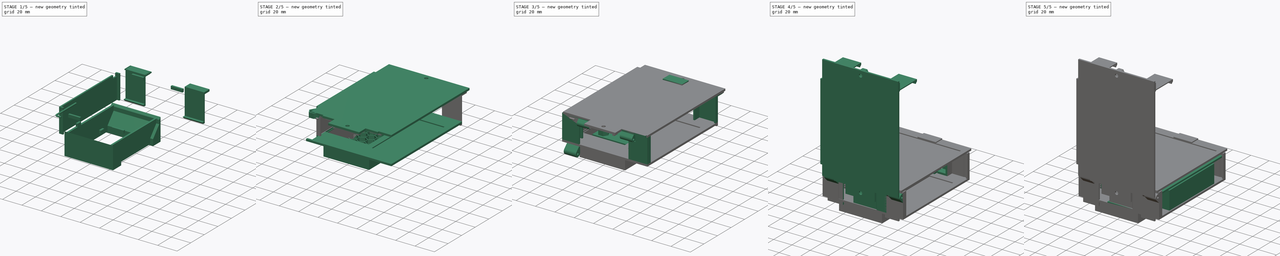
[diagram: build sequence overview — one tinted view per stage of 5, left to right]
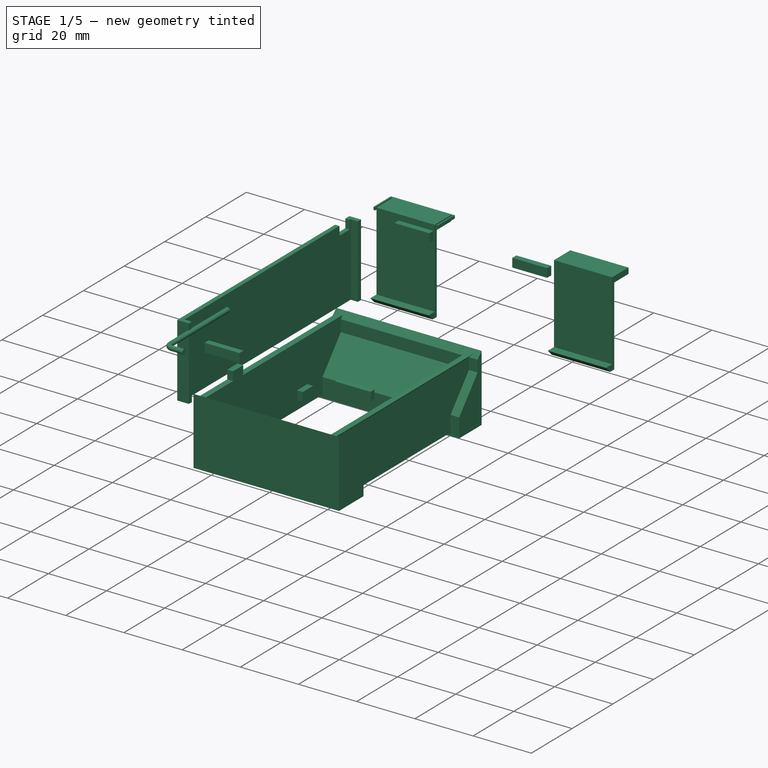
[diagram: stage 1 of 5 — iso view after this stage's code; geometry added in this stage tinted green]
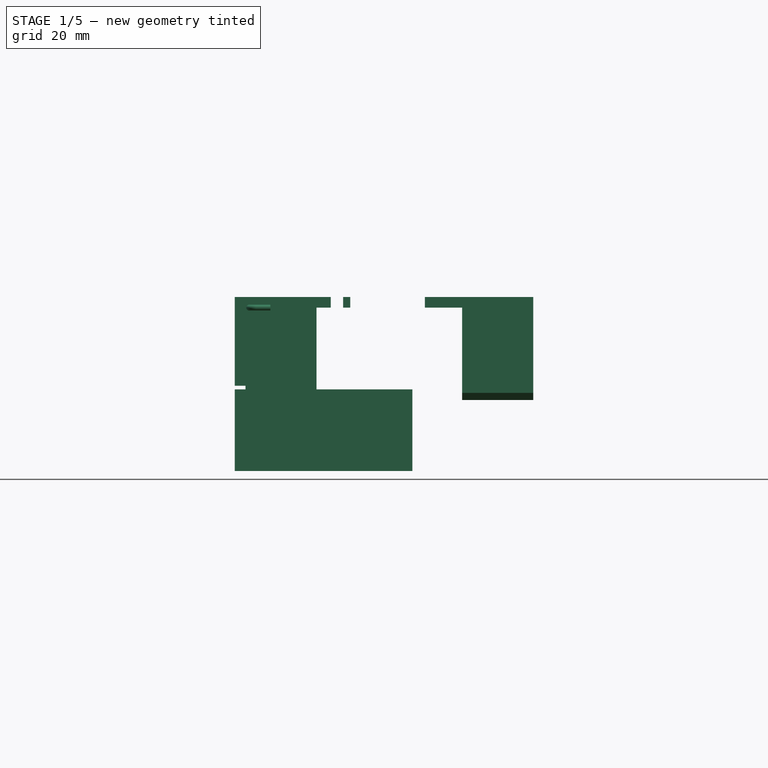
[diagram: stage 1 of 5 — front view after this stage's code; geometry added in this stage tinted green]
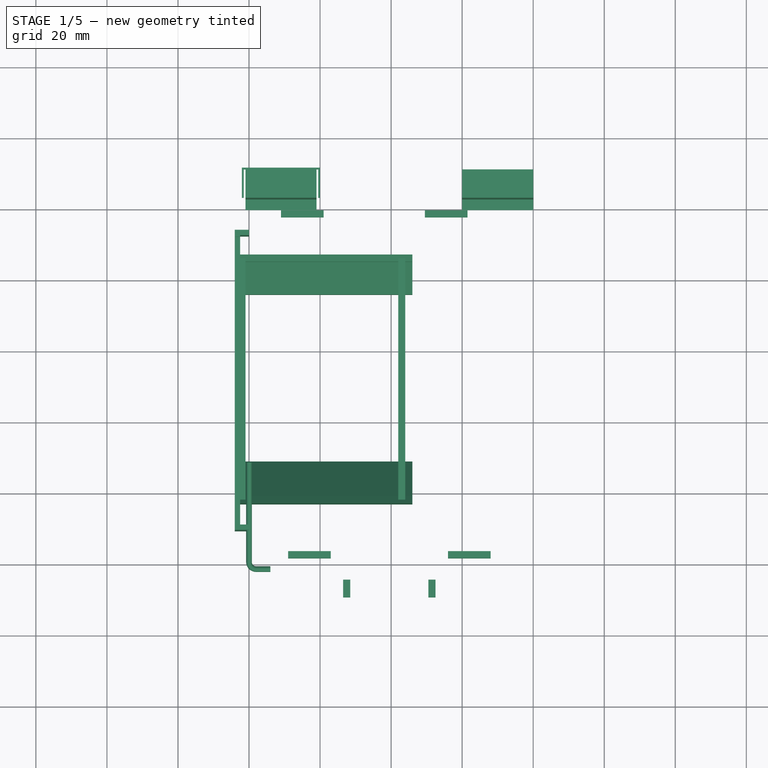
[diagram: stage 1 of 5 — top view after this stage's code; geometry added in this stage tinted green]
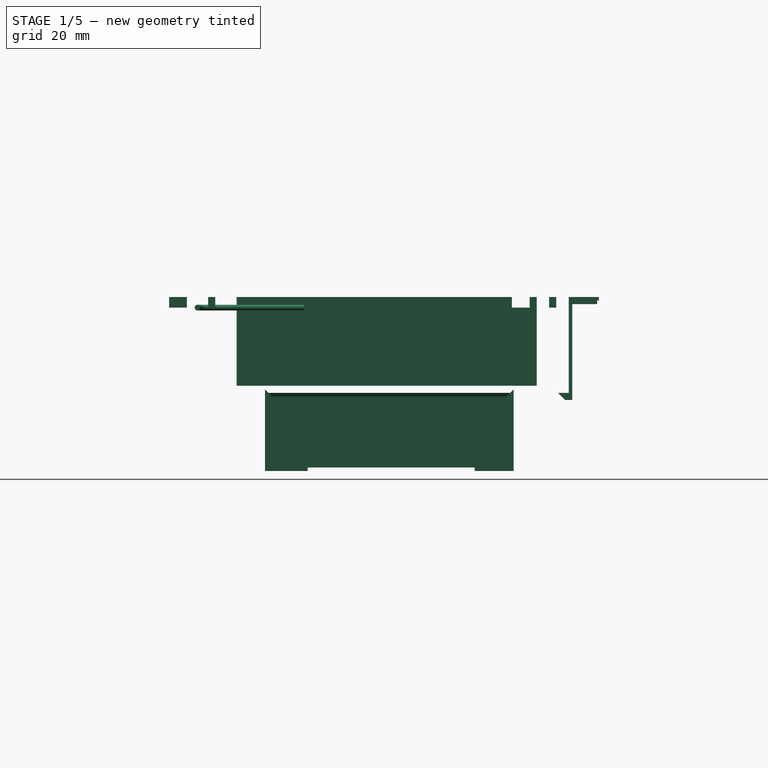
[diagram: stage 1 of 5 — right view after this stage's code; geometry added in this stage tinted green]
FCSTD DOCUMENT  (FreeCAD 0.19R24291 (Git))
Label: enclosure2
License: All rights reserved
LicenseURL: http://en.wikipedia.org/wiki/All_rights_reserved
objects: Sketcher::SketchObject×45, Part::Extrusion×41, PartDesign::FeatureBase×15, PartDesign::Body×15, Part::Compound×11, Part::Cut×8, Part::Mirroring×2, Part::MultiCommon×2, Part::Sweep×2, Part::FeaturePython×1, Spreadsheet::Sheet×1, Part::Box×1
note: 142 computed .brp shape members not serialized (recipe doc carries the construction recipe); baked Part::Feature solids carry a one-line shape summary decoded from their .brp

FEATURE [Sketcher::SketchObject] Sketch074
  FullyConstrained = true
  Placement = pos=(0,0,3) rot=(0,0,1;0rad)
  sketch-geometry (8):
    g0: LineSegment StartX=-4 StartY=93.5 StartZ=0 EndX=0 EndY=93.5 EndZ=0
    g1: LineSegment StartX=0 StartY=9 StartZ=0 EndX=-4 EndY=9 EndZ=0
    g2: LineSegment StartX=-4 StartY=9 StartZ=0 EndX=-4 EndY=93.5 EndZ=0
    g3: LineSegment StartX=0 StartY=93.5 StartZ=0 EndX=0 EndY=92 EndZ=0
    g4: LineSegment StartX=0 StartY=92 StartZ=0 EndX=-2.5 EndY=92 EndZ=0
    g5: LineSegment StartX=-2.5 StartY=92 StartZ=0 EndX=-2.5 EndY=10.5 EndZ=0
    g6: LineSegment StartX=-2.5 StartY=10.5 StartZ=0 EndX=0 EndY=10.5 EndZ=0
    g7: LineSegment StartX=0 StartY=10.5 StartZ=0 EndX=0 EndY=9 EndZ=0
  constraints (24):
    c: Coincident(g1,g2)
    c: Coincident(g2,g0)
    c: Horizontal(g0)
    c: Horizontal(g1)
    c: Vertical(g2)
    c: Vertical(g1,g0)
    c: Coincident(g0,g3)
    c: Vertical(g3)
    c: Coincident(g3,g4)
    c: Horizontal(g4)
    c: Coincident(g4,g5)
    c: Vertical(g5)
    c: Coincident(g5,g6)
    c: Horizontal(g6)
    c: Coincident(g6,g7)
    c: Coincident(g7,g1)
    c: Vertical(g7)
    c: DistanceY(g7,g7) = 1.5
    c: DistanceY(g3,g3) = 1.5
    c: DistanceX(g0,g4) = 1.5
    c: DistanceY(g5,g5) = 81.5
    c: DistanceY(g1) = 9
    c: DistanceX(g1) = -4
    c: DistanceX(g1,g1) = 4
FEATURE [Part::Extrusion] Extrude064  label="side"
  Base = -> Sketch074
  Dir = (0,0,1)
  DirMode = 2
  FaceMakerClass = Part::FaceMakerBullseye
  LengthFwd = 0
  LengthRev = 25
  Solid = true
  Symmetric = false
FEATURE [PartDesign::Body] Body009
  BaseFeature = -> Extrude086
  Group = -> [Clone009]
  Origin = -> Origin009
  Placement = pos=(40,108,-2) rot=(0,0,1;0rad)
  Tip = -> Clone009
FEATURE [Sketcher::SketchObject] Sketch096
  FullyConstrained = false
  Placement = pos=(0,18,0) rot=(-1,0,0;4.71239rad)
  sketch-geometry (10):
    g0: LineSegment StartX=-1 StartY=-45 StartZ=0 EndX=-1 EndY=-24 EndZ=0
    g1: LineSegment StartX=-1 StartY=-24 StartZ=0 EndX=-3 EndY=-24 EndZ=0
    g2: LineSegment StartX=-3 StartY=-24 StartZ=0 EndX=-2 EndY=-25 EndZ=0
    g3: LineSegment StartX=-2 StartY=-25 StartZ=0 EndX=-2 EndY=-45 EndZ=0
    g4: LineSegment StartX=-2 StartY=-45 StartZ=0 EndX=-1 EndY=-45 EndZ=0
    g5: LineSegment StartX=42 StartY=-24 StartZ=0 EndX=42 EndY=-45 EndZ=0
    g6: LineSegment StartX=42 StartY=-45 StartZ=0 EndX=43 EndY=-45 EndZ=0
    g7: LineSegment StartX=43 StartY=-45 StartZ=0 EndX=43 EndY=-25 EndZ=0
    g8: LineSegment StartX=43 StartY=-25 StartZ=0 EndX=44 EndY=-24 EndZ=0
    g9: LineSegment StartX=44 StartY=-24 StartZ=0 EndX=42 EndY=-24 EndZ=0
  constraints (30):
    c: Vertical(g0)
    c: Horizontal(g1)
    c: Coincident(g1,g2)
    c: Coincident(g2,g3)
    c: Vertical(g3)
    c: Coincident(g3,g4)
    c: Coincident(g4,g0)
    c: Horizontal(g4)
    c: Vertical(g5)
    c: Coincident(g5,g6)
    c: Horizontal(g6)
    c: Coincident(g6,g7)
    c: Vertical(g7)
    c: Coincident(g7,g8)
    c: Coincident(g8,g9)
    c: Horizontal(g9)
    c: DistanceX(g0) = -1
    c: DistanceY(g0) = -45
    c: DistanceY(g0) = -24
    c: DistanceX(g5) = 42
    c: Horizontal(g5,g0)
    c: Horizontal(g0,g5)
    c: DistanceX(g6,g6) = 1
    c: Horizontal(g9,g1)
    c: DistanceX(g1,g0) = 2
    c: DistanceX(g1,g2) = 1
    c: DistanceY(g2,g1) = 1
    c: Horizontal(g7,g2)
    c: DistanceX(g7,g8) = 1
    c: Coincident(g5,g9)
FEATURE [Part::Extrusion] Extrude087
  Base = -> Sketch096
  Dir = (0,-1,-2e-16)
  DirMode = 2
  FaceMakerClass = Part::FaceMakerBullseye
  LengthFwd = 0
  LengthRev = 68
  Solid = true
  Symmetric = false
FEATURE [Sketcher::SketchObject] Sketch099
  FullyConstrained = false
  Placement = pos=(-4,0,0) rot=(0.57735,0.57735,0.57735;2.0944rad)
  sketch-geometry (12):
    g0: LineSegment StartX=17 StartY=-23 StartZ=0 EndX=19 EndY=-25 EndZ=0
    g1: LineSegment StartX=19 StartY=-25 StartZ=0 EndX=19 EndY=-29 EndZ=0
    g2: LineSegment StartX=19 StartY=-29 StartZ=0 EndX=29 EndY=-39.5 EndZ=0
    g3: LineSegment StartX=29 StartY=-39.5 StartZ=0 EndX=29 EndY=-46 EndZ=0
    g4: LineSegment StartX=29 StartY=-46 StartZ=0 EndX=17 EndY=-46 EndZ=0
    g5: LineSegment StartX=17 StartY=-46 StartZ=0 EndX=17 EndY=-23 EndZ=0
    g6: LineSegment StartX=76 StartY=-46 StartZ=0 EndX=76 EndY=-39.5 EndZ=0
    g7: LineSegment StartX=76 StartY=-39.5 StartZ=0 EndX=85 EndY=-29 EndZ=0
    g8: LineSegment StartX=85 StartY=-29 StartZ=0 EndX=85 EndY=-25 EndZ=0
    g9: LineSegment StartX=85 StartY=-25 StartZ=0 EndX=87 EndY=-23 EndZ=0
    g10: LineSegment StartX=87 StartY=-23 StartZ=0 EndX=87 EndY=-46 EndZ=0
    g11: LineSegment StartX=87 StartY=-46 StartZ=0 EndX=76 EndY=-46 EndZ=0
  constraints (34):
    c: Coincident(g0,g1)
    c: Vertical(g1)
    c: Coincident(g1,g2)
    c: Coincident(g2,g3)
    c: Vertical(g3)
    c: Coincident(g3,g4)
    c: Horizontal(g4)
    c: Coincident(g4,g5)
    c: Coincident(g5,g0)
    c: Vertical(g5)
    c: DistanceY(g1) = -29
    c: DistanceX(g1) = 19
    c: DistanceY(g2) = -39.5
    c: DistanceX(g2) = 29
    c: DistanceY(g0) = -25
    c: DistanceX(g0,g0) = 2
    c: DistanceY(g0,g0) = 2
    c: Vertical(g6)
    c: Coincident(g6,g7)
    c: Coincident(g7,g8)
    c: Vertical(g8)
    c: Coincident(g8,g9)
    c: Coincident(g9,g10)
    c: Vertical(g10)
    c: Coincident(g10,g11)
    c: Coincident(g11,g6)
    c: Horizontal(g11)
    c: Horizontal(g6,g2)
    c: Horizontal(g7,g1)
    c: Horizontal(g0,g8)
    c: DistanceX(g7) = 85
    c: DistanceX(g6) = 76
    c: Horizontal(g9,g0)
    c: DistanceX(g8,g9) = 2
FEATURE [Part::Extrusion] Extrude090
  Base = -> Sketch099
  Dir = (1,-2e-16,2e-16)
  DirMode = 2
  FaceMakerClass = Part::FaceMakerBullseye
  LengthFwd = 50
  LengthRev = 0
  Solid = true
  Symmetric = false
FEATURE [Sketcher::SketchObject] Sketch100
  FullyConstrained = true
  Placement = pos=(-1,0,0) rot=(0.57735,0.57735,0.57735;2.0944rad)
  sketch-geometry (8):
    g0: LineSegment StartX=99.5 StartY=-24 StartZ=0 EndX=101.5 EndY=-26 EndZ=0
    g1: LineSegment StartX=101.5 StartY=-26 StartZ=0 EndX=103.5 EndY=-26 EndZ=0
    g2: LineSegment StartX=103.5 StartY=-26 StartZ=0 EndX=103.5 EndY=1 EndZ=0
    g3: LineSegment StartX=99.5 StartY=-24 StartZ=0 EndX=102.5 EndY=-24 EndZ=0
    g4: LineSegment StartX=102.5 StartY=-24 StartZ=0 EndX=102.5 EndY=3 EndZ=0
    g5: LineSegment StartX=103.5 StartY=1 StartZ=0 EndX=110.5 EndY=1 EndZ=0
    g6: LineSegment StartX=110.5 StartY=1 StartZ=0 EndX=110.5 EndY=3 EndZ=0
    g7: LineSegment StartX=110.5 StartY=3 StartZ=0 EndX=102.5 EndY=3 EndZ=0
  constraints (24):
    c: Coincident(g0,g1)
    c: Horizontal(g1)
    c: Coincident(g1,g2)
    c: Vertical(g2)
    c: Coincident(g0,g3)
    c: Horizontal(g3)
    c: Vertical(g4)
    c: Coincident(g2,g5)
    c: Horizontal(g5)
    c: Coincident(g5,g6)
    c: Vertical(g6)
    c: DistanceY(g0,g3) = 2
    c: DistanceX(g3,g3) = 3
    c: Coincident(g7,g6)
    c: Horizontal(g7)
    c: Coincident(g3,g4)
    c: DistanceX(g1,g1) = 2
    c: DistanceY(g1) = -26
    c: Coincident(g4,g7)
    c: DistanceX(g3,g1) = 1
    c: DistanceX(g4) = 102.5
    c: DistanceY(g4) = 3
    c: DistanceX(g7,g7) = 8
    c: DistanceY(g6,g6) = 2
FEATURE [Part::Extrusion] Extrude091  label="lid clip001"
  Base = -> Sketch100
  Dir = (1,-2e-16,2e-16)
  DirMode = 2
  FaceMakerClass = Part::FaceMakerBullseye
  LengthFwd = 20
  LengthRev = 0
  Solid = true
  Symmetric = false
FEATURE [PartDesign::FeatureBase] Clone010
  BaseFeature = -> Extrude091
FEATURE [PartDesign::Body] Body010  label="lid clip"
  Group = -> [Clone010]
  Origin = -> Origin010
  Placement = pos=(61,0,0) rot=(0,0,1;0rad)
  Tip = -> Clone010
FEATURE [Sketcher::SketchObject] Sketch101
  FullyConstrained = true
  Placement = pos=(0,0,3) rot=(0,0,1;0rad)
  sketch-geometry (8):
    g0: LineSegment StartX=-1.5 StartY=102.5 StartZ=0 EndX=-1.5 EndY=110.5 EndZ=0
    g1: LineSegment StartX=-1.5 StartY=110.5 StartZ=0 EndX=19.5 EndY=110.5 EndZ=0
    g2: LineSegment StartX=19.5 StartY=110.5 StartZ=0 EndX=19.5 EndY=102.5 EndZ=0
    g3: LineSegment StartX=19.5 StartY=102.5 StartZ=0 EndX=20 EndY=102.5 EndZ=0
    g4: LineSegment StartX=20 StartY=102.5 StartZ=0 EndX=20 EndY=111 EndZ=0
    g5: LineSegment StartX=20 StartY=111 StartZ=0 EndX=-2 EndY=111 EndZ=0
    g6: LineSegment StartX=-2 StartY=111 StartZ=0 EndX=-2 EndY=102.5 EndZ=0
    g7: LineSegment StartX=-2 StartY=102.5 StartZ=0 EndX=-1.5 EndY=102.5 EndZ=0
  constraints (24):
    c: Vertical(g0)
    c: Coincident(g0,g1)
    c: Horizontal(g1)
    c: Coincident(g1,g2)
    c: Vertical(g2)
    c: Coincident(g2,g3)
    c: Coincident(g3,g4)
    c: Vertical(g4)
    c: Coincident(g4,g5)
    c: Horizontal(g5)
    c: Coincident(g5,g6)
    c: Vertical(g6)
    c: Coincident(g6,g7)
    c: Coincident(g7,g0)
    c: Horizontal(g7)
    c: Horizontal(g3)
    c: Horizontal(g2,g0)
    c: DistanceY(g6) = 102.5
    c: DistanceY(g0) = 110.5
    c: DistanceX(g3,g3) = 0.5
    c: DistanceY(g0,g5) = 0.5
    c: DistanceX(g7,g7) = 0.5
    c: DistanceX(g6) = -2
    c: DistanceX(g2) = 19.5
FEATURE [Part::Extrusion] Extrude092  label="fiducial001"
  Base = -> Sketch101
  Dir = (0,0,1)
  DirMode = 2
  FaceMakerClass = Part::FaceMakerBullseye
  LengthFwd = 0
  LengthRev = 1
  Solid = true
  Symmetric = false
FEATURE [PartDesign::FeatureBase] Clone011
  BaseFeature = -> Extrude092
FEATURE [PartDesign::Body] Body011  label="fiducial"
  Group = -> [Clone011]
  Origin = -> Origin011
  Placement = pos=(61,0,0) rot=(0,0,1;0rad)
  Tip = -> Clone011
FEATURE [Part::Compound] Compound025  label="lid clip002"
  Links = -> [Extrude091,Body010]
FEATURE [PartDesign::FeatureBase] Clone012
  BaseFeature = -> Compound025
FEATURE [PartDesign::Body] Body012
  Group = -> [Clone012]
  Origin = -> Origin012
  Placement = pos=(0,3.66,1.16) rot=(0,0,1;0rad)
  Tip = -> Clone012
  expr: .Placement.Base.z = Spreadsheet.hinge_r
  expr: .Placement.Base.y = 2.5 + Spreadsheet.hinge_r
FEATURE [Sketcher::SketchObject] Sketch102
  FullyConstrained = true
  Placement = pos=(-6,0,0) rot=(-0.57735,0.57735,0.57735;4.18879rad)
  sketch-geometry (4):
    g0: LineSegment StartX=-91.5 StartY=4 StartZ=0 EndX=-86.5 EndY=4 EndZ=0
    g1: LineSegment StartX=-86.5 StartY=4 StartZ=0 EndX=-86.5 EndY=0 EndZ=0
    g2: LineSegment StartX=-86.5 StartY=0 StartZ=0 EndX=-91.5 EndY=0 EndZ=0
    g3: LineSegment StartX=-91.5 StartY=0 StartZ=0 EndX=-91.5 EndY=4 EndZ=0
  constraints (12):
    c: Coincident(g0,g1)
    c: Coincident(g1,g2)
    c: Coincident(g2,g3)
    c: Coincident(g3,g0)
    c: Horizontal(g0)
    c: Horizontal(g2)
    c: Vertical(g1)
    c: Vertical(g3)
    c: DistanceX(g0,g0) = 5
    c: DistanceY(g2,g0) = 4
    c: DistanceX(g0) = -91.5
    c: PointOnObject(g1,g-1)
FEATURE [Part::Extrusion] Extrude093
  Base = -> Sketch102
  Dir = (-1,2e-16,-2e-16)
  DirMode = 2
  FaceMakerClass = Part::FaceMakerBullseye
  LengthFwd = 0
  LengthRev = 5
  Solid = true
  Symmetric = false
FEATURE [Part::Cut] Cut015
  Base = -> Extrude064
  Tool = -> Extrude093
FEATURE [Sketcher::SketchObject] Sketch103
  FullyConstrained = true
  Placement = pos=(0,0,3) rot=(0,0,1;0rad)
  sketch-geometry (16):
    g0: LineSegment StartX=11 StartY=1 StartZ=0 EndX=23 EndY=1 EndZ=0
    g1: LineSegment StartX=23 StartY=1 StartZ=0 EndX=23 EndY=3 EndZ=0
    g2: LineSegment StartX=23 StartY=3 StartZ=0 EndX=11 EndY=3 EndZ=0
    g3: LineSegment StartX=11 StartY=3 StartZ=0 EndX=11 EndY=1 EndZ=0
    g4: LineSegment StartX=56 StartY=1 StartZ=0 EndX=68 EndY=1 EndZ=0
    g5: LineSegment StartX=68 StartY=1 StartZ=0 EndX=68 EndY=3 EndZ=0
    g6: LineSegment StartX=68 StartY=3 StartZ=0 EndX=56 EndY=3 EndZ=0
    g7: LineSegment StartX=56 StartY=3 StartZ=0 EndX=56 EndY=1 EndZ=0
    g8: LineSegment StartX=21 StartY=99 StartZ=0 EndX=9 EndY=99 EndZ=0
    g9: LineSegment StartX=9 StartY=99 StartZ=0 EndX=9 EndY=97 EndZ=0
    g10: LineSegment StartX=9 StartY=97 StartZ=0 EndX=21 EndY=97 EndZ=0
    g11: LineSegment StartX=21 StartY=97 StartZ=0 EndX=21 EndY=99 EndZ=0
    g12: LineSegment StartX=49.5 StartY=99 StartZ=0 EndX=61.5 EndY=99 EndZ=0
    g13: LineSegment StartX=61.5 StartY=99 StartZ=0 EndX=61.5 EndY=97 EndZ=0
    g14: LineSegment StartX=61.5 StartY=97 StartZ=0 EndX=49.5 EndY=97 EndZ=0
    g15: LineSegment StartX=49.5 StartY=97 StartZ=0 EndX=49.5 EndY=99 EndZ=0
  constraints (48):
    c: Coincident(g0,g1)
    c: Coincident(g1,g2)
    c: Coincident(g2,g3)
    c: Coincident(g3,g0)
    c: Horizontal(g0)
    c: Horizontal(g2)
    c: Vertical(g1)
    c: Vertical(g3)
    c: Coincident(g4,g5)
    c: Coincident(g5,g6)
    c: Coincident(g6,g7)
    c: Coincident(g7,g4)
    c: Horizontal(g4)
    c: Horizontal(g6)
    c: Vertical(g5)
    c: Vertical(g7)
    c: Coincident(g8,g9)
    c: Coincident(g9,g10)
    c: Coincident(g10,g11)
    c: Coincident(g11,g8)
    c: Horizontal(g8)
    c: Horizontal(g10)
    c: Vertical(g9)
    c: Vertical(g11)
    c: Coincident(g12,g13)
    c: Coincident(g13,g14)
    c: Coincident(g14,g15)
    c: Coincident(g15,g12)
    c: Horizontal(g12)
    c: Horizontal(g14)
    c: Vertical(g13)
    c: Vertical(g15)
    c: DistanceX(g2,g2) = 12
    c: DistanceY(g3,g3) = 2
    c: Horizontal(g1,g6)
    c: Horizontal(g4,g0)
    c: DistanceX(g4,g4) = 12
    c: DistanceX(g6) = 56
    c: DistanceY(g0) = 1
    c: DistanceX(g2) = 11
    c: DistanceX(g8) = 9
    c: DistanceX(g8,g8) = 12
    c: DistanceY(g9,g9) = 2
    c: Horizontal(g8,g12)
    c: Horizontal(g14,g10)
    c: DistanceX(g12) = 61.5
    c: DistanceX(g12,g12) = 12
    c: DistanceY(g8) = 99
FEATURE [Part::Extrusion] Extrude094
  Base = -> Sketch103
  Dir = (0,0,1)
  DirMode = 2
  FaceMakerClass = Part::FaceMakerBullseye
  LengthFwd = 0
  LengthRev = 3
  Solid = true
  Symmetric = false
FEATURE [Sketcher::SketchObject] Sketch104
  FullyConstrained = true
  Placement = pos=(0,0,3) rot=(-1,0,0;3.14159rad)
  sketch-geometry (8):
    g0: LineSegment StartX=26.5 StartY=5 StartZ=0 EndX=28.5 EndY=5 EndZ=0
    g1: LineSegment StartX=28.5 StartY=5 StartZ=0 EndX=28.5 EndY=10 EndZ=0
    g2: LineSegment StartX=28.5 StartY=10 StartZ=0 EndX=26.5 EndY=10 EndZ=0
    g3: LineSegment StartX=26.5 StartY=10 StartZ=0 EndX=26.5 EndY=5 EndZ=0
    g4: LineSegment StartX=50.5 StartY=5 StartZ=0 EndX=52.5 EndY=5 EndZ=0
    g5: LineSegment StartX=52.5 StartY=5 StartZ=0 EndX=52.5 EndY=10 EndZ=0
    g6: LineSegment StartX=52.5 StartY=10 StartZ=0 EndX=50.5 EndY=10 EndZ=0
    g7: LineSegment StartX=50.5 StartY=10 StartZ=0 EndX=50.5 EndY=5 EndZ=0
  constraints (24):
    c: Coincident(g0,g1)
    c: Coincident(g1,g2)
    c: Coincident(g2,g3)
    c: Coincident(g3,g0)
    c: Horizontal(g0)
    c: Horizontal(g2)
    c: Vertical(g1)
    c: Vertical(g3)
    c: DistanceX(g0) = 26.5
    c: DistanceY(g3,g3) = 5
    c: DistanceX(g0,g0) = 2
    c: DistanceY(g0) = 5
    c: Coincident(g4,g5)
    c: Coincident(g5,g6)
    c: Coincident(g6,g7)
    c: Coincident(g7,g4)
    c: Horizontal(g4)
    c: Horizontal(g6)
    c: Vertical(g5)
    c: Vertical(g7)
    c: Equal(g3,g7) = 5
    c: Equal(g0,g4) = 2
    c: DistanceX(g4) = 52.5
    c: Horizontal(g0,g4)
FEATURE [Part::Extrusion] Extrude095
  Base = -> Sketch104
  Dir = (0,1e-16,-1)
  DirMode = 2
  FaceMakerClass = Part::FaceMakerBullseye
  LengthFwd = 3
  LengthRev = 0
  Solid = true
  Symmetric = false
FEATURE [Sketcher::SketchObject] Sketch105  label="profile001"
  FullyConstrained = true
  Placement = pos=(0,0,0) rot=(-1,0,0;4.71239rad)
  sketch-geometry (1):
    g0: Circle CenterX=0 CenterY=0 CenterZ=0 NormalX=0 NormalY=0 NormalZ=1 AngleXU=0 Radius=0.8
  constraints (2):
    c: Coincident(g0,g-1)
    c: Radius(g0) = 0.8
FEATURE [Sketcher::SketchObject] Sketch106  label="path003"
  FullyConstrained = false
  sketch-geometry (3):
    g0: LineSegment StartX=0 StartY=2e-16 StartZ=0 EndX=0 EndY=28 EndZ=0
    g1: ArcOfCircle CenterX=2 CenterY=0 CenterZ=0 NormalX=0 NormalY=0 NormalZ=1 AngleXU=0 Radius=2 StartAngle=3.14159 EndAngle=4.71239
    g2: LineSegment StartX=2 StartY=-2 StartZ=0 EndX=6 EndY=-2 EndZ=0
  constraints (6):
    c: Coincident(g0,g-1)
    c: PointOnObject(g0,g-2)
    c: PointOnObject(g1,g-1)
    c: Coincident(g1,g0)
    c: Coincident(g2,g1)
    c: Horizontal(g2)
FEATURE [Part::Sweep] Sweep001  label="wire"
  Frenet = false
  Sections = -> [Sketch105]
  Solid = true
  Spine = -> Sketch106
  Transition = 1
FEATURE [PartDesign::FeatureBase] Clone013
  BaseFeature = -> Sweep001
FEATURE [PartDesign::Body] Body013  label="wire002"
  Group = -> [Clone013]
  Origin = -> Origin013
  Placement = pos=(23,-3.7,-1.2) rot=(0.689152,-0.689152,0.223919;2.70102rad)
  Tip = -> Clone013
FEATURE [PartDesign::FeatureBase] Clone014
  BaseFeature = -> Sweep001
FEATURE [PartDesign::Body] Body014  label="wire001"
  Group = -> [Clone014]
  Origin = -> Origin014
  Placement = pos=(56,-3.7,-1.2) rot=(0.295242,0.295242,0.908661;4.61675rad)
  Tip = -> Clone014
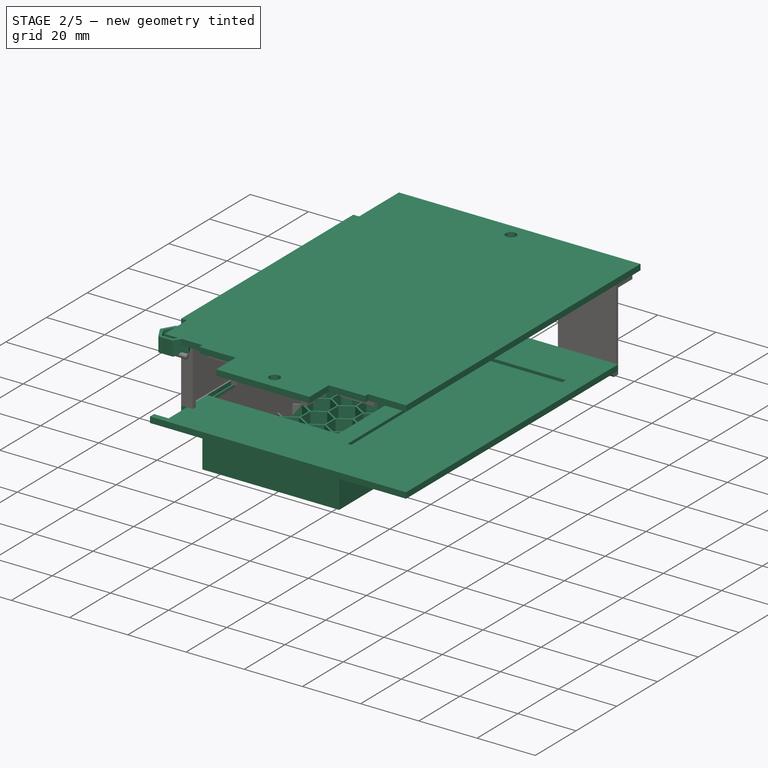
[diagram: stage 2 of 5 — iso view after this stage's code; geometry added in this stage tinted green]
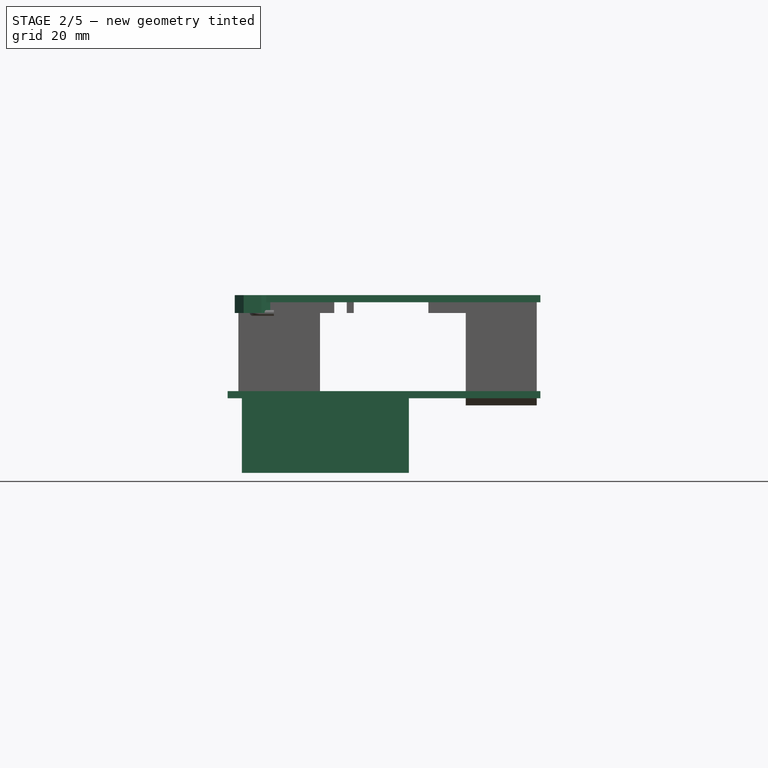
[diagram: stage 2 of 5 — front view after this stage's code; geometry added in this stage tinted green]
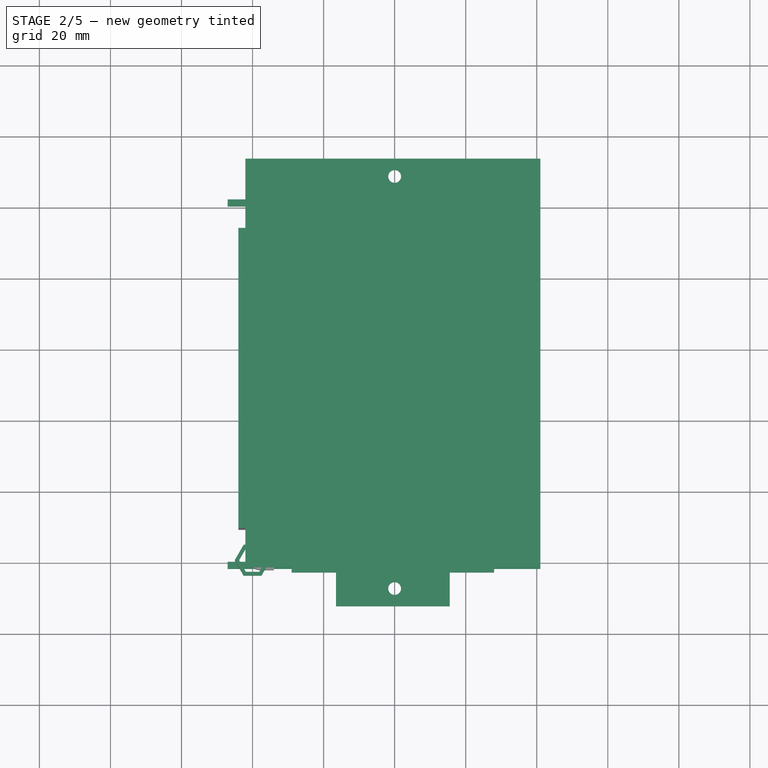
[diagram: stage 2 of 5 — top view after this stage's code; geometry added in this stage tinted green]
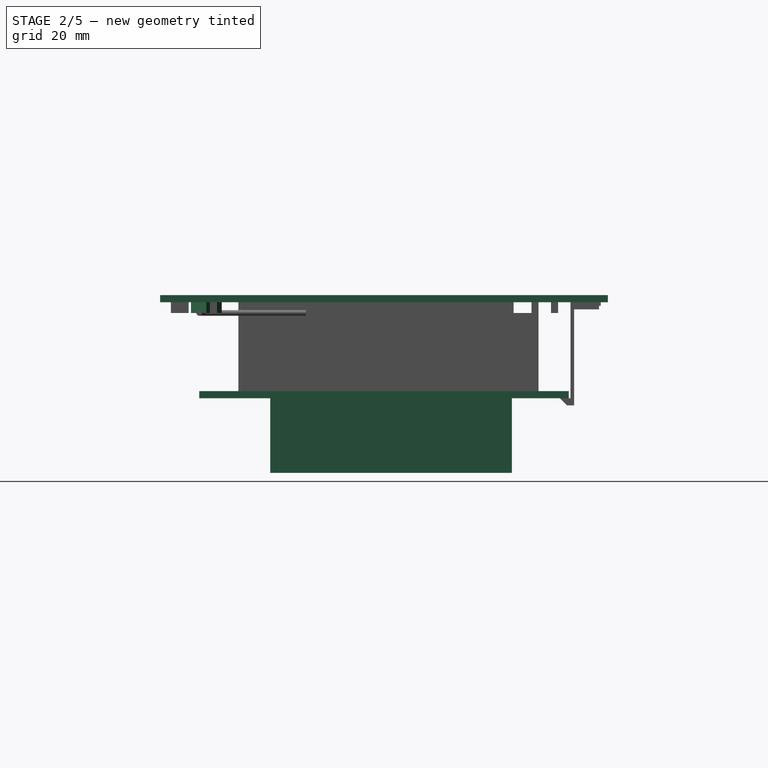
[diagram: stage 2 of 5 — right view after this stage's code; geometry added in this stage tinted green]
FEATURE [Sketcher::SketchObject] Sketch
  FullyConstrained = true
  Placement = pos=(0,0,-22) rot=(1,0,0;3.14159rad)
  sketch-geometry (16):
    g0: LineSegment StartX=-2 StartY=-19 StartZ=0 EndX=43 EndY=-19 EndZ=0
    g1: LineSegment StartX=43 StartY=-19 StartZ=0 EndX=43 EndY=-85 EndZ=0
    g2: LineSegment StartX=43 StartY=-85 StartZ=0 EndX=-2 EndY=-85 EndZ=0
    g3: LineSegment StartX=-2 StartY=-85 StartZ=0 EndX=-2 EndY=-19 EndZ=0
    g4: LineSegment StartX=-7 StartY=2 StartZ=0 EndX=81 EndY=2 EndZ=0
    g5: LineSegment StartX=81 StartY=2 StartZ=0 EndX=81 EndY=-102 EndZ=0
    g6: LineSegment StartX=81 StartY=-102 StartZ=0 EndX=-7 EndY=-102 EndZ=0
    g7: LineSegment StartX=-4 StartY=-93.5 StartZ=0 EndX=-4 EndY=-9 EndZ=0
    g8: LineSegment StartX=-2 StartY=0 StartZ=0 EndX=-2 EndY=-9 EndZ=0
    g9: LineSegment StartX=-2 StartY=-9 StartZ=0 EndX=-4 EndY=-9 EndZ=0
    g10: LineSegment StartX=-4 StartY=-93.5 StartZ=0 EndX=-2 EndY=-93.5 EndZ=0
    g11: LineSegment StartX=-2 StartY=-93.5 StartZ=0 EndX=-2 EndY=-100 EndZ=0
    g12: LineSegment StartX=-7 StartY=2 StartZ=0 EndX=-7 EndY=0 EndZ=0
    g13: LineSegment StartX=-7 StartY=0 StartZ=0 EndX=-2 EndY=0 EndZ=0
    g14: LineSegment StartX=-2 StartY=-100 StartZ=0 EndX=-7 EndY=-100 EndZ=0
    g15: LineSegment StartX=-7 StartY=-100 StartZ=0 EndX=-7 EndY=-102 EndZ=0
  constraints (48):
    c: Coincident(g0,g1)
    c: Coincident(g1,g2)
    c: Coincident(g2,g3)
    c: Coincident(g3,g0)
    c: Horizontal(g0)
    c: Horizontal(g2)
    c: Vertical(g1)
    c: Vertical(g3)
    c: DistanceX(g0) = -2
    c: DistanceY(g0) = -19
    c: Coincident(g4,g5)
    c: Coincident(g5,g6)
    c: Horizontal(g4)
    c: Horizontal(g6)
    c: Vertical(g5)
    c: Vertical(g7)
    c: DistanceY(g4) = 2
    c: DistanceX(g4) = 81
    c: DistanceY(g6) = -102
    c: Vertical(g8)
    c: Coincident(g8,g9)
    c: Coincident(g9,g7)
    c: Horizontal(g9)
    c: Coincident(g7,g10)
    c: Horizontal(g10)
    c: Coincident(g10,g11)
    c: Vertical(g11)
    c: Vertical(g10,g8)
    c: DistanceX(g0) = 43
    c: DistanceY(g2) = -85
    c: DistanceY(g7) = -9
    c: Coincident(g4,g12)
    c: PointOnObject(g12,g-1)
    c: Vertical(g12)
    c: Coincident(g12,g13)
    c: Coincident(g13,g8)
    c: Horizontal(g13)
    c: DistanceY(g7) = -93.5
    c: Coincident(g11,g14)
    c: Horizontal(g14)
    c: Coincident(g14,g15)
    c: Coincident(g15,g6)
    c: Vertical(g15)
    c: Vertical(g14,g12)
    c: DistanceX(g13,g13) = 5
    c: DistanceY(g15,g15) = 2
    c: DistanceX(g8) = -2
    c: DistanceX(g7) = -4
FEATURE [Part::Extrusion] Extrude
  Base = -> Sketch
  Dir = (0,0,-1)
  DirMode = 2
  FaceMakerClass = Part::FaceMakerBullseye
  LengthFwd = 2
  LengthRev = 0
  Solid = true
  Symmetric = false
FEATURE [PartDesign::Body] Body007  label="hinge004"
  BaseFeature = -> Extrude078
  Group = -> [Clone007]
  Origin = -> Origin007
  Tip = -> Clone007
FEATURE [Sketcher::SketchObject] Sketch087
  FullyConstrained = true
  Placement = pos=(0,0,3) rot=(0,0,1;0rad)
  expr: Constraints[34] = Spreadsheet.r1_4_40
  sketch-geometry (18):
    g0: LineSegment StartX=81 StartY=-2 StartZ=0 EndX=81 EndY=113 EndZ=0
    g1: LineSegment StartX=-2 StartY=113 StartZ=0 EndX=-2 EndY=93.5 EndZ=0
    g2: LineSegment StartX=-2 StartY=93.5 StartZ=0 EndX=-4 EndY=93.5 EndZ=0
    g3: LineSegment StartX=-4 StartY=93.5 StartZ=0 EndX=-4 EndY=9 EndZ=0
    g4: LineSegment StartX=-4 StartY=9 StartZ=0 EndX=-2 EndY=9 EndZ=0
    g5: LineSegment StartX=-2 StartY=9 StartZ=0 EndX=-2 EndY=-2 EndZ=0
    g6: LineSegment StartX=-2 StartY=-2 StartZ=0 EndX=11 EndY=-2 EndZ=0
    g7: LineSegment StartX=11 StartY=-2 StartZ=0 EndX=11 EndY=-3.5 EndZ=0
    g8: LineSegment StartX=23.5 StartY=-13 StartZ=0 EndX=55.5 EndY=-13 EndZ=0
    g9: LineSegment StartX=68 StartY=-3.5 StartZ=0 EndX=68 EndY=-2 EndZ=0
    g10: LineSegment StartX=68 StartY=-2 StartZ=0 EndX=81 EndY=-2 EndZ=0
    g11: LineSegment StartX=11 StartY=-3.5 StartZ=0 EndX=23.5 EndY=-3.5 EndZ=0
    g12: LineSegment StartX=55.5 StartY=-3.5 StartZ=0 EndX=68 EndY=-3.5 EndZ=0
    g13: LineSegment StartX=-2 StartY=113 StartZ=0 EndX=81 EndY=113 EndZ=0
    g14: LineSegment StartX=23.5 StartY=-3.5 StartZ=0 EndX=23.5 EndY=-13 EndZ=0
    g15: LineSegment StartX=55.5 StartY=-13 StartZ=0 EndX=55.5 EndY=-3.5 EndZ=0
    g16: Circle CenterX=40 CenterY=108 CenterZ=0 NormalX=0 NormalY=0 NormalZ=1 AngleXU=0 Radius=1.8
    g17: Circle CenterX=40 CenterY=-8 CenterZ=0 NormalX=0 NormalY=0 NormalZ=1 AngleXU=0 Radius=1.8
  constraints (54):
    c: Vertical(g0)
    c: Vertical(g1)
    c: Coincident(g1,g2)
    c: Horizontal(g2)
    c: Coincident(g2,g3)
    c: Vertical(g3)
    c: Coincident(g3,g4)
    c: Horizontal(g4)
    c: Coincident(g4,g5)
    c: Vertical(g5)
    c: DistanceX(g2) = -4
    c: Coincident(g5,g6)
    c: Horizontal(g6)
    c: Coincident(g6,g7)
    c: Vertical(g7)
    c: Horizontal(g8)
    c: Vertical(g9)
    c: Coincident(g9,g10)
    c: Coincident(g10,g0)
    c: Horizontal(g10)
    c: Horizontal(g9,g6)
    c: DistanceX(g6) = 11
    c: DistanceX(g9) = 68
    c: DistanceX(g0) = 81
    c: Vertical(g1,g4)
    c: Horizontal(g9,g7)
    c: Coincident(g7,g11)
    c: Horizontal(g11)
    c: Coincident(g12,g9)
    c: Horizontal(g12)
    c: Coincident(g13,g0)
    c: Horizontal(g13)
    c: Coincident(g14,g11)
    c: Coincident(g15,g12)
    c: Radius(g16) = 1.8
    c: Equal(g16,g17) = 1.8
    c: Coincident(g8,g15)
    c: Coincident(g8,g14)
    c: DistanceY(g1) = 93.5
    c: DistanceY(g1) = 113
    c: DistanceX(g16) = 40
    c: DistanceY(g16) = 108
    c: Vertical(g17,g16)
    c: DistanceY(g17) = -8
    c: DistanceY(g8) = -13
    c: Coincident(g13,g1)
    c: DistanceY(g4) = 9
    c: DistanceY(g5) = -2
    c: DistanceY(g7) = -3.5
    c: DistanceX(g11) = 23.5
    c: DistanceX(g12) = 55.5
    c: DistanceX(g1) = -2
    c: Vertical(g14)
    c: Vertical(g15)
FEATURE [Part::Extrusion] Extrude079
  Base = -> Sketch087
  Dir = (0,0,1)
  DirMode = 2
  FaceMakerClass = Part::FaceMakerBullseye
  LengthFwd = 2
  LengthRev = 0
  Solid = true
  Symmetric = false
FEATURE [Sketcher::SketchObject] Sketch089  label="profile"
  FullyConstrained = true
  Placement = pos=(0,34,0) rot=(1,0,0;1.5708rad)
  sketch-geometry (6):
    g0: LineSegment StartX=-1.5 StartY=-23 StartZ=0 EndX=-1 EndY=-23 EndZ=0
    g1: LineSegment StartX=-1 StartY=-23 StartZ=0 EndX=-1 EndY=-45 EndZ=0
    g2: LineSegment StartX=-1 StartY=-45 StartZ=0 EndX=-3 EndY=-45 EndZ=0
    g3: LineSegment StartX=-3 StartY=-45 StartZ=0 EndX=-3 EndY=-24 EndZ=0
    g4: LineSegment StartX=-3 StartY=-24 StartZ=0 EndX=-1.5 EndY=-24 EndZ=0
    g5: LineSegment StartX=-1.5 StartY=-24 StartZ=0 EndX=-1.5 EndY=-23 EndZ=0
  constraints (18):
    c: Horizontal(g0)
    c: Coincident(g0,g1)
    c: Vertical(g1)
    c: Coincident(g1,g2)
    c: Horizontal(g2)
    c: Coincident(g2,g3)
    c: Vertical(g3)
    c: Coincident(g3,g4)
    c: Horizontal(g4)
    c: Coincident(g4,g5)
    c: Coincident(g5,g0)
    c: Vertical(g5)
    c: DistanceX(g0) = -1
    c: DistanceX(g0,g0) = 0.5
    c: DistanceY(g5,g5) = 1
    c: DistanceX(g2,g2) = 2
    c: DistanceY(g3,g3) = 21
    c: DistanceY(g0) = -23
FEATURE [Sketcher::SketchObject] Sketch090  label="path"
  FullyConstrained = false
  Placement = pos=(0,0,-28) rot=(1,0,0;3.14159rad)
  sketch-geometry (4):
    g0: LineSegment StartX=-1 StartY=-20 StartZ=0 EndX=42 EndY=-20 EndZ=0
    g1: LineSegment StartX=42 StartY=-20 StartZ=0 EndX=42 EndY=-84 EndZ=0
    g2: LineSegment StartX=42 StartY=-84 StartZ=0 EndX=-1 EndY=-84 EndZ=0
    g3: LineSegment StartX=-1 StartY=-84 StartZ=0 EndX=-1 EndY=-20 EndZ=0
  constraints (8):
    c: Coincident(g0,g1)
    c: Coincident(g1,g2)
    c: Coincident(g2,g3)
    c: Coincident(g3,g0)
    c: Horizontal(g0)
    c: Horizontal(g2)
    c: Vertical(g1)
    c: Vertical(g3)
FEATURE [Part::Sweep] Sweep  label="shroud"
  Frenet = false
  Sections = -> [Sketch089]
  Solid = true
  Spine = -> Sketch090
  Transition = 1
FEATURE [Sketcher::SketchObject] Sketch092  label="path002"
  FullyConstrained = true
  Placement = pos=(0,0,3) rot=(1,0,0;3.14159rad)
  sketch-geometry (4):
    g0: LineSegment StartX=5 StartY=-10 StartZ=0 EndX=71 EndY=-10 EndZ=0
    g1: LineSegment StartX=71 StartY=-10 StartZ=0 EndX=71 EndY=-92 EndZ=0
    g2: LineSegment StartX=71 StartY=-92 StartZ=0 EndX=5 EndY=-92 EndZ=0
    g3: LineSegment StartX=5 StartY=-92 StartZ=0 EndX=5 EndY=-10 EndZ=0
  constraints (12):
    c: Coincident(g0,g1)
    c: Coincident(g1,g2)
    c: Coincident(g2,g3)
    c: Coincident(g3,g0)
    c: Horizontal(g0)
    c: Horizontal(g2)
    c: Vertical(g1)
    c: Vertical(g3)
    c: DistanceX(g1) = 71
    c: DistanceY(g1) = -92
    c: DistanceY(g0) = -10
    c: DistanceX(g2) = 5
FEATURE [Part::Extrusion] Extrude080
  Base = -> Sketch092
  Dir = (0,-1e-16,-1)
  DirMode = 2
  FaceMakerClass = Part::FaceMakerBullseye
  LengthFwd = 1
  LengthRev = 1
  Solid = true
  Symmetric = false
FEATURE [Sketcher::SketchObject] Sketch093
  FullyConstrained = true
  Placement = pos=(0,0,-22) rot=(0,0,1;0rad)
  sketch-geometry (4):
    g0: LineSegment StartX=75 StartY=85 StartZ=0 EndX=49 EndY=85 EndZ=0
    g1: LineSegment StartX=49 StartY=85 StartZ=0 EndX=49 EndY=15 EndZ=0
    g2: LineSegment StartX=49 StartY=15 StartZ=0 EndX=75 EndY=15 EndZ=0
    g3: LineSegment StartX=75 StartY=15 StartZ=0 EndX=75 EndY=85 EndZ=0
  constraints (12):
    c: Coincident(g0,g1)
    c: Coincident(g1,g2)
    c: Coincident(g2,g3)
    c: Coincident(g3,g0)
    c: Horizontal(g0)
    c: Horizontal(g2)
    c: Vertical(g1)
    c: Vertical(g3)
    c: DistanceX(g2) = 75
    c: DistanceX(g1) = 49
    c: DistanceY(g1) = 15
    c: DistanceY(g0) = 85
FEATURE [Part::Extrusion] Extrude081
  Base = -> Sketch093
  Dir = (0,0,1)
  DirMode = 2
  FaceMakerClass = Part::FaceMakerBullseye
  LengthFwd = 1
  LengthRev = 1
  Solid = true
  Symmetric = false
FEATURE [Part::Cut] Cut012
  Base = -> Extrude
  Tool = -> Extrude081
FEATURE [Part::Cut] Cut013
  Base = -> Extrude079
  Tool = -> Extrude080
FEATURE [Sketcher::SketchObject] gridsketch002
  FullyConstrained = false
  Placement = pos=(-3,18,-45) rot=(0,0,1;0rad)
  sketch-geometry (364):
    g0: LineSegment StartX=3e-16 StartY=4.78349 StartZ=0 EndX=-4.08013 EndY=2.28349 EndZ=0
    g1: LineSegment StartX=-4.08013 StartY=2.28349 StartZ=0 EndX=-4.08013 EndY=-2.28349 EndZ=0
    g2: LineSegment StartX=-4.08013 StartY=-2.28349 StartZ=0 EndX=-9e-16 EndY=-4.78349 EndZ=0
    g3: LineSegment StartX=-9e-16 StartY=-4.78349 StartZ=0 EndX=4.08013 EndY=-2.28349 EndZ=0
    g4: LineSegment StartX=4.08013 StartY=-2.28349 StartZ=0 EndX=4.08013 EndY=2.28349 EndZ=0
    g5: LineSegment StartX=4.08013 StartY=2.28349 StartZ=0 EndX=0 EndY=4.78349 EndZ=0
    g6: LineSegment StartX=8.66025 StartY=4.78349 StartZ=0 EndX=4.58013 EndY=2.28349 EndZ=0
    g7: LineSegment StartX=4.58013 StartY=2.28349 StartZ=0 EndX=4.58013 EndY=-2.28349 EndZ=0
    g8: LineSegment StartX=4.58013 StartY=-2.28349 StartZ=0 EndX=8.66025 EndY=-4.78349 EndZ=0
    g9: LineSegment StartX=8.66025 StartY=-4.78349 StartZ=0 EndX=12.7404 EndY=-2.28349 EndZ=0
    g10: LineSegment StartX=12.7404 StartY=-2.28349 StartZ=0 EndX=12.7404 EndY=2.28349 EndZ=0
    g11: LineSegment StartX=12.7404 StartY=2.28349 StartZ=0 EndX=8.66025 EndY=4.78349 EndZ=0
    g12: LineSegment StartX=17.3205 StartY=4.78349 StartZ=0 EndX=13.2404 EndY=2.28349 EndZ=0
    g13: LineSegment StartX=13.2404 StartY=2.28349 StartZ=0 EndX=13.2404 EndY=-2.28349 EndZ=0
    g14: LineSegment StartX=13.2404 StartY=-2.28349 StartZ=0 EndX=17.3205 EndY=-4.78349 EndZ=0
    g15: LineSegment StartX=17.3205 StartY=-4.78349 StartZ=0 EndX=21.4006 EndY=-2.28349 EndZ=0
    g16: LineSegment StartX=21.4006 StartY=-2.28349 StartZ=0 EndX=21.4006 EndY=2.28349 EndZ=0
    g17: LineSegment StartX=21.4006 StartY=2.28349 StartZ=0 EndX=17.3205 EndY=4.78349 EndZ=0
    g18: LineSegment StartX=25.9808 StartY=4.78349 StartZ=0 EndX=21.9006 EndY=2.28349 EndZ=0
    g19: LineSegment StartX=21.9006 StartY=2.28349 StartZ=0 EndX=21.9006 EndY=-2.28349 EndZ=0
    g20: LineSegment StartX=21.9006 StartY=-2.28349 StartZ=0 EndX=25.9808 EndY=-4.78349 EndZ=0
    g21: LineSegment StartX=25.9808 StartY=-4.78349 StartZ=0 EndX=30.0609 EndY=-2.28349 EndZ=0
    g22: LineSegment StartX=30.0609 StartY=-2.28349 StartZ=0 EndX=30.0609 EndY=2.28349 EndZ=0
    g23: LineSegment StartX=30.0609 StartY=2.28349 StartZ=0 EndX=25.9808 EndY=4.78349 EndZ=0
    g24: LineSegment StartX=34.641 StartY=4.78349 StartZ=0 EndX=30.5609 EndY=2.28349 EndZ=0
    g25: LineSegment StartX=30.5609 StartY=2.28349 StartZ=0 EndX=30.5609 EndY=-2.28349 EndZ=0
    g26: LineSegment StartX=30.5609 StartY=-2.28349 StartZ=0 EndX=34.641 EndY=-4.78349 EndZ=0
    g27: LineSegment StartX=34.641 StartY=-4.78349 StartZ=0 EndX=38.7211 EndY=-2.28349 EndZ=0
    g28: LineSegment StartX=38.7211 StartY=-2.28349 StartZ=0 EndX=38.7211 EndY=2.28349 EndZ=0
    g29: LineSegment StartX=38.7211 StartY=2.28349 StartZ=0 EndX=34.641 EndY=4.78349 EndZ=0
    g30: LineSegment StartX=43.3013 StartY=4.78349 StartZ=0 EndX=39.2211 EndY=2.28349 EndZ=0
    g31: LineSegment StartX=39.2211 StartY=2.28349 StartZ=0 EndX=39.2211 EndY=-2.28349 EndZ=0
    g32: LineSegment StartX=39.2211 StartY=-2.28349 StartZ=0 EndX=43.3013 EndY=-4.78349 EndZ=0
    g33: LineSegment StartX=43.3013 StartY=-4.78349 StartZ=0 EndX=47.3814 EndY=-2.28349 EndZ=0
    g34: LineSegment StartX=47.3814 StartY=-2.28349 StartZ=0 EndX=47.3814 EndY=2.28349 EndZ=0
    g35: LineSegment StartX=47.3814 StartY=2.28349 StartZ=0 EndX=43.3013 EndY=4.78349 EndZ=0
    g36: LineSegment StartX=4.33013 StartY=12.3717 StartZ=0 EndX=0.25 EndY=9.87168 EndZ=0
    g37: LineSegment StartX=0.25 StartY=9.87168 StartZ=0 EndX=0.25 EndY=5.3047 EndZ=0
    g38: LineSegment StartX=0.25 StartY=5.3047 StartZ=0 EndX=4.33013 EndY=2.8047 EndZ=0
    g39: LineSegment StartX=4.33013 StartY=2.8047 StartZ=0 EndX=8.41025 EndY=5.3047 EndZ=0
    g40: LineSegment StartX=8.41025 StartY=5.3047 StartZ=0 EndX=8.41025 EndY=9.87168 EndZ=0
    g41: LineSegment StartX=8.41025 StartY=9.87168 StartZ=0 EndX=4.33013 EndY=12.3717 EndZ=0
    g42: LineSegment StartX=12.9904 StartY=12.3717 StartZ=0 EndX=8.91025 EndY=9.87168 EndZ=0
    g43: LineSegment StartX=8.91025 StartY=9.87168 StartZ=0 EndX=8.91025 EndY=5.3047 EndZ=0
    g44: LineSegment StartX=8.91025 StartY=5.3047 StartZ=0 EndX=12.9904 EndY=2.8047 EndZ=0
    g45: LineSegment StartX=12.9904 StartY=2.8047 StartZ=0 EndX=17.0705 EndY=5.3047 EndZ=0
    g46: LineSegment StartX=17.0705 StartY=5.3047 StartZ=0 EndX=17.0705 EndY=9.87168 EndZ=0
    g47: LineSegment StartX=17.0705 StartY=9.87168 StartZ=0 EndX=12.9904 EndY=12.3717 EndZ=0
    g48: LineSegment StartX=21.6506 StartY=12.3717 StartZ=0 EndX=17.5705 EndY=9.87168 EndZ=0
    g49: LineSegment StartX=17.5705 StartY=9.87168 StartZ=0 EndX=17.5705 EndY=5.3047 EndZ=0
    g50: LineSegment StartX=17.5705 StartY=5.3047 StartZ=0 EndX=21.6506 EndY=2.8047 EndZ=0
    g51: LineSegment StartX=21.6506 StartY=2.8047 StartZ=0 EndX=25.7308 EndY=5.3047 EndZ=0
    g52: LineSegment StartX=25.7308 StartY=5.3047 StartZ=0 EndX=25.7308 EndY=9.87168 EndZ=0
    g53: LineSegment StartX=25.7308 StartY=9.87168 StartZ=0 EndX=21.6506 EndY=12.3717 EndZ=0
    g54: LineSegment StartX=30.3109 StartY=12.3717 StartZ=0 EndX=26.2308 EndY=9.87168 EndZ=0
    g55: LineSegment StartX=26.2308 StartY=9.87168 StartZ=0 EndX=26.2308 EndY=5.3047 EndZ=0
    g56: LineSegment StartX=26.2308 StartY=5.3047 StartZ=0 EndX=30.3109 EndY=2.8047 EndZ=0
    g57: LineSegment StartX=30.3109 StartY=2.8047 StartZ=0 EndX=34.391 EndY=5.3047 EndZ=0
    g58: LineSegment StartX=34.391 StartY=5.3047 StartZ=0 EndX=34.391 EndY=9.87168 EndZ=0
    g59: LineSegment StartX=34.391 StartY=9.87168 StartZ=0 EndX=30.3109 EndY=12.3717 EndZ=0
    g60: LineSegment StartX=38.9711 StartY=12.3717 StartZ=0 EndX=34.891 EndY=9.87168 EndZ=0
    g61: LineSegment StartX=34.891 StartY=9.87168 StartZ=0 EndX=34.891 EndY=5.3047 EndZ=0
    g62: LineSegment StartX=34.891 StartY=5.3047 StartZ=0 EndX=38.9711 EndY=2.8047 EndZ=0
    g63: LineSegment StartX=38.9711 StartY=2.8047 StartZ=0 EndX=43.0513 EndY=5.3047 EndZ=0
    g64: LineSegment StartX=43.0513 StartY=5.3047 StartZ=0 EndX=43.0513 EndY=9.87168 EndZ=0
    g65: LineSegment StartX=43.0513 StartY=9.87168 StartZ=0 EndX=38.9711 EndY=12.3717 EndZ=0
    g66: LineSegment StartX=47.6314 StartY=12.3717 StartZ=0 EndX=43.5513 EndY=9.87168 EndZ=0
    g67: LineSegment StartX=43.5513 StartY=9.87168 StartZ=0 EndX=43.5513 EndY=5.3047 EndZ=0
    g68: LineSegment StartX=43.5513 StartY=5.3047 StartZ=0 EndX=47.6314 EndY=2.8047 EndZ=0
    g69: LineSegment StartX=47.6314 StartY=2.8047 StartZ=0 EndX=51.7115 EndY=5.3047 EndZ=0
    g70: LineSegment StartX=51.7115 StartY=5.3047 StartZ=0 EndX=51.7115 EndY=9.87168 EndZ=0
    g71: LineSegment StartX=51.7115 StartY=9.87168 StartZ=0 EndX=47.6314 EndY=12.3717 EndZ=0
    g72: LineSegment StartX=3e-16 StartY=19.9599 StartZ=0 EndX=-4.08013 EndY=17.4599 EndZ=0
    g73: LineSegment StartX=-4.08013 StartY=17.4599 StartZ=0 EndX=-4.08013 EndY=12.8929 EndZ=0
    g74: LineSegment StartX=-4.08013 StartY=12.8929 StartZ=0 EndX=-9e-16 EndY=10.3929 EndZ=0
    g75: LineSegment StartX=-9e-16 StartY=10.3929 StartZ=0 EndX=4.08013 EndY=12.8929 EndZ=0
    g76: LineSegment StartX=4.08013 StartY=12.8929 StartZ=0 EndX=4.08013 EndY=17.4599 EndZ=0
    g77: LineSegment StartX=4.08013 StartY=17.4599 StartZ=0 EndX=0 EndY=19.9599 EndZ=0
    g78: LineSegment StartX=8.66025 StartY=19.9599 StartZ=0 EndX=4.58013 EndY=17.4599 EndZ=0
    g79: LineSegment StartX=4.58013 StartY=17.4599 StartZ=0 EndX=4.58013 EndY=12.8929 EndZ=0
    g80: LineSegment StartX=4.58013 StartY=12.8929 StartZ=0 EndX=8.66025 EndY=10.3929 EndZ=0
    g81: LineSegment StartX=8.66025 StartY=10.3929 StartZ=0 EndX=12.7404 EndY=12.8929 EndZ=0
    g82: LineSegment StartX=12.7404 StartY=12.8929 StartZ=0 EndX=12.7404 EndY=17.4599 EndZ=0
    g83: LineSegment StartX=12.7404 StartY=17.4599 StartZ=0 EndX=8.66025 EndY=19.9599 EndZ=0
    g84: LineSegment StartX=17.3205 StartY=19.9599 StartZ=0 EndX=13.2404 EndY=17.4599 EndZ=0
    g85: LineSegment StartX=13.2404 StartY=17.4599 StartZ=0 EndX=13.2404 EndY=12.8929 EndZ=0
    g86: LineSegment StartX=13.2404 StartY=12.8929 StartZ=0 EndX=17.3205 EndY=10.3929 EndZ=0
    g87: LineSegment StartX=17.3205 StartY=10.3929 StartZ=0 EndX=21.4006 EndY=12.8929 EndZ=0
    g88: LineSegment StartX=21.4006 StartY=12.8929 StartZ=0 EndX=21.4006 EndY=17.4599 EndZ=0
    g89: LineSegment StartX=21.4006 StartY=17.4599 StartZ=0 EndX=17.3205 EndY=19.9599 EndZ=0
    g90: LineSegment StartX=25.9808 StartY=19.9599 StartZ=0 EndX=21.9006 EndY=17.4599 EndZ=0
    g91: LineSegment StartX=21.9006 StartY=17.4599 StartZ=0 EndX=21.9006 EndY=12.8929 EndZ=0
    g92: LineSegment StartX=21.9006 StartY=12.8929 StartZ=0 EndX=25.9808 EndY=10.3929 EndZ=0
    g93: LineSegment StartX=25.9808 StartY=10.3929 StartZ=0 EndX=30.0609 EndY=12.8929 EndZ=0
    g94: LineSegment StartX=30.0609 StartY=12.8929 StartZ=0 EndX=30.0609 EndY=17.4599 EndZ=0
    g95: LineSegment StartX=30.0609 StartY=17.4599 StartZ=0 EndX=25.9808 EndY=19.9599 EndZ=0
    g96: LineSegment StartX=34.641 StartY=19.9599 StartZ=0 EndX=30.5609 EndY=17.4599 EndZ=0
    g97: LineSegment StartX=30.5609 StartY=17.4599 StartZ=0 EndX=30.5609 EndY=12.8929 EndZ=0
    g98: LineSegment StartX=30.5609 StartY=12.8929 StartZ=0 EndX=34.641 EndY=10.3929 EndZ=0
    g99: LineSegment StartX=34.641 StartY=10.3929 StartZ=0 EndX=38.7211 EndY=12.8929 EndZ=0
    g100: LineSegment StartX=38.7211 StartY=12.8929 StartZ=0 EndX=38.7211 EndY=17.4599 EndZ=0
    g101: LineSegment StartX=38.7211 StartY=17.4599 StartZ=0 EndX=34.641 EndY=19.9599 EndZ=0
    g102: LineSegment StartX=43.3013 StartY=19.9599 StartZ=0 EndX=39.2211 EndY=17.4599 EndZ=0
    g103: LineSegment StartX=39.2211 StartY=17.4599 StartZ=0 EndX=39.2211 EndY=12.8929 EndZ=0
    g104: LineSegment StartX=39.2211 StartY=12.8929 StartZ=0 EndX=43.3013 EndY=10.3929 EndZ=0
    g105: LineSegment StartX=43.3013 StartY=10.3929 StartZ=0 EndX=47.3814 EndY=12.8929 EndZ=0
    g106: LineSegment StartX=47.3814 StartY=12.8929 StartZ=0 EndX=47.3814 EndY=17.4599 EndZ=0
    g107: LineSegment StartX=47.3814 StartY=17.4599 StartZ=0 EndX=43.3013 EndY=19.9599 EndZ=0
    g108: LineSegment StartX=4.33013 StartY=27.5481 StartZ=0 EndX=0.25 EndY=25.0481 EndZ=0
    g109: LineSegment StartX=0.25 StartY=25.0481 StartZ=0 EndX=0.25 EndY=20.4811 EndZ=0
    g110: LineSegment StartX=0.25 StartY=20.4811 StartZ=0 EndX=4.33013 EndY=17.9811 EndZ=0
    g111: LineSegment StartX=4.33013 StartY=17.9811 StartZ=0 EndX=8.41025 EndY=20.4811 EndZ=0
    g112: LineSegment StartX=8.41025 StartY=20.4811 StartZ=0 EndX=8.41025 EndY=25.0481 EndZ=0
    g113: LineSegment StartX=8.41025 StartY=25.0481 StartZ=0 EndX=4.33013 EndY=27.5481 EndZ=0
    g114: LineSegment StartX=12.9904 StartY=27.5481 StartZ=0 EndX=8.91025 EndY=25.0481 EndZ=0
    g115: LineSegment StartX=8.91025 StartY=25.0481 StartZ=0 EndX=8.91025 EndY=20.4811 EndZ=0
    g116: LineSegment StartX=8.91025 StartY=20.4811 StartZ=0 EndX=12.9904 EndY=17.9811 EndZ=0
    g117: LineSegment StartX=12.9904 StartY=17.9811 StartZ=0 EndX=17.0705 EndY=20.4811 EndZ=0
    g118: LineSegment StartX=17.0705 StartY=20.4811 StartZ=0 EndX=17.0705 EndY=25.0481 EndZ=0
    g119: LineSegment StartX=17.0705 StartY=25.0481 StartZ=0 EndX=12.9904 EndY=27.5481 EndZ=0
    g120: LineSegment StartX=21.6506 StartY=27.5481 StartZ=0 EndX=17.5705 EndY=25.0481 EndZ=0
    g121: LineSegment StartX=17.5705 StartY=25.0481 StartZ=0 EndX=17.5705 EndY=20.4811 EndZ=0
    g122: LineSegment StartX=17.5705 StartY=20.4811 StartZ=0 EndX=21.6506 EndY=17.9811 EndZ=0
    g123: LineSegment StartX=21.6506 StartY=17.9811 StartZ=0 EndX=25.7308 EndY=20.4811 EndZ=0
    g124: LineSegment StartX=25.7308 StartY=20.4811 StartZ=0 EndX=25.7308 EndY=25.0481 EndZ=0
    g125: LineSegment StartX=25.7308 StartY=25.0481 StartZ=0 EndX=21.6506 EndY=27.5481 EndZ=0
    g126: LineSegment StartX=30.3109 StartY=27.5481 StartZ=0 EndX=26.2308 EndY=25.0481 EndZ=0
    g127: LineSegment StartX=26.2308 StartY=25.0481 StartZ=0 EndX=26.2308 EndY=20.4811 EndZ=0
    g128: LineSegment StartX=26.2308 StartY=20.4811 StartZ=0 EndX=30.3109 EndY=17.9811 EndZ=0
    g129: LineSegment StartX=30.3109 StartY=17.9811 StartZ=0 EndX=34.391 EndY=20.4811 EndZ=0
    g130: LineSegment StartX=34.391 StartY=20.4811 StartZ=0 EndX=34.391 EndY=25.0481 EndZ=0
    g131: LineSegment StartX=34.391 StartY=25.0481 StartZ=0 EndX=30.3109 EndY=27.5481 EndZ=0
    g132: LineSegment StartX=38.9711 StartY=27.5481 StartZ=0 EndX=34.891 EndY=25.0481 EndZ=0
    g133: LineSegment StartX=34.891 StartY=25.0481 StartZ=0 EndX=34.891 EndY=20.4811 EndZ=0
    g134: LineSegment StartX=34.891 StartY=20.4811 StartZ=0 EndX=38.9711 EndY=17.9811 EndZ=0
    g135: LineSegment StartX=38.9711 StartY=17.9811 StartZ=0 EndX=43.0513 EndY=20.4811 EndZ=0
    g136: LineSegment StartX=43.0513 StartY=20.4811 StartZ=0 EndX=43.0513 EndY=25.0481 EndZ=0
    g137: LineSegment StartX=43.0513 StartY=25.0481 StartZ=0 EndX=38.9711 EndY=27.5481 EndZ=0
    g138: LineSegment StartX=47.6314 StartY=27.5481 StartZ=0 EndX=43.5513 EndY=25.0481 EndZ=0
    g139: LineSegment StartX=43.5513 StartY=25.0481 StartZ=0 EndX=43.5513 EndY=20.4811 EndZ=0
    g140: LineSegment StartX=43.5513 StartY=20.4811 StartZ=0 EndX=47.6314 EndY=17.9811 EndZ=0
    g141: LineSegment StartX=47.6314 StartY=17.9811 StartZ=0 EndX=51.7115 EndY=20.4811 EndZ=0
    g142: LineSegment StartX=51.7115 StartY=20.4811 StartZ=0 EndX=51.7115 EndY=25.0481 EndZ=0
    g143: LineSegment StartX=51.7115 StartY=25.0481 StartZ=0 EndX=47.6314 EndY=27.5481 EndZ=0
    g144: LineSegment StartX=3e-16 StartY=35.1363 StartZ=0 EndX=-4.08013 EndY=32.6363 EndZ=0
    g145: LineSegment StartX=-4.08013 StartY=32.6363 StartZ=0 EndX=-4.08013 EndY=28.0693 EndZ=0
    g146: LineSegment StartX=-4.08013 StartY=28.0693 StartZ=0 EndX=-9e-16 EndY=25.5693 EndZ=0
    g147: LineSegment StartX=-9e-16 StartY=25.5693 StartZ=0 EndX=4.08013 EndY=28.0693 EndZ=0
    g148: LineSegment StartX=4.08013 StartY=28.0693 StartZ=0 EndX=4.08013 EndY=32.6363 EndZ=0
    g149: LineSegment StartX=4.08013 StartY=32.6363 StartZ=0 EndX=0 EndY=35.1363 EndZ=0
    g150: LineSegment StartX=8.66025 StartY=35.1363 StartZ=0 EndX=4.58013 EndY=32.6363 EndZ=0
    g151: LineSegment StartX=4.58013 StartY=32.6363 StartZ=0 EndX=4.58013 EndY=28.0693 EndZ=0
    g152: LineSegment StartX=4.58013 StartY=28.0693 StartZ=0 EndX=8.66025 EndY=25.5693 EndZ=0
    g153: LineSegment StartX=8.66025 StartY=25.5693 StartZ=0 EndX=12.7404 EndY=28.0693 EndZ=0
    g154: LineSegment StartX=12.7404 StartY=28.0693 StartZ=0 EndX=12.7404 EndY=32.6363 EndZ=0
    g155: LineSegment StartX=12.7404 StartY=32.6363 StartZ=0 EndX=8.66025 EndY=35.1363 EndZ=0
    g156: LineSegment StartX=17.3205 StartY=35.1363 StartZ=0 EndX=13.2404 EndY=32.6363 EndZ=0
    g157: LineSegment StartX=13.2404 StartY=32.6363 StartZ=0 EndX=13.2404 EndY=28.0693 EndZ=0
    g158: LineSegment StartX=13.2404 StartY=28.0693 StartZ=0 EndX=17.3205 EndY=25.5693 EndZ=0
    g159: LineSegment StartX=17.3205 StartY=25.5693 StartZ=0 EndX=21.4006 EndY=28.0693 EndZ=0
    g160: LineSegment StartX=21.4006 StartY=28.0693 StartZ=0 EndX=21.4006 EndY=32.6363 EndZ=0
    g161: LineSegment StartX=21.4006 StartY=32.6363 StartZ=0 EndX=17.3205 EndY=35.1363 EndZ=0
    g162: LineSegment StartX=25.9808 StartY=35.1363 StartZ=0 EndX=21.9006 EndY=32.6363 EndZ=0
    g163: LineSegment StartX=21.9006 StartY=32.6363 StartZ=0 EndX=21.9006 EndY=28.0693 EndZ=0
    g164: LineSegment StartX=21.9006 StartY=28.0693 StartZ=0 EndX=25.9808 EndY=25.5693 EndZ=0
    g165: LineSegment StartX=25.9808 StartY=25.5693 StartZ=0 EndX=30.0609 EndY=28.0693 EndZ=0
    g166: LineSegment StartX=30.0609 StartY=28.0693 StartZ=0 EndX=30.0609 EndY=32.6363 EndZ=0
    g167: LineSegment StartX=30.0609 StartY=32.6363 StartZ=0 EndX=25.9808 EndY=35.1363 EndZ=0
    g168: LineSegment StartX=34.641 StartY=35.1363 StartZ=0 EndX=30.5609 EndY=32.6363 EndZ=0
    g169: LineSegment StartX=30.5609 StartY=32.6363 StartZ=0 EndX=30.5609 EndY=28.0693 EndZ=0
    g170: LineSegment StartX=30.5609 StartY=28.0693 StartZ=0 EndX=34.641 EndY=25.5693 EndZ=0
    g171: LineSegment StartX=34.641 StartY=25.5693 StartZ=0 EndX=38.7211 EndY=28.0693 EndZ=0
    g172: LineSegment StartX=38.7211 StartY=28.0693 StartZ=0 EndX=38.7211 EndY=32.6363 EndZ=0
    g173: LineSegment StartX=38.7211 StartY=32.6363 StartZ=0 EndX=34.641 EndY=35.1363 EndZ=0
    g174: LineSegment StartX=43.3013 StartY=35.1363 StartZ=0 EndX=39.2211 EndY=32.6363 EndZ=0
    g175: LineSegment StartX=39.2211 StartY=32.6363 StartZ=0 EndX=39.2211 EndY=28.0693 EndZ=0
    g176: LineSegment StartX=39.2211 StartY=28.0693 StartZ=0 EndX=43.3013 EndY=25.5693 EndZ=0
    g177: LineSegment StartX=43.3013 StartY=25.5693 StartZ=0 EndX=47.3814 EndY=28.0693 EndZ=0
    g178: LineSegment StartX=47.3814 StartY=28.0693 StartZ=0 EndX=47.3814 EndY=32.6363 EndZ=0
    g179: LineSegment StartX=47.3814 StartY=32.6363 StartZ=0 EndX=43.3013 EndY=35.1363 EndZ=0
    g180: LineSegment StartX=4.33013 StartY=42.7244 StartZ=0 EndX=0.25 EndY=40.2244 EndZ=0
    g181: LineSegment StartX=0.25 StartY=40.2244 StartZ=0 EndX=0.25 EndY=35.6575 EndZ=0
    g182: LineSegment StartX=0.25 StartY=35.6575 StartZ=0 EndX=4.33013 EndY=33.1575 EndZ=0
    g183: LineSegment StartX=4.33013 StartY=33.1575 StartZ=0 EndX=8.41025 EndY=35.6575 EndZ=0
    g184: LineSegment StartX=8.41025 StartY=35.6575 StartZ=0 EndX=8.41025 EndY=40.2244 EndZ=0
    g185: LineSegment StartX=8.41025 StartY=40.2244 StartZ=0 EndX=4.33013 EndY=42.7244 EndZ=0
    g186: LineSegment StartX=12.9904 StartY=42.7244 StartZ=0 EndX=8.91025 EndY=40.2244 EndZ=0
    g187: LineSegment StartX=8.91025 StartY=40.2244 StartZ=0 EndX=8.91025 EndY=35.6575 EndZ=0
    g188: LineSegment StartX=8.91025 StartY=35.6575 StartZ=0 EndX=12.9904 EndY=33.1575 EndZ=0
    g189: LineSegment StartX=12.9904 StartY=33.1575 StartZ=0 EndX=17.0705 EndY=35.6575 EndZ=0
    g190: LineSegment StartX=17.0705 StartY=35.6575 StartZ=0 EndX=17.0705 EndY=40.2244 EndZ=0
    g191: LineSegment StartX=17.0705 StartY=40.2244 StartZ=0 EndX=12.9904 EndY=42.7244 EndZ=0
    g192: LineSegment StartX=21.6506 StartY=42.7244 StartZ=0 EndX=17.5705 EndY=40.2244 EndZ=0
    g193: LineSegment StartX=17.5705 StartY=40.2244 StartZ=0 EndX=17.5705 EndY=35.6575 EndZ=0
    g194: LineSegment StartX=17.5705 StartY=35.6575 StartZ=0 EndX=21.6506 EndY=33.1575 EndZ=0
    g195: LineSegment StartX=21.6506 StartY=33.1575 StartZ=0 EndX=25.7308 EndY=35.6575 EndZ=0
    g196: LineSegment StartX=25.7308 StartY=35.6575 StartZ=0 EndX=25.7308 EndY=40.2244 EndZ=0
    g197: LineSegment StartX=25.7308 StartY=40.2244 StartZ=0 EndX=21.6506 EndY=42.7244 EndZ=0
    g198: LineSegment StartX=30.3109 StartY=42.7244 StartZ=0 EndX=26.2308 EndY=40.2244 EndZ=0
    g199: LineSegment StartX=26.2308 StartY=40.2244 StartZ=0 EndX=26.2308 EndY=35.6575 EndZ=0
    g200: LineSegment StartX=26.2308 StartY=35.6575 StartZ=0 EndX=30.3109 EndY=33.1575 EndZ=0
    g201: LineSegment StartX=30.3109 StartY=33.1575 StartZ=0 EndX=34.391 EndY=35.6575 EndZ=0
    g202: LineSegment StartX=34.391 StartY=35.6575 StartZ=0 EndX=34.391 EndY=40.2244 EndZ=0
    g203: LineSegment StartX=34.391 StartY=40.2244 StartZ=0 EndX=30.3109 EndY=42.7244 EndZ=0
    g204: LineSegment StartX=38.9711 StartY=42.7244 StartZ=0 EndX=34.891 EndY=40.2244 EndZ=0
    g205: LineSegment StartX=34.891 StartY=40.2244 StartZ=0 EndX=34.891 EndY=35.6575 EndZ=0
    g206: LineSegment StartX=34.891 StartY=35.6575 StartZ=0 EndX=38.9711 EndY=33.1575 EndZ=0
    g207: LineSegment StartX=38.9711 StartY=33.1575 StartZ=0 EndX=43.0513 EndY=35.6575 EndZ=0
    g208: LineSegment StartX=43.0513 StartY=35.6575 StartZ=0 EndX=43.0513 EndY=40.2244 EndZ=0
    g209: LineSegment StartX=43.0513 StartY=40.2244 StartZ=0 EndX=38.9711 EndY=42.7244 EndZ=0
    g210: LineSegment StartX=47.6314 StartY=42.7244 StartZ=0 EndX=43.5513 EndY=40.2244 EndZ=0
    g211: LineSegment StartX=43.5513 StartY=40.2244 StartZ=0 EndX=43.5513 EndY=35.6575 EndZ=0
    g212: LineSegment StartX=43.5513 StartY=35.6575 StartZ=0 EndX=47.6314 EndY=33.1575 EndZ=0
    g213: LineSegment StartX=47.6314 StartY=33.1575 StartZ=0 EndX=51.7115 EndY=35.6575 EndZ=0
    g214: LineSegment StartX=51.7115 StartY=35.6575 StartZ=0 EndX=51.7115 EndY=40.2244 EndZ=0
    g215: LineSegment StartX=51.7115 StartY=40.2244 StartZ=0 EndX=47.6314 EndY=42.7244 EndZ=0
    g216: LineSegment StartX=3e-16 StartY=50.3126 StartZ=0 EndX=-4.08013 EndY=47.8126 EndZ=0
    g217: LineSegment StartX=-4.08013 StartY=47.8126 StartZ=0 EndX=-4.08013 EndY=43.2456 EndZ=0
    g218: LineSegment StartX=-4.08013 StartY=43.2456 StartZ=0 EndX=-9e-16 EndY=40.7456 EndZ=0
    g219: LineSegment StartX=-9e-16 StartY=40.7456 StartZ=0 EndX=4.08013 EndY=43.2456 EndZ=0
    g220: LineSegment StartX=4.08013 StartY=43.2456 StartZ=0 EndX=4.08013 EndY=47.8126 EndZ=0
    g221: LineSegment StartX=4.08013 StartY=47.8126 StartZ=0 EndX=0 EndY=50.3126 EndZ=0
    g222: LineSegment StartX=8.66025 StartY=50.3126 StartZ=0 EndX=4.58013 EndY=47.8126 EndZ=0
    g223: LineSegment StartX=4.58013 StartY=47.8126 StartZ=0 EndX=4.58013 EndY=43.2456 EndZ=0
    g224: LineSegment StartX=4.58013 StartY=43.2456 StartZ=0 EndX=8.66025 EndY=40.7456 EndZ=0
    g225: LineSegment StartX=8.66025 StartY=40.7456 StartZ=0 EndX=12.7404 EndY=43.2456 EndZ=0
    g226: LineSegment StartX=12.7404 StartY=43.2456 StartZ=0 EndX=12.7404 EndY=47.8126 EndZ=0
    g227: LineSegment StartX=12.7404 StartY=47.8126 StartZ=0 EndX=8.66025 EndY=50.3126 EndZ=0
    g228: LineSegment StartX=17.3205 StartY=50.3126 StartZ=0 EndX=13.2404 EndY=47.8126 EndZ=0
    g229: LineSegment StartX=13.2404 StartY=47.8126 StartZ=0 EndX=13.2404 EndY=43.2456 EndZ=0
    g230: LineSegment StartX=13.2404 StartY=43.2456 StartZ=0 EndX=17.3205 EndY=40.7456 EndZ=0
    g231: LineSegment StartX=17.3205 StartY=40.7456 StartZ=0 EndX=21.4006 EndY=43.2456 EndZ=0
    g232: LineSegment StartX=21.4006 StartY=43.2456 StartZ=0 EndX=21.4006 EndY=47.8126 EndZ=0
    g233: LineSegment StartX=21.4006 StartY=47.8126 StartZ=0 EndX=17.3205 EndY=50.3126 EndZ=0
    g234: LineSegment StartX=25.9808 StartY=50.3126 StartZ=0 EndX=21.9006 EndY=47.8126 EndZ=0
    g235: LineSegment StartX=21.9006 StartY=47.8126 StartZ=0 EndX=21.9006 EndY=43.2456 EndZ=0
    g236: LineSegment StartX=21.9006 StartY=43.2456 StartZ=0 EndX=25.9808 EndY=40.7456 EndZ=0
    g237: LineSegment StartX=25.9808 StartY=40.7456 StartZ=0 EndX=30.0609 EndY=43.2456 EndZ=0
    g238: LineSegment StartX=30.0609 StartY=43.2456 StartZ=0 EndX=30.0609 EndY=47.8126 EndZ=0
    g239: LineSegment StartX=30.0609 StartY=47.8126 StartZ=0 EndX=25.9808 EndY=50.3126 EndZ=0
    g240: LineSegment StartX=34.641 StartY=50.3126 StartZ=0 EndX=30.5609 EndY=47.8126 EndZ=0
    g241: LineSegment StartX=30.5609 StartY=47.8126 StartZ=0 EndX=30.5609 EndY=43.2456 EndZ=0
    g242: LineSegment StartX=30.5609 StartY=43.2456 StartZ=0 EndX=34.641 EndY=40.7456 EndZ=0
    g243: LineSegment StartX=34.641 StartY=40.7456 StartZ=0 EndX=38.7211 EndY=43.2456 EndZ=0
    g244: LineSegment StartX=38.7211 StartY=43.2456 StartZ=0 EndX=38.7211 EndY=47.8126 EndZ=0
    g245: LineSegment StartX=38.7211 StartY=47.8126 StartZ=0 EndX=34.641 EndY=50.3126 EndZ=0
    g246: LineSegment StartX=43.3013 StartY=50.3126 StartZ=0 EndX=39.2211 EndY=47.8126 EndZ=0
    g247: LineSegment StartX=39.2211 StartY=47.8126 StartZ=0 EndX=39.2211 EndY=43.2456 EndZ=0
    g248: LineSegment StartX=39.2211 StartY=43.2456 StartZ=0 EndX=43.3013 EndY=40.7456 EndZ=0
    g249: LineSegment StartX=43.3013 StartY=40.7456 StartZ=0 EndX=47.3814 EndY=43.2456 EndZ=0
    g250: LineSegment StartX=47.3814 StartY=43.2456 StartZ=0 EndX=47.3814 EndY=47.8126 EndZ=0
    g251: LineSegment StartX=47.3814 StartY=47.8126 StartZ=0 EndX=43.3013 EndY=50.3126 EndZ=0
    g252: LineSegment StartX=4.33013 StartY=57.9008 StartZ=0 EndX=0.25 EndY=55.4008 EndZ=0
    g253: LineSegment StartX=0.25 StartY=55.4008 StartZ=0 EndX=0.25 EndY=50.8338 EndZ=0
    g254: LineSegment StartX=0.25 StartY=50.8338 StartZ=0 EndX=4.33013 EndY=48.3338 EndZ=0
    g255: LineSegment StartX=4.33013 StartY=48.3338 StartZ=0 EndX=8.41025 EndY=50.8338 EndZ=0
    g256: LineSegment StartX=8.41025 StartY=50.8338 StartZ=0 EndX=8.41025 EndY=55.4008 EndZ=0
    g257: LineSegment StartX=8.41025 StartY=55.4008 StartZ=0 EndX=4.33013 EndY=57.9008 EndZ=0
    g258: LineSegment StartX=12.9904 StartY=57.9008 StartZ=0 EndX=8.91025 EndY=55.4008 EndZ=0
    g259: LineSegment StartX=8.91025 StartY=55.4008 StartZ=0 EndX=8.91025 EndY=50.8338 EndZ=0
    g260: LineSegment StartX=8.91025 StartY=50.8338 StartZ=0 EndX=12.9904 EndY=48.3338 EndZ=0
    g261: LineSegment StartX=12.9904 StartY=48.3338 StartZ=0 EndX=17.0705 EndY=50.8338 EndZ=0
    g262: LineSegment StartX=17.0705 StartY=50.8338 StartZ=0 EndX=17.0705 EndY=55.4008 EndZ=0
    g263: LineSegment StartX=17.0705 StartY=55.4008 StartZ=0 EndX=12.9904 EndY=57.9008 EndZ=0
    g264: LineSegment StartX=21.6506 StartY=57.9008 StartZ=0 EndX=17.5705 EndY=55.4008 EndZ=0
    g265: LineSegment StartX=17.5705 StartY=55.4008 StartZ=0 EndX=17.5705 EndY=50.8338 EndZ=0
    g266: LineSegment StartX=17.5705 StartY=50.8338 StartZ=0 EndX=21.6506 EndY=48.3338 EndZ=0
    g267: LineSegment StartX=21.6506 StartY=48.3338 StartZ=0 EndX=25.7308 EndY=50.8338 EndZ=0
    g268: LineSegment StartX=25.7308 StartY=50.8338 StartZ=0 EndX=25.7308 EndY=55.4008 EndZ=0
    g269: LineSegment StartX=25.7308 StartY=55.4008 StartZ=0 EndX=21.6506 EndY=57.9008 EndZ=0
    g270: LineSegment StartX=30.3109 StartY=57.9008 StartZ=0 EndX=26.2308 EndY=55.4008 EndZ=0
    g271: LineSegment StartX=26.2308 StartY=55.4008 StartZ=0 EndX=26.2308 EndY=50.8338 EndZ=0
    g272: LineSegment StartX=26.2308 StartY=50.8338 StartZ=0 EndX=30.3109 EndY=48.3338 EndZ=0
    g273: LineSegment StartX=30.3109 StartY=48.3338 StartZ=0 EndX=34.391 EndY=50.8338 EndZ=0
    g274: LineSegment StartX=34.391 StartY=50.8338 StartZ=0 EndX=34.391 EndY=55.4008 EndZ=0
    g275: LineSegment StartX=34.391 StartY=55.4008 StartZ=0 EndX=30.3109 EndY=57.9008 EndZ=0
    g276: LineSegment StartX=38.9711 StartY=57.9008 StartZ=0 EndX=34.891 EndY=55.4008 EndZ=0
    g277: LineSegment StartX=34.891 StartY=55.4008 StartZ=0 EndX=34.891 EndY=50.8338 EndZ=0
    g278: LineSegment StartX=34.891 StartY=50.8338 StartZ=0 EndX=38.9711 EndY=48.3338 EndZ=0
    g279: LineSegment StartX=38.9711 StartY=48.3338 StartZ=0 EndX=43.0513 EndY=50.8338 EndZ=0
    g280: LineSegment StartX=43.0513 StartY=50.8338 StartZ=0 EndX=43.0513 EndY=55.4008 EndZ=0
    g281: LineSegment StartX=43.0513 StartY=55.4008 StartZ=0 EndX=38.9711 EndY=57.9008 EndZ=0
    g282: LineSegment StartX=47.6314 StartY=57.9008 StartZ=0 EndX=43.5513 EndY=55.4008 EndZ=0
    g283: LineSegment StartX=43.5513 StartY=55.4008 StartZ=0 EndX=43.5513 EndY=50.8338 EndZ=0
    g284: LineSegment StartX=43.5513 StartY=50.8338 StartZ=0 EndX=47.6314 EndY=48.3338 EndZ=0
    g285: LineSegment StartX=47.6314 StartY=48.3338 StartZ=0 EndX=51.7115 EndY=50.8338 EndZ=0
    g286: LineSegment StartX=51.7115 StartY=50.8338 StartZ=0 EndX=51.7115 EndY=55.4008 EndZ=0
    g287: LineSegment StartX=51.7115 StartY=55.4008 StartZ=0 EndX=47.6314 EndY=57.9008 EndZ=0
    g288: LineSegment StartX=3e-16 StartY=65.489 StartZ=0 EndX=-4.08013 EndY=62.989 EndZ=0
    g289: LineSegment StartX=-4.08013 StartY=62.989 StartZ=0 EndX=-4.08013 EndY=58.422 EndZ=0
    g290: LineSegment StartX=-4.08013 StartY=58.422 StartZ=0 EndX=-9e-16 EndY=55.922 EndZ=0
    g291: LineSegment StartX=-9e-16 StartY=55.922 StartZ=0 EndX=4.08013 EndY=58.422 EndZ=0
    g292: LineSegment StartX=4.08013 StartY=58.422 StartZ=0 EndX=4.08013 EndY=62.989 EndZ=0
    g293: LineSegment StartX=4.08013 StartY=62.989 StartZ=0 EndX=0 EndY=65.489 EndZ=0
    g294: LineSegment StartX=8.66025 StartY=65.489 StartZ=0 EndX=4.58013 EndY=62.989 EndZ=0
    g295: LineSegment StartX=4.58013 StartY=62.989 StartZ=0 EndX=4.58013 EndY=58.422 EndZ=0
    g296: LineSegment StartX=4.58013 StartY=58.422 StartZ=0 EndX=8.66025 EndY=55.922 EndZ=0
    g297: LineSegment StartX=8.66025 StartY=55.922 StartZ=0 EndX=12.7404 EndY=58.422 EndZ=0
    g298: LineSegment StartX=12.7404 StartY=58.422 StartZ=0 EndX=12.7404 EndY=62.989 EndZ=0
    g299: LineSegment StartX=12.7404 StartY=62.989 StartZ=0 EndX=8.66025 EndY=65.489 EndZ=0
    g300: LineSegment StartX=17.3205 StartY=65.489 StartZ=0 EndX=13.2404 EndY=62.989 EndZ=0
    g301: LineSegment StartX=13.2404 StartY=62.989 StartZ=0 EndX=13.2404 EndY=58.422 EndZ=0
    g302: LineSegment StartX=13.2404 StartY=58.422 StartZ=0 EndX=17.3205 EndY=55.922 EndZ=0
    g303: LineSegment StartX=17.3205 StartY=55.922 StartZ=0 EndX=21.4006 EndY=58.422 EndZ=0
    g304: LineSegment StartX=21.4006 StartY=58.422 StartZ=0 EndX=21.4006 EndY=62.989 EndZ=0
    g305: LineSegment StartX=21.4006 StartY=62.989 StartZ=0 EndX=17.3205 EndY=65.489 EndZ=0
    g306: LineSegment StartX=25.9808 StartY=65.489 StartZ=0 EndX=21.9006 EndY=62.989 EndZ=0
    g307: LineSegment StartX=21.9006 StartY=62.989 StartZ=0 EndX=21.9006 EndY=58.422 EndZ=0
    g308: LineSegment StartX=21.9006 StartY=58.422 StartZ=0 EndX=25.9808 EndY=55.922 EndZ=0
    g309: LineSegment StartX=25.9808 StartY=55.922 StartZ=0 EndX=30.0609 EndY=58.422 EndZ=0
    g310: LineSegment StartX=30.0609 StartY=58.422 StartZ=0 EndX=30.0609 EndY=62.989 EndZ=0
    g311: LineSegment StartX=30.0609 StartY=62.989 StartZ=0 EndX=25.9808 EndY=65.489 EndZ=0
    g312: LineSegment StartX=34.641 StartY=65.489 StartZ=0 EndX=30.5609 EndY=62.989 EndZ=0
    g313: LineSegment StartX=30.5609 StartY=62.989 StartZ=0 EndX=30.5609 EndY=58.422 EndZ=0
    g314: LineSegment StartX=30.5609 StartY=58.422 StartZ=0 EndX=34.641 EndY=55.922 EndZ=0
    g315: LineSegment StartX=34.641 StartY=55.922 StartZ=0 EndX=38.7211 EndY=58.422 EndZ=0
    g316: LineSegment StartX=38.7211 StartY=58.422 StartZ=0 EndX=38.7211 EndY=62.989 EndZ=0
    g317: LineSegment StartX=38.7211 StartY=62.989 StartZ=0 EndX=34.641 EndY=65.489 EndZ=0
    g318: LineSegment StartX=43.3013 StartY=65.489 StartZ=0 EndX=39.2211 EndY=62.989 EndZ=0
    g319: LineSegment StartX=39.2211 StartY=62.989 StartZ=0 EndX=39.2211 EndY=58.422 EndZ=0
    g320: LineSegment StartX=39.2211 StartY=58.422 StartZ=0 EndX=43.3013 EndY=55.922 EndZ=0
    g321: LineSegment StartX=43.3013 StartY=55.922 StartZ=0 EndX=47.3814 EndY=58.422 EndZ=0
    g322: LineSegment StartX=47.3814 StartY=58.422 StartZ=0 EndX=47.3814 EndY=62.989 EndZ=0
    g323: LineSegment StartX=47.3814 StartY=62.989 StartZ=0 EndX=43.3013 EndY=65.489 EndZ=0
    g324: LineSegment StartX=4.33013 StartY=73.0772 StartZ=0 EndX=0.25 EndY=70.5772 EndZ=0
    g325: LineSegment StartX=0.25 StartY=70.5772 StartZ=0 EndX=0.25 EndY=66.0102 EndZ=0
    g326: LineSegment StartX=0.25 StartY=66.0102 StartZ=0 EndX=4.33013 EndY=63.5102 EndZ=0
    g327: LineSegment StartX=4.33013 StartY=63.5102 StartZ=0 EndX=8.41025 EndY=66.0102 EndZ=0
    g328: LineSegment StartX=8.41025 StartY=66.0102 StartZ=0 EndX=8.41025 EndY=70.5772 EndZ=0
    g329: LineSegment StartX=8.41025 StartY=70.5772 StartZ=0 EndX=4.33013 EndY=73.0772 EndZ=0
    g330: LineSegment StartX=12.9904 StartY=73.0772 StartZ=0 EndX=8.91025 EndY=70.5772 EndZ=0
    g331: LineSegment StartX=8.91025 StartY=70.5772 StartZ=0 EndX=8.91025 EndY=66.0102 EndZ=0
    g332: LineSegment StartX=8.91025 StartY=66.0102 StartZ=0 EndX=12.9904 EndY=63.5102 EndZ=0
    g333: LineSegment StartX=12.9904 StartY=63.5102 StartZ=0 EndX=17.0705 EndY=66.0102 EndZ=0
    g334: LineSegment StartX=17.0705 StartY=66.0102 StartZ=0 EndX=17.0705 EndY=70.5772 EndZ=0
    g335: LineSegment StartX=17.0705 StartY=70.5772 StartZ=0 EndX=12.9904 EndY=73.0772 EndZ=0
    g336: LineSegment StartX=21.6506 StartY=73.0772 StartZ=0 EndX=17.5705 EndY=70.5772 EndZ=0
    g337: LineSegment StartX=17.5705 StartY=70.5772 StartZ=0 EndX=17.5705 EndY=66.0102 EndZ=0
    g338: LineSegment StartX=17.5705 StartY=66.0102 StartZ=0 EndX=21.6506 EndY=63.5102 EndZ=0
    g339: LineSegment StartX=21.6506 StartY=63.5102 StartZ=0 EndX=25.7308 EndY=66.0102 EndZ=0
    g340: LineSegment StartX=25.7308 StartY=66.0102 StartZ=0 EndX=25.7308 EndY=70.5772 EndZ=0
    g341: LineSegment StartX=25.7308 StartY=70.5772 StartZ=0 EndX=21.6506 EndY=73.0772 EndZ=0
    g342: LineSegment StartX=30.3109 StartY=73.0772 StartZ=0 EndX=26.2308 EndY=70.5772 EndZ=0
    g343: LineSegment StartX=26.2308 StartY=70.5772 StartZ=0 EndX=26.2308 EndY=66.0102 EndZ=0
    g344: LineSegment StartX=26.2308 StartY=66.0102 StartZ=0 EndX=30.3109 EndY=63.5102 EndZ=0
    g345: LineSegment StartX=30.3109 StartY=63.5102 StartZ=0 EndX=34.391 EndY=66.0102 EndZ=0
    g346: LineSegment StartX=34.391 StartY=66.0102 StartZ=0 EndX=34.391 EndY=70.5772 EndZ=0
    g347: LineSegment StartX=34.391 StartY=70.5772 StartZ=0 EndX=30.3109 EndY=73.0772 EndZ=0
    g348: LineSegment StartX=38.9711 StartY=73.0772 StartZ=0 EndX=34.891 EndY=70.5772 EndZ=0
    g349: LineSegment StartX=34.891 StartY=70.5772 StartZ=0 EndX=34.891 EndY=66.0102 EndZ=0
    g350: LineSegment StartX=34.891 StartY=66.0102 StartZ=0 EndX=38.9711 EndY=63.5102 EndZ=0
    g351: LineSegment StartX=38.9711 StartY=63.5102 StartZ=0 EndX=43.0513 EndY=66.0102 EndZ=0
    g352: LineSegment StartX=43.0513 StartY=66.0102 StartZ=0 EndX=43.0513 EndY=70.5772 EndZ=0
    g353: LineSegment StartX=43.0513 StartY=70.5772 StartZ=0 EndX=38.9711 EndY=73.0772 EndZ=0
    g354: LineSegment StartX=47.6314 StartY=73.0772 StartZ=0 EndX=43.5513 EndY=70.5772 EndZ=0
    g355: LineSegment StartX=43.5513 StartY=70.5772 StartZ=0 EndX=43.5513 EndY=66.0102 EndZ=0
    g356: LineSegment StartX=43.5513 StartY=66.0102 StartZ=0 EndX=47.6314 EndY=63.5102 EndZ=0
    g357: LineSegment StartX=47.6314 StartY=63.5102 StartZ=0 EndX=51.7115 EndY=66.0102 EndZ=0
    g358: LineSegment StartX=51.7115 StartY=66.0102 StartZ=0 EndX=51.7115 EndY=70.5772 EndZ=0
    g359: LineSegment StartX=51.7115 StartY=70.5772 StartZ=0 EndX=47.6314 EndY=73.0772 EndZ=0
    g360: LineSegment StartX=-4.58013 StartY=-5.25 StartZ=0 EndX=-4.58013 EndY=76.1319 EndZ=0
    g361: LineSegment StartX=-4.58013 StartY=76.1319 StartZ=0 EndX=52.2115 EndY=76.1319 EndZ=0
    g362: LineSegment StartX=52.2115 StartY=76.1319 StartZ=0 EndX=52.2115 EndY=-5.25 EndZ=0
    g363: LineSegment StartX=52.2115 StartY=-5.25 StartZ=0 EndX=-4.58013 EndY=-5.25 EndZ=0
FEATURE [Part::Extrusion] Extrude084
  Base = -> gridsketch002
  Dir = (0,0,1)
  DirMode = 2
  FaceMakerClass = Part::FaceMakerBullseye
  LengthFwd = 5
  LengthRev = 0
  Solid = true
  Symmetric = false
FEATURE [Sketcher::SketchObject] Sketch094
  FullyConstrained = true
  Placement = pos=(-2,0,0) rot=(0.57735,0.57735,0.57735;2.0944rad)
  sketch-geometry (4):
    g0: LineSegment StartX=29 StartY=-45 StartZ=0 EndX=76 EndY=-45 EndZ=0
    g1: LineSegment StartX=76 StartY=-45 StartZ=0 EndX=76 EndY=-40 EndZ=0
    g2: LineSegment StartX=76 StartY=-40 StartZ=0 EndX=29 EndY=-40 EndZ=0
    g3: LineSegment StartX=29 StartY=-40 StartZ=0 EndX=29 EndY=-45 EndZ=0
  constraints (12):
    c: Horizontal(g0)
    c: Coincident(g0,g1)
    c: Vertical(g1)
    c: Horizontal(g2)
    c: Coincident(g3,g0)
    c: Vertical(g3)
    c: DistanceY(g0) = -45
    c: DistanceX(g0) = 29
    c: DistanceX(g0) = 76
    c: Coincident(g2,g3)
    c: DistanceY(g2) = -40
    c: Coincident(g1,g2)
FEATURE [Part::Extrusion] Extrude085
  Base = -> Sketch094
  Dir = (1,-2e-16,2e-16)
  DirMode = 2
  FaceMakerClass = Part::FaceMakerBullseye
  LengthFwd = 45
  LengthRev = 0
  Solid = true
  Symmetric = false
FEATURE [Part::MultiCommon] Common003
  Shapes = -> [Extrude084,Extrude085]
FEATURE [Sketcher::SketchObject] Sketch095
  FullyConstrained = true
  expr: Constraints[36] = Spreadsheet.r3_4_40
  expr: Constraints[37] = Spreadsheet.r3_4_40 + 1.2
  sketch-geometry (14):
    g0: LineSegment StartX=3.8 StartY=-4e-16 StartZ=0 EndX=1.9 EndY=3.2909 EndZ=0
    g1: LineSegment StartX=1.9 StartY=3.2909 StartZ=0 EndX=-1.9 EndY=3.2909 EndZ=0
    g2: LineSegment StartX=-1.9 StartY=3.2909 StartZ=0 EndX=-3.8 EndY=4e-16 EndZ=0
    g3: LineSegment StartX=-3.8 StartY=4e-16 StartZ=0 EndX=-1.9 EndY=-3.2909 EndZ=0
    g4: LineSegment StartX=-1.9 StartY=-3.2909 StartZ=0 EndX=1.9 EndY=-3.2909 EndZ=0
    g5: LineSegment StartX=1.9 StartY=-3.2909 StartZ=0 EndX=3.8 EndY=-4e-16 EndZ=0
    g6: Circle CenterX=0 CenterY=0 CenterZ=0 NormalX=0 NormalY=0 NormalZ=1 AngleXU=0 Radius=3.8
    g7: LineSegment StartX=5 StartY=9e-16 StartZ=0 EndX=2.5 EndY=4.33013 EndZ=0
    g8: LineSegment StartX=2.5 StartY=4.33013 StartZ=0 EndX=-2.5 EndY=4.33013 EndZ=0
    g9: LineSegment StartX=-2.5 StartY=4.33013 StartZ=0 EndX=-5 EndY=0 EndZ=0
    g10: LineSegment StartX=-5 StartY=0 StartZ=0 EndX=-2.5 EndY=-4.33013 EndZ=0
    g11: LineSegment StartX=-2.5 StartY=-4.33013 StartZ=0 EndX=2.5 EndY=-4.33013 EndZ=0
    g12: LineSegment StartX=2.5 StartY=-4.33013 StartZ=0 EndX=5 EndY=9e-16 EndZ=0
    g13: Circle CenterX=0 CenterY=0 CenterZ=0 NormalX=0 NormalY=0 NormalZ=1 AngleXU=0 Radius=5
  constraints (32):
    c: Coincident(g0,g1)
    c: Coincident(g1,g2)
    c: Coincident(g2,g3)
    c: Coincident(g3,g4)
    c: Coincident(g4,g5)
    c: Coincident(g5,g0)
    c: Equal(g0, g1-g5) x5
    c: PointOnObject(g0,g6)
    c: PointOnObject(g1,g6)
    c: PointOnObject(g2,g6)
    c: PointOnObject(g3,g6)
    c: PointOnObject(g4,g6)
    c: PointOnObject(g5,g6)
    c: Coincident(g6,g-1)
    c: Coincident(g7,g8)
    c: Coincident(g8,g9)
    c: Coincident(g9,g10)
    c: Coincident(g10,g11)
    c: Coincident(g11,g12)
    c: Coincident(g12,g7)
    c: Equal(g7, g8-g12) x5
    c: PointOnObject(g7,g13)
    c: PointOnObject(g8,g13)
    c: PointOnObject(g9,g13)
    c: PointOnObject(g10,g13)
    c: PointOnObject(g11,g13)
    c: PointOnObject(g12,g13)
    c: Coincident(g13,g-1)
    c: Radius(g6) = 3.8
    c: Radius(g13) = 5
    c: Horizontal(g4)
    c: Horizontal(g11)
FEATURE [Part::Extrusion] Extrude086  label="captive"
  Base = -> Sketch095
  Dir = (0,0,1)
  DirMode = 2
  FaceMakerClass = Part::FaceMakerBullseye
  LengthFwd = 5
  LengthRev = 0
  Solid = true
  Symmetric = false
FEATURE [PartDesign::FeatureBase] Clone008
  BaseFeature = -> Extrude086
FEATURE [PartDesign::Body] Body008
  BaseFeature = -> Extrude086
  Group = -> [Clone008]
  Origin = -> Origin008
  Placement = pos=(40,-8,-2) rot=(0,0,1;0rad)
  Tip = -> Clone008
FEATURE [PartDesign::FeatureBase] Clone009
  BaseFeature = -> Extrude086
FEATURE [Sketcher::SketchObject] Sketch097
  FullyConstrained = true
  Placement = pos=(-2,0,0) rot=(0.57735,0.57735,0.57735;2.0944rad)
  sketch-geometry (18):
    g0: LineSegment StartX=20 StartY=-24 StartZ=0 EndX=18 EndY=-24 EndZ=0
    g1: LineSegment StartX=18 StartY=-24 StartZ=0 EndX=19 EndY=-25 EndZ=0
    g2: LineSegment StartX=20 StartY=-24 StartZ=0 EndX=20 EndY=-28.6 EndZ=0
    g3: LineSegment StartX=20 StartY=-28.6 StartZ=0 EndX=30 EndY=-39.1 EndZ=0
    g4: LineSegment StartX=30 StartY=-39.1 StartZ=0 EndX=30 EndY=-45 EndZ=0
    g5: LineSegment StartX=30 StartY=-45 StartZ=0 EndX=29 EndY=-45 EndZ=0
    g6: LineSegment StartX=29 StartY=-45 StartZ=0 EndX=29 EndY=-39.5 EndZ=0
    g7: LineSegment StartX=29 StartY=-39.5 StartZ=0 EndX=19 EndY=-29 EndZ=0
    g8: LineSegment StartX=19 StartY=-29 StartZ=0 EndX=19 EndY=-25 EndZ=0
    g9: LineSegment StartX=75 StartY=-45 StartZ=0 EndX=75 EndY=-39.1 EndZ=0
    g10: LineSegment StartX=75 StartY=-39.1 StartZ=0 EndX=84 EndY=-28.6 EndZ=0
    g11: LineSegment StartX=84 StartY=-28.6 StartZ=0 EndX=84 EndY=-24 EndZ=0
    g12: LineSegment StartX=84 StartY=-24 StartZ=0 EndX=86 EndY=-24 EndZ=0
    g13: LineSegment StartX=86 StartY=-24 StartZ=0 EndX=85 EndY=-25 EndZ=0
    g14: LineSegment StartX=85 StartY=-25 StartZ=0 EndX=85 EndY=-28.9699 EndZ=0
    g15: LineSegment StartX=85 StartY=-28.9699 StartZ=0 EndX=76 EndY=-39.4699 EndZ=0
    g16: LineSegment StartX=76 StartY=-39.4699 StartZ=0 EndX=76 EndY=-45 EndZ=0
    g17: LineSegment StartX=76 StartY=-45 StartZ=0 EndX=75 EndY=-45 EndZ=0
  constraints (54):
    c: Horizontal(g0)
    c: Coincident(g0,g1)
    c: Coincident(g0,g2)
    c: Vertical(g2)
    c: Coincident(g2,g3)
    c: Coincident(g3,g4)
    c: Vertical(g4)
    c: Coincident(g4,g5)
    c: Horizontal(g5)
    c: Coincident(g5,g6)
    c: Vertical(g6)
    c: Coincident(g6,g7)
    c: Coincident(g7,g8)
    c: Coincident(g8,g1)
    c: Vertical(g8)
    c: Distance(g2,g7) = 1
    c: Parallel(g3,g7)
    c: DistanceX(g0) = 20
    c: DistanceY(g0) = -24
    c: DistanceX(g0,g0) = 2
    c: DistanceX(g0,g1) = 1
    c: DistanceY(g1,g0) = 1
    c: DistanceY(g4) = -45
    c: DistanceX(g4) = 30
    c: DistanceX(g5,g5) = 1
    c: Vertical(g9)
    c: Coincident(g9,g10)
    c: Coincident(g10,g11)
    c: Vertical(g11)
    c: Coincident(g11,g12)
    c: Horizontal(g12)
    c: Coincident(g12,g13)
    c: Coincident(g13,g14)
    c: Vertical(g14)
    c: Coincident(g14,g15)
    c: Coincident(g15,g16)
    c: Vertical(g16)
    c: Coincident(g16,g17)
    c: Coincident(g17,g9)
    c: Horizontal(g17)
    c: Horizontal(g9,g3)
    c: Distance(g15,g10) = 1
    c: Parallel(g10,g15)
    c: DistanceX(g17,g17) = 1
    c: DistanceX(g9) = 75
    c: Horizontal(g9,g4)
    c: DistanceX(g11,g13) = 1
    c: DistanceX(g11) = 84
    c: Horizontal(g11,g0)
    c: DistanceX(g12,g12) = 2
    c: Horizontal(g13,g1)
    c: Horizontal(g10,g2)
    c: DistanceY(g7) = -29
    c: DistanceY(g6) = -39.5
FEATURE [Part::Extrusion] Extrude088
  Base = -> Sketch097
  Dir = (1,-2e-16,2e-16)
  DirMode = 2
  FaceMakerClass = Part::FaceMakerBullseye
  LengthFwd = 45
  LengthRev = 0
  Solid = true
  Symmetric = false
FEATURE [Sketcher::SketchObject] Sketch098
  FullyConstrained = true
  Placement = pos=(0,0,-24) rot=(-1,0,0;3.14159rad)
  sketch-geometry (8):
    g0: LineSegment StartX=-1 StartY=-20 StartZ=0 EndX=42 EndY=-20 EndZ=0
    g1: LineSegment StartX=42 StartY=-20 StartZ=0 EndX=42 EndY=-84 EndZ=0
    g2: LineSegment StartX=42 StartY=-84 StartZ=0 EndX=-1 EndY=-84 EndZ=0
    g3: LineSegment StartX=-1 StartY=-84 StartZ=0 EndX=-1 EndY=-20 EndZ=0
    g4: LineSegment StartX=-1.5 StartY=-19.5 StartZ=0 EndX=42.5 EndY=-19.5 EndZ=0
    g5: LineSegment StartX=42.5 StartY=-19.5 StartZ=0 EndX=42.5 EndY=-84.5 EndZ=0
    g6: LineSegment StartX=42.5 StartY=-84.5 StartZ=0 EndX=-1.5 EndY=-84.5 EndZ=0
    g7: LineSegment StartX=-1.5 StartY=-84.5 StartZ=0 EndX=-1.5 EndY=-19.5 EndZ=0
  constraints (24):
    c: Coincident(g0,g1)
    c: Coincident(g1,g2)
    c: Coincident(g2,g3)
    c: Coincident(g3,g0)
    c: Horizontal(g0)
    c: Horizontal(g2)
    c: Vertical(g1)
    c: Vertical(g3)
    c: Coincident(g4,g5)
    c: Coincident(g5,g6)
    c: Coincident(g6,g7)
    c: Coincident(g7,g4)
    c: Horizontal(g4)
    c: Horizontal(g6)
    c: Vertical(g5)
    c: Vertical(g7)
    c: DistanceX(g0) = -1
    c: DistanceY(g0) = -20
    c: DistanceX(g4,g0) = 0.5
    c: DistanceY(g0,g4) = 0.5
    c: DistanceX(g1,g5) = 0.5
    c: DistanceY(g5,g1) = 0.5
    c: DistanceX(g1) = 42
    c: DistanceY(g1) = -84
FEATURE [Part::Extrusion] Extrude089
  Base = -> Sketch098
  Dir = (0,1e-16,-1)
  DirMode = 2
  FaceMakerClass = Part::FaceMakerBullseye
  LengthFwd = 0
  LengthRev = 1
  Solid = true
  Symmetric = false
FEATURE [Part::Cut] Cut014
  Base = -> Extrude087
  Tool = -> Extrude090
FEATURE [Part::Compound] Compound024  label="shroud001"
  Links = -> [Common003,Cut014,Extrude089,Extrude088]
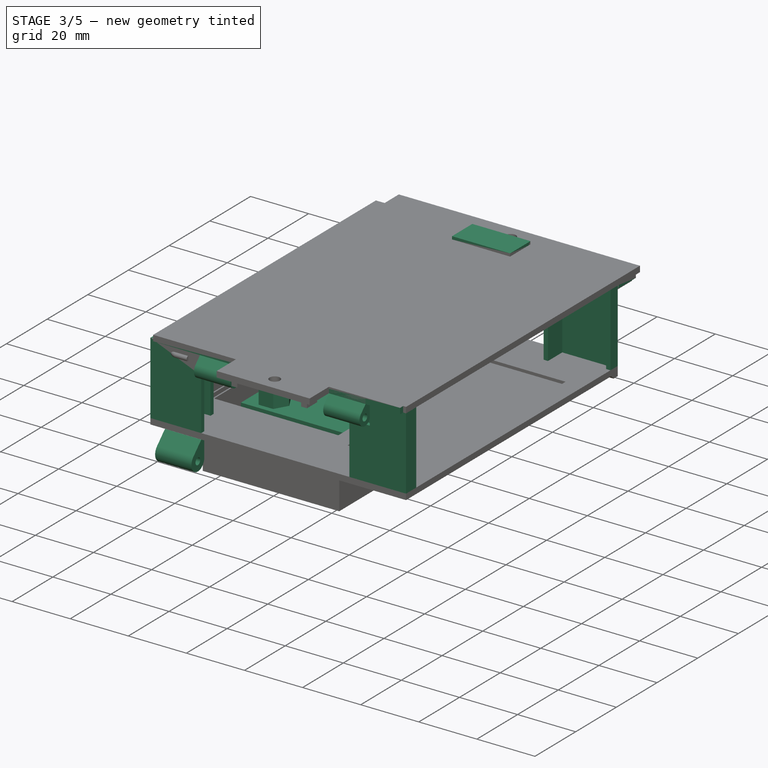
[diagram: stage 3 of 5 — iso view after this stage's code; geometry added in this stage tinted green]
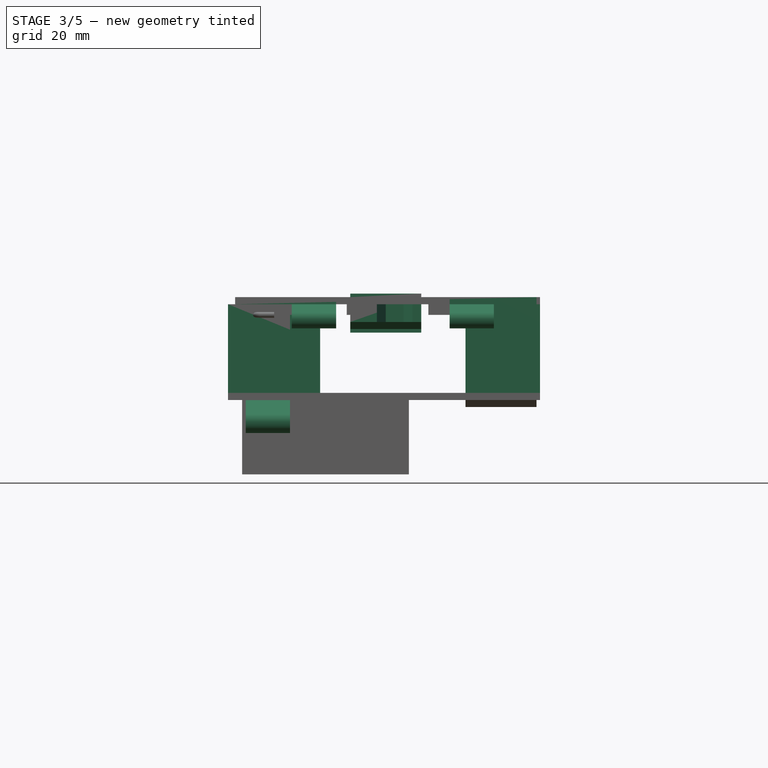
[diagram: stage 3 of 5 — front view after this stage's code; geometry added in this stage tinted green]
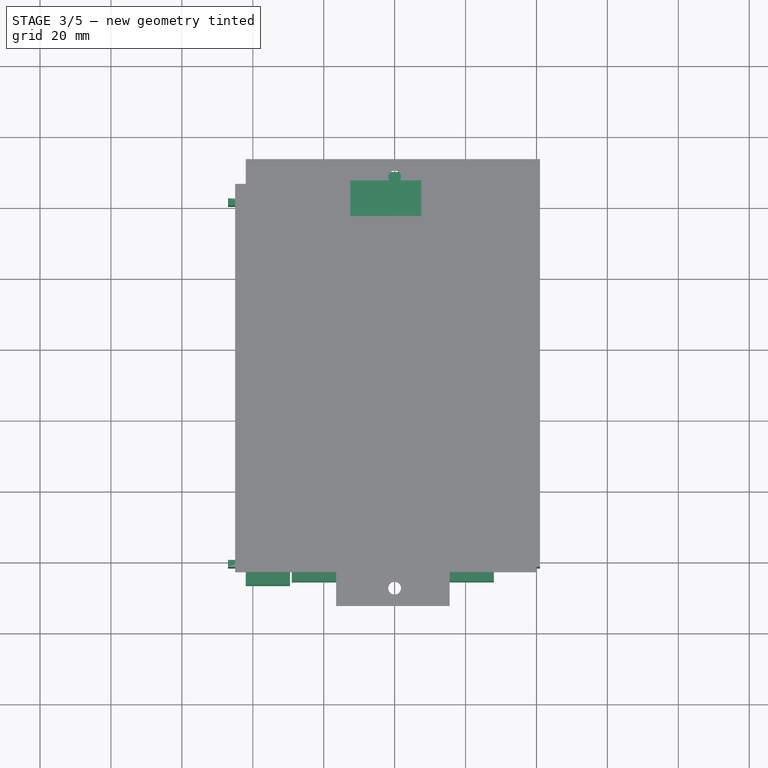
[diagram: stage 3 of 5 — top view after this stage's code; geometry added in this stage tinted green]
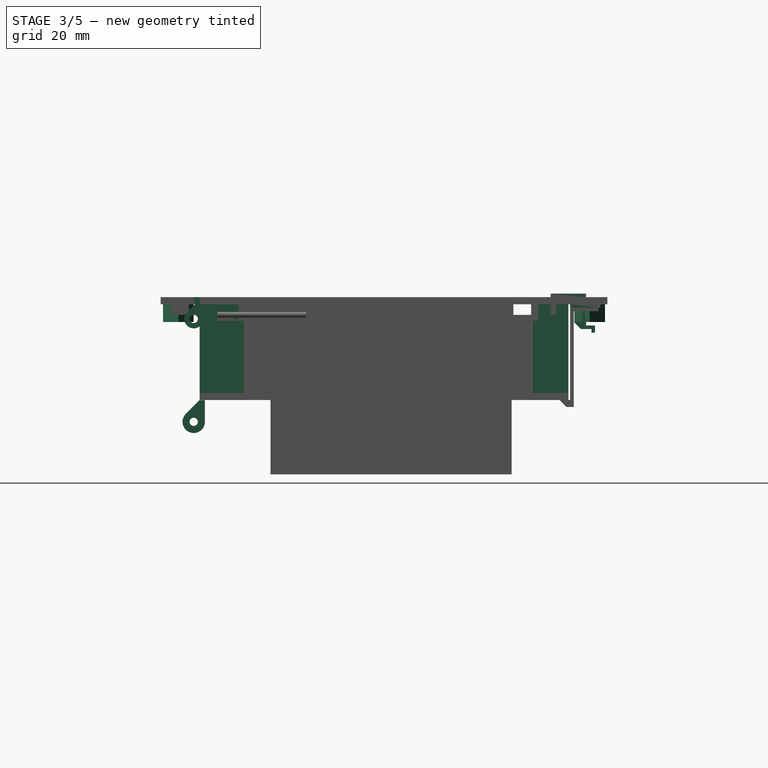
[diagram: stage 3 of 5 — right view after this stage's code; geometry added in this stage tinted green]
FEATURE [Sketcher::SketchObject] Sketch071
  FullyConstrained = true
  Placement = pos=(0,0,3) rot=(0,0,1;0rad)
  sketch-geometry (4):
    g0: LineSegment StartX=-5 StartY=106 StartZ=0 EndX=80 EndY=106 EndZ=0
    g1: LineSegment StartX=80 StartY=106 StartZ=0 EndX=80 EndY=-3.5 EndZ=0
    g2: LineSegment StartX=80 StartY=-3.5 StartZ=0 EndX=-5 EndY=-3.5 EndZ=0
    g3: LineSegment StartX=-5 StartY=-3.5 StartZ=0 EndX=-5 EndY=106 EndZ=0
  constraints (12):
    c: Coincident(g0,g1)
    c: Coincident(g1,g2)
    c: Coincident(g2,g3)
    c: Coincident(g3,g0)
    c: Horizontal(g0)
    c: Horizontal(g2)
    c: Vertical(g1)
    c: Vertical(g3)
    c: DistanceX(g0,g0) = 85
    c: DistanceY(g3,g3) = 109.5
    c: DistanceX(g0) = -5
    c: DistanceY(g0) = 106
FEATURE [Part::Extrusion] Extrude061
  Base = -> Sketch071
  Dir = (0,0,1)
  DirMode = 2
  FaceMakerClass = Part::FaceMakerBullseye
  LengthFwd = 2
  LengthRev = 0
  Solid = true
  Symmetric = false
FEATURE [Sketcher::SketchObject] Sketch076
  FullyConstrained = true
  Placement = pos=(-2,0,0) rot=(0.57735,0.57735,0.57735;2.0944rad)
  sketch-geometry (5):
    g0: Circle CenterX=-3.66 CenterY=-30.16 CenterZ=0 NormalX=0 NormalY=0 NormalZ=1 AngleXU=0 Radius=1.16
    g1: ArcOfCircle CenterX=-3.66 CenterY=-30.16 CenterZ=0 NormalX=0 NormalY=0 NormalZ=1 AngleXU=0 Radius=3.16 StartAngle=2.35619 EndAngle=6.28319
    g2: LineSegment StartX=-5.89446 StartY=-27.9255 StartZ=0 EndX=-2 EndY=-24.0311 EndZ=0
    g3: LineSegment StartX=-2 StartY=-24.0311 StartZ=0 EndX=-0.5 EndY=-24.0311 EndZ=0
    g4: LineSegment StartX=-0.5 StartY=-24.0311 StartZ=0 EndX=-0.5 EndY=-30.16 EndZ=0
  constraints (15):
    c: Radius(g0) = 1.16
    c: Coincident(g1,g0)
    c: Horizontal(g3)
    c: Coincident(g3,g4)
    c: Coincident(g4,g1)
    c: Vertical(g4)
    c: DistanceX(g3,g3) = 1.5
    c: Horizontal(g1,g0)
    c: Coincident(g2,g1)
    c: Radius(g1) = 3.16
    c: Tangent(g1,g2,g1) = 1.5708
    c: Coincident(g2,g3)
    c: Angle(g3,g2,g2) = 0.785398
    c: DistanceY(g0) = -30.16
    c: DistanceX(g2) = -2
FEATURE [Part::Extrusion] Extrude068
  Base = -> Sketch076
  Dir = (1,-2e-16,2e-16)
  DirMode = 2
  FaceMakerClass = Part::FaceMakerBullseye
  LengthFwd = 12.5
  LengthRev = 0
  Solid = true
  Symmetric = false
FEATURE [PartDesign::Body] Body003  label="hinge002"
  BaseFeature = -> Extrude068
  Group = -> [Clone003]
  Origin = -> Origin003
  Placement = pos=(79,0,-31.32) rot=(0,1,0;3.14159rad)
  Tip = -> Clone003
FEATURE [Sketcher::SketchObject] Sketch079
  FullyConstrained = true
  Placement = pos=(37.5,0,0) rot=(0.57735,0.57735,0.57735;2.0944rad)
  sketch-geometry (12):
    g0: LineSegment StartX=211.5 StartY=-27 StartZ=0 EndX=211.5 EndY=-20 EndZ=0
    g1: LineSegment StartX=211.5 StartY=-20 StartZ=0 EndX=214 EndY=-20 EndZ=0
    g2: LineSegment StartX=214 StartY=-20 StartZ=0 EndX=212 EndY=-18 EndZ=0
    g3: LineSegment StartX=210.5 StartY=-19 StartZ=0 EndX=210.5 EndY=-28 EndZ=0
    g4: LineSegment StartX=210.5 StartY=-28 StartZ=0 EndX=220.5 EndY=-28 EndZ=0
    g5: LineSegment StartX=220.5 StartY=-28 StartZ=0 EndX=220.5 EndY=-27 EndZ=0
    g6: LineSegment StartX=220.5 StartY=-27 StartZ=0 EndX=211.5 EndY=-27 EndZ=0
    g7: LineSegment StartX=212 StartY=-18 StartZ=0 EndX=209 EndY=-18 EndZ=0
    g8: LineSegment StartX=209 StartY=-18 StartZ=0 EndX=209 EndY=-17 EndZ=0
    g9: LineSegment StartX=209 StartY=-17 StartZ=0 EndX=208 EndY=-17 EndZ=0
    g10: LineSegment StartX=208 StartY=-17 StartZ=0 EndX=208 EndY=-19 EndZ=0
    g11: LineSegment StartX=208 StartY=-19 StartZ=0 EndX=210.5 EndY=-19 EndZ=0
  constraints (36):
    c: Vertical(g0)
    c: Coincident(g0,g1)
    c: Horizontal(g1)
    c: Coincident(g1,g2)
    c: Vertical(g3)
    c: Coincident(g3,g4)
    c: Horizontal(g4)
    c: Coincident(g4,g5)
    c: Vertical(g5)
    c: Coincident(g5,g6)
    c: Coincident(g6,g0)
    c: Horizontal(g6)
    c: DistanceX(g0) = 211.5
    c: DistanceY(g5,g5) = 1
    c: DistanceX(g1,g1) = 2.5
    c: DistanceY(g0) = -27
    c: DistanceX(g6,g6) = 9
    c: DistanceY(g0,g0) = 7
    c: DistanceX(g3,g0) = 1
    c: Angle(g1,g2,g1) = 2.35619
    c: Coincident(g2,g7)
    c: Horizontal(g7)
    c: Coincident(g7,g8)
    c: Vertical(g8)
    c: Coincident(g8,g9)
    c: Horizontal(g9)
    c: Coincident(g9,g10)
    c: Vertical(g10)
    c: Coincident(g10,g11)
    c: Coincident(g11,g3)
    c: Horizontal(g11)
    c: DistanceX(g9,g9) = 1
    c: DistanceY(g10,g10) = 2
    c: DistanceY(g10,g7) = 1
    c: DistanceX(g11,g11) = 2.5
    c: DistanceY(g3,g3) = 9
FEATURE [Part::Extrusion] Extrude071  label="lat latch"
  Base = -> Sketch079
  Dir = (1,-2e-16,2e-16)
  DirMode = 2
  FaceMakerClass = Part::FaceMakerBullseye
  LengthFwd = 10
  LengthRev = 10
  Placement = pos=(0,317.5,-22) rot=(1,0,0;3.14159rad)
  Solid = true
  Symmetric = false
FEATURE [Sketcher::SketchObject] Sketch081
  FullyConstrained = true
  Placement = pos=(0,0,4) rot=(0,0,1;0rad)
  sketch-geometry (4):
    g0: LineSegment StartX=0 StartY=97 StartZ=0 EndX=75 EndY=97 EndZ=0
    g1: LineSegment StartX=75 StartY=97 StartZ=0 EndX=75 EndY=1.5 EndZ=0
    g2: LineSegment StartX=75 StartY=1.5 StartZ=0 EndX=0 EndY=1.5 EndZ=0
    g3: LineSegment StartX=0 StartY=1.5 StartZ=0 EndX=0 EndY=97 EndZ=0
  constraints (12):
    c: Coincident(g0,g1)
    c: Coincident(g1,g2)
    c: Coincident(g2,g3)
    c: Coincident(g3,g0)
    c: Horizontal(g0)
    c: Horizontal(g2)
    c: Vertical(g1)
    c: Vertical(g3)
    c: PointOnObject(g0,g-2)
    c: DistanceY(g0) = 97
    c: DistanceX(g0,g0) = 75
    c: DistanceY(g1,g1) = 95.5
FEATURE [Part::Extrusion] Extrude073
  Base = -> Sketch081
  Dir = (0,0,1)
  DirMode = 2
  FaceMakerClass = Part::FaceMakerBullseye
  LengthFwd = 1
  LengthRev = 0
  Solid = true
  Symmetric = false
FEATURE [Part::Cut] Cut008
  Base = -> Extrude061
  Tool = -> Extrude073
FEATURE [Sketcher::SketchObject] Sketch083
  FullyConstrained = true
  Placement = pos=(0,0,5.32) rot=(1,0,0;3.14159rad)
  sketch-geometry (38):
    g0: LineSegment StartX=321.5 StartY=-250.5 StartZ=0 EndX=323 EndY=-250.5 EndZ=0
    g1: LineSegment StartX=323 StartY=-250.5 StartZ=0 EndX=323 EndY=-268 EndZ=0
    g2: LineSegment StartX=321 StartY=-263 StartZ=0 EndX=310.5 EndY=-263 EndZ=0
    g3: LineSegment StartX=310.5 StartY=-263 StartZ=0 EndX=310.5 EndY=-255 EndZ=0
    g4: LineSegment StartX=310.5 StartY=-255 StartZ=0 EndX=312 EndY=-255 EndZ=0
    g5: LineSegment StartX=312 StartY=-255 StartZ=0 EndX=312 EndY=-261.5 EndZ=0
    g6: LineSegment StartX=312 StartY=-261.5 StartZ=0 EndX=321.5 EndY=-261.5 EndZ=0
    g7: LineSegment StartX=321.5 StartY=-261.5 StartZ=0 EndX=321.5 EndY=-250.5 EndZ=0
    g8: LineSegment StartX=220.5 StartY=-242 StartZ=0 EndX=220.5 EndY=-261.5 EndZ=0
    g9: LineSegment StartX=220.5 StartY=-261.5 StartZ=0 EndX=227.5 EndY=-261.5 EndZ=0
    g10: LineSegment StartX=227.5 StartY=-261.5 StartZ=0 EndX=227.5 EndY=-253.5 EndZ=0
    g11: LineSegment StartX=227.5 StartY=-253.5 StartZ=0 EndX=229 EndY=-253.5 EndZ=0
    g12: LineSegment StartX=229 StartY=-253.5 StartZ=0 EndX=229 EndY=-263 EndZ=0
    g13: LineSegment StartX=229 StartY=-263 StartZ=0 EndX=221.01 EndY=-263 EndZ=0
    g14: LineSegment StartX=219 StartY=-268 StartZ=0 EndX=219 EndY=-242 EndZ=0
    g15: LineSegment StartX=219 StartY=-242 StartZ=0 EndX=220.5 EndY=-242 EndZ=0
    g16: LineSegment StartX=227.5 StartY=-199.5 StartZ=0 EndX=227.5 EndY=-198 EndZ=0
    g17: LineSegment StartX=227.5 StartY=-198 StartZ=0 EndX=220.5 EndY=-198 EndZ=0
    g18: LineSegment StartX=220.5 StartY=-198 StartZ=0 EndX=220.5 EndY=-181.5 EndZ=0
    g19: LineSegment StartX=220.5 StartY=-181.5 StartZ=0 EndX=222.5 EndY=-181.5 EndZ=0
    g20: LineSegment StartX=222.5 StartY=-181.5 StartZ=0 EndX=222.5 EndY=-180 EndZ=0
    g21: LineSegment StartX=222.5 StartY=-180 StartZ=0 EndX=219 EndY=-180 EndZ=0
    g22: LineSegment StartX=219 StartY=-180 StartZ=0 EndX=219 EndY=-201 EndZ=0
    g23: LineSegment StartX=220.5 StartY=-199.5 StartZ=0 EndX=227.5 EndY=-199.5 EndZ=0
    g24: LineSegment StartX=311.5 StartY=-199.5 StartZ=0 EndX=311.5 EndY=-198 EndZ=0
    g25: LineSegment StartX=311.5 StartY=-198 StartZ=0 EndX=321.5 EndY=-198 EndZ=0
    g26: LineSegment StartX=321.5 StartY=-198 StartZ=0 EndX=321.5 EndY=-181.5 EndZ=0
    g27: LineSegment StartX=321.5 StartY=-181.5 StartZ=0 EndX=318 EndY=-181.5 EndZ=0
    g28: LineSegment StartX=318 StartY=-181.5 StartZ=0 EndX=318 EndY=-180 EndZ=0
    g29: LineSegment StartX=318 StartY=-180 StartZ=0 EndX=323 EndY=-180 EndZ=0
    g30: LineSegment StartX=323 StartY=-180 StartZ=0 EndX=323 EndY=-199.5 EndZ=0
    g31: LineSegment StartX=323 StartY=-199.5 StartZ=0 EndX=311.5 EndY=-199.5 EndZ=0
    g32: LineSegment StartX=220.5 StartY=-199.5 StartZ=0 EndX=220.5 EndY=-201 EndZ=0
    g33: LineSegment StartX=220.5 StartY=-201 StartZ=0 EndX=219 EndY=-201 EndZ=0
    g34: LineSegment StartX=221.01 StartY=-263 StartZ=0 EndX=221.01 EndY=-268 EndZ=0
    g35: LineSegment StartX=221.01 StartY=-268 StartZ=0 EndX=219 EndY=-268 EndZ=0
    g36: LineSegment StartX=323 StartY=-268 StartZ=0 EndX=321 EndY=-268 EndZ=0
    g37: LineSegment StartX=321 StartY=-268 StartZ=0 EndX=321 EndY=-263 EndZ=0
  constraints (114):
    c: Horizontal(g0)
    c: Coincident(g0,g1)
    c: Vertical(g1)
    c: Horizontal(g2)
    c: Coincident(g2,g3)
    c: Vertical(g3)
    c: Coincident(g3,g4)
    c: Horizontal(g4)
    c: Coincident(g4,g5)
    c: Vertical(g5)
    c: Coincident(g5,g6)
    c: Horizontal(g6)
    c: Coincident(g6,g7)
    c: Coincident(g7,g0)
    c: Vertical(g7)
    c: DistanceX(g0) = 321.5
    c: DistanceX(g6,g6) = 9.5
    c: DistanceX(g4,g4) = 1.5
    c: DistanceX(g0,g0) = 1.5
    c: DistanceY(g6) = -261.5
    c: DistanceY(g3,g3) = 8
    c: Vertical(g8)
    c: Coincident(g8,g9)
    c: Horizontal(g9)
    c: Coincident(g9,g10)
    c: Vertical(g10)
    c: Coincident(g10,g11)
    c: Horizontal(g11)
    c: Coincident(g11,g12)
    c: Vertical(g12)
    c: Coincident(g12,g13)
    c: Horizontal(g13)
    c: Vertical(g14)
    c: Coincident(g14,g15)
    c: Coincident(g15,g8)
    c: Horizontal(g15)
    c: Horizontal(g9,g5)
    c: Horizontal(g2,g12)
    c: DistanceX(g15,g15) = 1.5
    c: DistanceX(g8) = 220.5
    c: DistanceX(g11,g11) = 1.5
    c: DistanceY(g10,g10) = 8
    c: Vertical(g16)
    c: Coincident(g16,g17)
    c: Horizontal(g17)
    c: Coincident(g17,g18)
    c: Vertical(g18)
    c: Coincident(g18,g19)
    c: Horizontal(g19)
    c: Coincident(g19,g20)
    c: Vertical(g20)
    c: Coincident(g20,g21)
    c: Horizontal(g21)
    c: Coincident(g21,g22)
    c: Vertical(g22)
    c: Coincident(g23,g16)
    c: Horizontal(g23)
    c: DistanceY(g16,g16) = 1.5
    c: DistanceY(g20,g20) = 1.5
    c: DistanceY(g18) = -181.5
    c: Vertical(g17,g8)
    c: Vertical(g22,g14)
    c: DistanceX(g17,g17) = 7
    c: DistanceX(g19,g19) = 2
    c: Coincident(g24,g25)
    c: Horizontal(g25)
    c: Coincident(g25,g26)
    c: Vertical(g26)
    c: Coincident(g26,g27)
    c: Horizontal(g27)
    c: Coincident(g27,g28)
    c: Vertical(g28)
    c: Coincident(g28,g29)
    c: Horizontal(g29)
    c: Coincident(g29,g30)
    c: Vertical(g30)
    c: Coincident(g31,g24)
    c: Horizontal(g31)
    c: Vertical(g24)
    c: DistanceY(g24,g24) = 1.5
    c: DistanceY(g28,g28) = 1.5
    c: DistanceX(g26,g29) = 1.5
    c: Vertical(g25,g0)
    c: Horizontal(g16,g24)
    c: Horizontal(g27,g19)
    c: DistanceX(g25,g25) = 10
    c: DistanceX(g27,g27) = 3.5
    c: DistanceY(g18,g18) = 16.5
    c: Coincident(g23,g32)
    c: Vertical(g32)
    c: Coincident(g32,g33)
    c: Coincident(g33,g22)
    c: Horizontal(g33)
    c: Vertical(g23,g17)
    c: DistanceX(g11) = 229
    c: Coincident(g13,g34)
    c: Vertical(g34)
    c: Coincident(g34,g35)
    c: Coincident(g35,g14)
    c: Horizontal(g35)
    c: DistanceY(g2,g5) = 1.5
    c: Coincident(g1,g36)
    c: Horizontal(g36)
    c: Coincident(g36,g37)
    c: Coincident(g37,g2)
    c: Vertical(g37)
    c: Horizontal(g34,g36)
    c: DistanceX(g36,g36) = 2
    c: DistanceX(g35,g35) = 2.01
    c: DistanceY(g34,g34) = 5
    c: DistanceY(g7,g7) = 11
    c: Coincident(g30,g31)
    c: DistanceY(g14,g14) = 26
    c: DistanceY(g22,g22) = 21
FEATURE [Part::Extrusion] Extrude074
  Base = -> Sketch083
  Dir = (0,0,-1)
  DirMode = 2
  FaceMakerClass = Part::FaceMakerBullseye
  LengthFwd = 25
  LengthRev = 0
  Solid = true
  Symmetric = false
FEATURE [Sketcher::SketchObject] Sketch084
  FullyConstrained = false
  MapMode = 2
  Placement = pos=(0,0,-12.5) rot=(1,0,0;3.14159rad)
  sketch-geometry (4):
    g0: LineSegment StartX=321.51 StartY=-192.5 StartZ=0 EndX=325.695 EndY=-192.5 EndZ=0
    g1: LineSegment StartX=325.695 StartY=-192.5 StartZ=0 EndX=325.695 EndY=-250.5 EndZ=0
    g2: LineSegment StartX=325.695 StartY=-250.5 StartZ=0 EndX=321.51 EndY=-250.5 EndZ=0
    g3: LineSegment StartX=321.51 StartY=-250.5 StartZ=0 EndX=321.51 EndY=-192.5 EndZ=0
  constraints (11):
    c: Coincident(g0,g1)
    c: Coincident(g1,g2)
    c: Coincident(g2,g3)
    c: Coincident(g3,g0)
    c: Horizontal(g0)
    c: Horizontal(g2)
    c: Vertical(g1)
    c: Vertical(g3)
    c: DistanceX(g0) = 321.51
    c: DistanceY(g0) = -192.5
    c: DistanceY(g2) = -250.5
FEATURE [Part::Extrusion] Extrude076
  Base = -> Sketch084
  Dir = (0,-1e-16,-1)
  DirMode = 2
  FaceMakerClass = Part::FaceMakerBullseye
  LengthFwd = 10
  LengthRev = 0
  Solid = true
  Symmetric = false
FEATURE [Sketcher::SketchObject] Sketch085
  FullyConstrained = true
  Placement = pos=(0,0,-15) rot=(1,0,0;3.14159rad)
  sketch-geometry (4):
    g0: LineSegment StartX=220.5 StartY=-181.5 StartZ=0 EndX=321.5 EndY=-181.5 EndZ=0
    g1: LineSegment StartX=321.5 StartY=-181.5 StartZ=0 EndX=321.5 EndY=-261.5 EndZ=0
    g2: LineSegment StartX=321.5 StartY=-261.5 StartZ=0 EndX=220.5 EndY=-261.5 EndZ=0
    g3: LineSegment StartX=220.5 StartY=-261.5 StartZ=0 EndX=220.5 EndY=-181.5 EndZ=0
  constraints (12):
    c: Coincident(g0,g1)
    c: Coincident(g1,g2)
    c: Coincident(g2,g3)
    c: Coincident(g3,g0)
    c: Horizontal(g0)
    c: Horizontal(g2)
    c: Vertical(g1)
    c: Vertical(g3)
    c: DistanceX(g0) = 220.5
    c: DistanceY(g0) = -181.5
    c: DistanceY(g1,g1) = 80
    c: DistanceX(g2,g2) = 101
FEATURE [Part::Extrusion] Extrude077
  Base = -> Sketch085
  Dir = (0,1e-16,-1)
  DirMode = 2
  FaceMakerClass = Part::FaceMakerBullseye
  LengthFwd = 6
  LengthRev = 0
  Solid = true
  Symmetric = false
FEATURE [Part::Compound] Compound022
  Links = -> [Extrude076,Extrude077]
FEATURE [Part::Cut] Cut011
  Base = -> Extrude074
  Placement = pos=(261,321,-16.68) rot=(0.707107,-0.707107,0;3.14159rad)
  Tool = -> Compound022
FEATURE [Sketcher::SketchObject] Sketch086
  FullyConstrained = true
  Placement = pos=(11,0,0) rot=(0.57735,0.57735,0.57735;2.0944rad)
  expr: Constraints[7] = -2.5 - Spreadsheet.hinge_r
  expr: Constraints[6] = -Spreadsheet.hinge_r
  expr: Constraints[5] = Spreadsheet.hinge_r + 1.5
  expr: Constraints[0] = Spreadsheet.hinge_r
  sketch-geometry (5):
    g0: Circle CenterX=-3.66 CenterY=-1.16 CenterZ=0 NormalX=0 NormalY=0 NormalZ=1 AngleXU=0 Radius=1.16
    g1: ArcOfCircle CenterX=-3.66 CenterY=-1.16 CenterZ=0 NormalX=0 NormalY=0 NormalZ=1 AngleXU=0 Radius=2.66 StartAngle=2.35619 EndAngle=6.28319
    g2: LineSegment StartX=-1 StartY=3 StartZ=0 EndX=-1 EndY=-1.16 EndZ=0
    g3: LineSegment StartX=-5.5409 StartY=0.720904 StartZ=0 EndX=-3.26181 EndY=3 EndZ=0
    g4: LineSegment StartX=-3.26181 StartY=3 StartZ=0 EndX=-1 EndY=3 EndZ=0
  constraints (15):
    c: Radius(g0) = 1.16
    c: Coincident(g1,g0)
    c: Coincident(g2,g1)
    c: Vertical(g2)
    c: Horizontal(g1,g0)
    c: Radius(g1) = 2.66
    c: DistanceY(g0) = -1.16
    c: DistanceX(g0) = -3.66
    c: Coincident(g3,g1)
    c: Tangent(g1,g3,g1) = 1.5708
    c: DistanceY(g2) = 3
    c: Coincident(g4,g3)
    c: Coincident(g4,g2)
    c: Horizontal(g4)
    c: Angle(g4,g3,g3) = 0.785398
FEATURE [Spreadsheet::Sheet] Spreadsheet
  cells = A1=hinge_r; B1(hinge_r)=1.16; A3=r3_4_40; B3(r3_4_40)=3.8; A4=r1_4_40; B4(r1_4_40)=1.8
FEATURE [Part::Extrusion] Extrude078
  Base = -> Sketch086
  Dir = (1,0,0)
  DirMode = 2
  FaceMakerClass = Part::FaceMakerBullseye
  LengthFwd = 12.5
  LengthRev = 0
  Solid = true
  Symmetric = false
FEATURE [PartDesign::FeatureBase] Clone005
  BaseFeature = -> Extrude068
FEATURE [PartDesign::Body] Body005  label="hinge"
  BaseFeature = -> Extrude068
  Group = -> [Clone005]
  Origin = -> Origin005
  Placement = pos=(8.5,0,-31.32) rot=(0,1,0;3.14159rad)
  Tip = -> Clone005
FEATURE [PartDesign::FeatureBase] Clone006
  BaseFeature = -> Extrude078
FEATURE [PartDesign::Body] Body006  label="hinge003"
  BaseFeature = -> Extrude078
  Group = -> [Clone006]
  Origin = -> Origin006
  Placement = pos=(44.5,0,0) rot=(0,0,1;0rad)
  Tip = -> Clone006
FEATURE [PartDesign::FeatureBase] Clone007
  BaseFeature = -> Extrude078
FEATURE [Part::Box] Box  label="fan"
  AttacherType = Attacher::AttachEngine3D
  Height = 10
  Length = 40
  Placement = pos=(0,32.5,-38.5) rot=(0,0,1;0rad)
  Width = 40
FEATURE [Part::Compound] Compound023  label="lid001"
  Links = -> [Body006,Body007,Cut013,Body008,Body009,Extrude092,Body011,Extrude094,Extrude095]
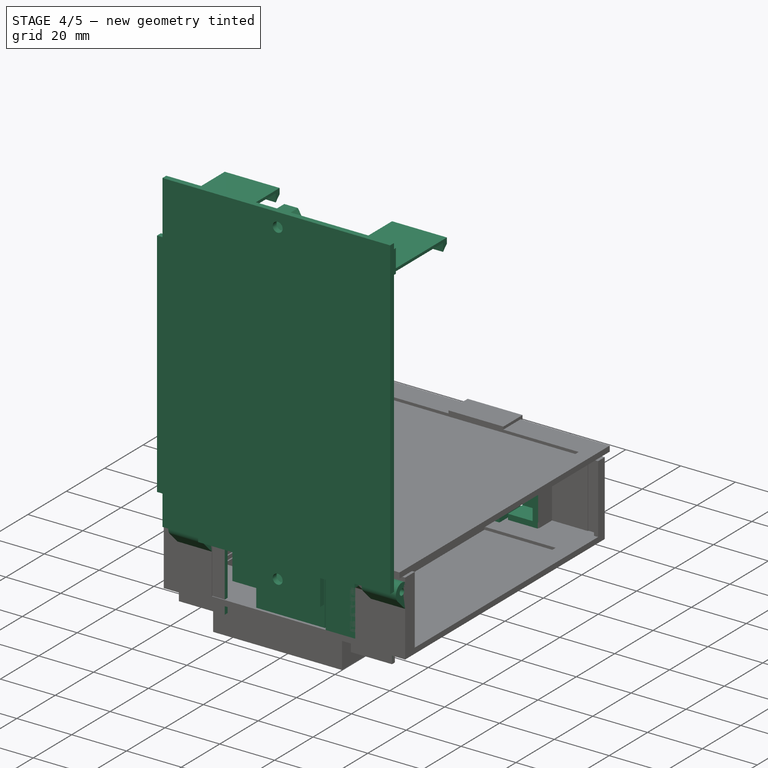
[diagram: stage 4 of 5 — iso view after this stage's code; geometry added in this stage tinted green]
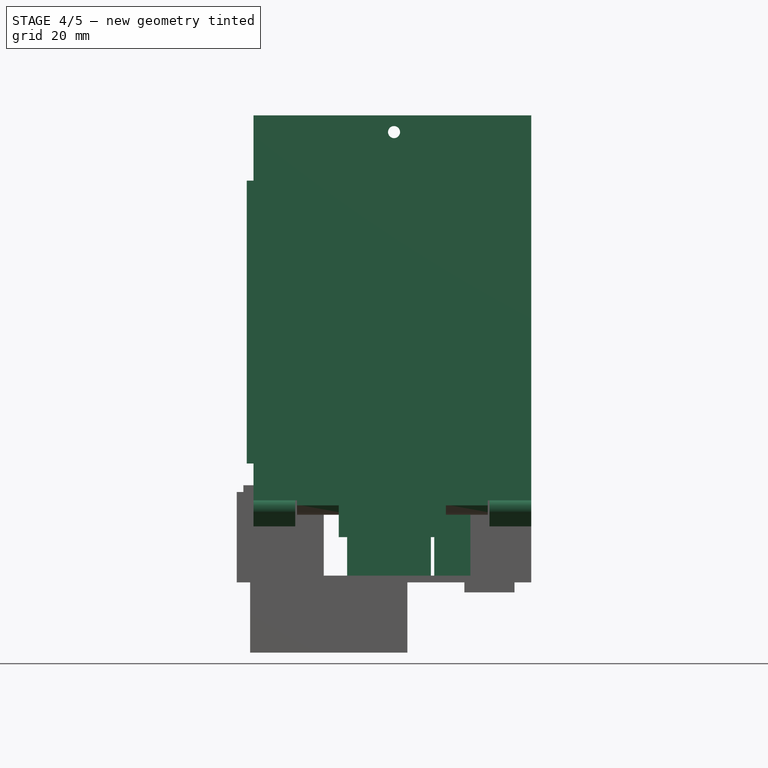
[diagram: stage 4 of 5 — front view after this stage's code; geometry added in this stage tinted green]
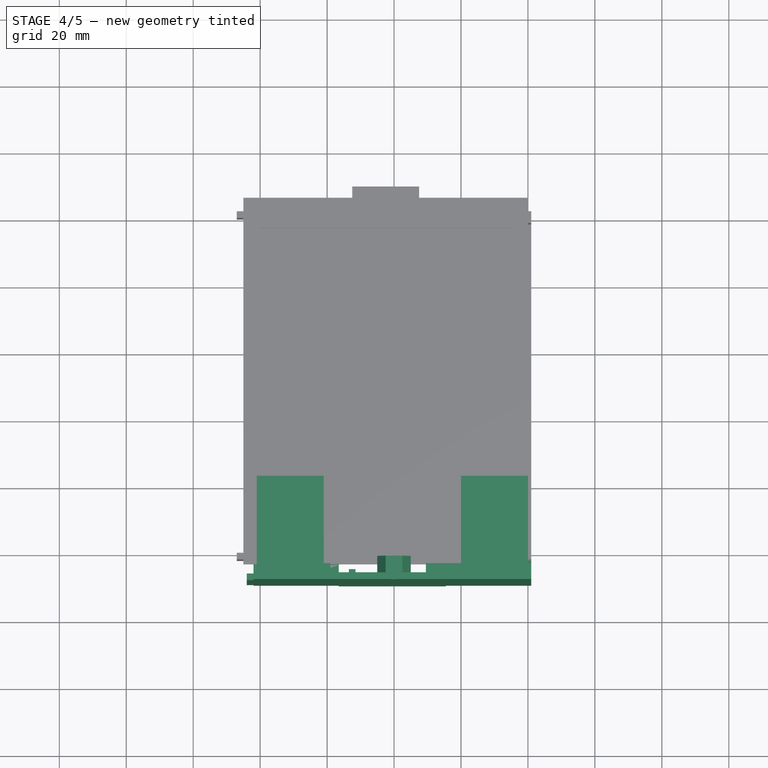
[diagram: stage 4 of 5 — top view after this stage's code; geometry added in this stage tinted green]
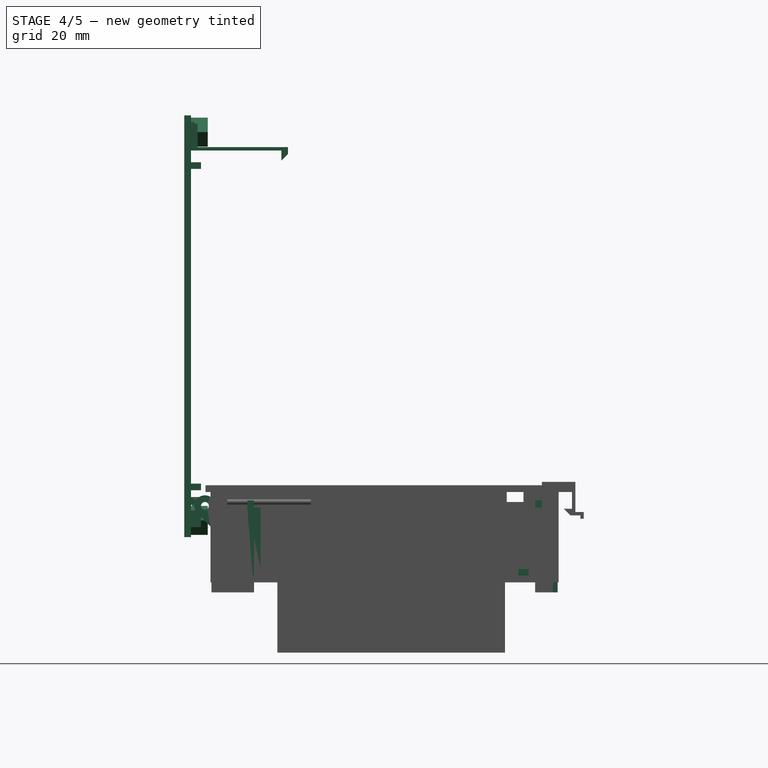
[diagram: stage 4 of 5 — right view after this stage's code; geometry added in this stage tinted green]
FEATURE [Sketcher::SketchObject] Sketch027
  FullyConstrained = true
  Placement = pos=(0,239,0) rot=(0,0.707107,0.707107;3.14159rad)
  sketch-geometry (8):
    g0: LineSegment StartX=-3 StartY=-25.5 StartZ=0 EndX=-1 EndY=-27.5 EndZ=0
    g1: LineSegment StartX=-1 StartY=-27.5 StartZ=0 EndX=1 EndY=-27.5 EndZ=0
    g2: LineSegment StartX=1 StartY=-27.5 StartZ=0 EndX=1 EndY=-3 EndZ=0
    g3: LineSegment StartX=-3 StartY=-25.5 StartZ=0 EndX=0 EndY=-25.5 EndZ=0
    g4: LineSegment StartX=0 StartY=-25.5 StartZ=0 EndX=0 EndY=-5 EndZ=0
    g5: LineSegment StartX=1 StartY=-3 StartZ=0 EndX=-10 EndY=-3 EndZ=0
    g6: LineSegment StartX=-10 StartY=-3 StartZ=0 EndX=-10 EndY=-5 EndZ=0
    g7: LineSegment StartX=-10 StartY=-5 StartZ=0 EndX=0 EndY=-5 EndZ=0
  constraints (24):
    c: Coincident(g0,g1)
    c: Horizontal(g1)
    c: Coincident(g1,g2)
    c: Vertical(g2)
    c: Coincident(g0,g3)
    c: Horizontal(g3)
    c: Vertical(g4)
    c: Coincident(g2,g5)
    c: Horizontal(g5)
    c: Coincident(g5,g6)
    c: Vertical(g6)
    c: DistanceY(g0,g3) = 2
    c: DistanceX(g3,g3) = 3
    c: DistanceX(g4,g2) = 1
    c: DistanceX(g6,g4) = 10
    c: Coincident(g7,g6)
    c: Horizontal(g7)
    c: Coincident(g3,g4)
    c: DistanceX(g1,g1) = 2
    c: DistanceY(g1) = -27.5
    c: DistanceY(g6,g6) = 2
    c: DistanceY(g2) = -3
    c: Coincident(g4,g7)
    c: PointOnObject(g4,g-2)
FEATURE [Part::Extrusion] Extrude021  label="jetson clip001"
  Base = -> Sketch027
  Dir = (0,1,-2e-16)
  DirMode = 2
  FaceMakerClass = Part::FaceMakerBullseye
  LengthFwd = 0
  LengthRev = 25
  Placement = pos=(-188,0,-25) rot=(0.707107,0.707107,0;3.14159rad)
  Solid = true
  Symmetric = false
FEATURE [PartDesign::FeatureBase] Clone
  BaseFeature = -> Extrude021
  Placement = pos=(-188,0,-25) rot=(0.707107,0.707107,0;3.14159rad)
FEATURE [PartDesign::Body] Body
  BaseFeature = -> Extrude021
  Group = -> [Clone]
  Origin = -> Origin
  Tip = -> Clone
FEATURE [Part::Mirroring] Part__Mirroring  label="jetson clip"
  Base = (0,0,0)
  Normal = (0,1,0)
  Placement = pos=(0,100,0) rot=(0,0,1;0rad)
  Source = -> Body
FEATURE [Sketcher::SketchObject] Sketch063
  FullyConstrained = true
  Placement = pos=(0,199,0) rot=(1,0,0;1.5708rad)
  sketch-geometry (20):
    g0: LineSegment StartX=310 StartY=-20.32 StartZ=0 EndX=310 EndY=-22.32 EndZ=0
    g1: LineSegment StartX=310 StartY=-22.32 StartZ=0 EndX=312 EndY=-22.32 EndZ=0
    g2: LineSegment StartX=312 StartY=-22.32 StartZ=0 EndX=312 EndY=-20.32 EndZ=0
    g3: LineSegment StartX=312 StartY=-20.32 StartZ=0 EndX=321.5 EndY=-20.32 EndZ=0
    g4: LineSegment StartX=321.5 StartY=-20.32 StartZ=0 EndX=321.5 EndY=-22.32 EndZ=0
    g5: LineSegment StartX=321.5 StartY=-22.32 StartZ=0 EndX=323 EndY=-22.32 EndZ=0
    g6: LineSegment StartX=323 StartY=-22.32 StartZ=0 EndX=323 EndY=-2 EndZ=0
    g7: LineSegment StartX=323 StartY=-2 StartZ=0 EndX=308 EndY=-2 EndZ=0
    g8: LineSegment StartX=308 StartY=-2 StartZ=0 EndX=308 EndY=-20.32 EndZ=0
    g9: LineSegment StartX=308 StartY=-20.32 StartZ=0 EndX=310 EndY=-20.32 EndZ=0
    g10: LineSegment StartX=224 StartY=-22.32 StartZ=0 EndX=226 EndY=-22.32 EndZ=0
    g11: LineSegment StartX=226 StartY=-22.32 StartZ=0 EndX=226 EndY=-20.32 EndZ=0
    g12: LineSegment StartX=226 StartY=-20.32 StartZ=0 EndX=228 EndY=-20.32 EndZ=0
    g13: LineSegment StartX=228 StartY=-20.32 StartZ=0 EndX=228 EndY=-2 EndZ=0
    g14: LineSegment StartX=228 StartY=-2 StartZ=0 EndX=219 EndY=-2 EndZ=0
    g15: LineSegment StartX=219 StartY=-2 StartZ=0 EndX=219 EndY=-22.32 EndZ=0
    g16: LineSegment StartX=219 StartY=-22.32 StartZ=0 EndX=220.5 EndY=-22.32 EndZ=0
    g17: LineSegment StartX=220.5 StartY=-22.32 StartZ=0 EndX=220.5 EndY=-20.32 EndZ=0
    g18: LineSegment StartX=220.5 StartY=-20.32 StartZ=0 EndX=224 EndY=-20.32 EndZ=0
    g19: LineSegment StartX=224 StartY=-20.32 StartZ=0 EndX=224 EndY=-22.32 EndZ=0
  constraints (60):
    c: Vertical(g0)
    c: Coincident(g0,g1)
    c: Horizontal(g1)
    c: Coincident(g1,g2)
    c: Vertical(g2)
    c: Coincident(g2,g3)
    c: Horizontal(g3)
    c: Coincident(g3,g4)
    c: Vertical(g4)
    c: Coincident(g4,g5)
    c: Horizontal(g5)
    c: Coincident(g5,g6)
    c: Vertical(g6)
    c: Coincident(g6,g7)
    c: Horizontal(g7)
    c: Coincident(g7,g8)
    c: Vertical(g8)
    c: Coincident(g8,g9)
    c: Coincident(g9,g0)
    c: Horizontal(g9)
    c: Horizontal(g0,g2)
    c: DistanceY(g7) = -2
    c: DistanceY(g8,g8) = 18.32
    c: DistanceX(g9,g9) = 2
    c: DistanceX(g1,g1) = 2
    c: DistanceY(g0,g0) = 2
    c: DistanceX(g7) = 308
    c: DistanceX(g7,g7) = 15
    c: Horizontal(g4,g1)
    c: DistanceX(g5,g5) = 1.5
    c: Horizontal(g10)
    c: Coincident(g10,g11)
    c: Vertical(g11)
    c: Coincident(g11,g12)
    c: Horizontal(g12)
    c: Coincident(g12,g13)
    c: Vertical(g13)
    c: Coincident(g13,g14)
    c: Horizontal(g14)
    c: Coincident(g14,g15)
    c: Vertical(g15)
    c: Coincident(g15,g16)
    c: Horizontal(g16)
    c: Coincident(g16,g17)
    c: Vertical(g17)
    c: Coincident(g17,g18)
    c: Horizontal(g18)
    c: Coincident(g18,g19)
    c: Coincident(g19,g10)
    c: Vertical(g19)
    c: Horizontal(g18,g11)
    c: Horizontal(g8,g12)
    c: Horizontal(g13,g7)
    c: DistanceY(g11,g11) = 2
    c: Horizontal(g16,g10)
    c: DistanceX(g16,g16) = 1.5
    c: DistanceX(g10,g10) = 2
    c: DistanceX(g14,g14) = 9
    c: DistanceX(g14) = 219
    c: DistanceX(g12,g12) = 2
FEATURE [Part::Extrusion] Extrude053
  Base = -> Sketch063
  Dir = (0,-1,2e-16)
  DirMode = 2
  FaceMakerClass = Part::FaceMakerBullseye
  LengthFwd = 1
  LengthRev = 1
  Solid = true
  Symmetric = false
FEATURE [Sketcher::SketchObject] Sketch064
  FullyConstrained = true
  Placement = pos=(0,198.2,0) rot=(1,0,0;1.5708rad)
  sketch-geometry (12):
    g0: LineSegment StartX=321.5 StartY=-2 StartZ=0 EndX=321.5 EndY=-22.32 EndZ=0
    g1: LineSegment StartX=321.5 StartY=-22.32 StartZ=0 EndX=323 EndY=-22.32 EndZ=0
    g2: LineSegment StartX=323 StartY=-22.32 StartZ=0 EndX=323 EndY=0 EndZ=0
    g3: LineSegment StartX=323 StartY=0 StartZ=0 EndX=308 EndY=0 EndZ=0
    g4: LineSegment StartX=308 StartY=0 StartZ=0 EndX=308 EndY=-2 EndZ=0
    g5: LineSegment StartX=308 StartY=-2 StartZ=0 EndX=321.5 EndY=-2 EndZ=0
    g6: LineSegment StartX=228 StartY=-2 StartZ=0 EndX=228 EndY=0 EndZ=0
    g7: LineSegment StartX=228 StartY=0 StartZ=0 EndX=219 EndY=0 EndZ=0
    g8: LineSegment StartX=219 StartY=0 StartZ=0 EndX=219 EndY=-22.32 EndZ=0
    g9: LineSegment StartX=219 StartY=-22.32 StartZ=0 EndX=220.5 EndY=-22.32 EndZ=0
    g10: LineSegment StartX=220.5 StartY=-22.32 StartZ=0 EndX=220.5 EndY=-2 EndZ=0
    g11: LineSegment StartX=220.5 StartY=-2 StartZ=0 EndX=228 EndY=-2 EndZ=0
  constraints (36):
    c: Vertical(g0)
    c: Coincident(g0,g1)
    c: Horizontal(g1)
    c: Coincident(g1,g2)
    c: Vertical(g2)
    c: Coincident(g2,g3)
    c: Horizontal(g3)
    c: Coincident(g3,g4)
    c: Vertical(g4)
    c: Coincident(g4,g5)
    c: Horizontal(g5)
    c: DistanceY(g4,g4) = 2
    c: DistanceX(g3) = 308
    c: DistanceX(g3,g3) = 15
    c: DistanceX(g1,g1) = 1.5
    c: Vertical(g6)
    c: Coincident(g6,g7)
    c: Horizontal(g7)
    c: Coincident(g7,g8)
    c: Vertical(g8)
    c: Coincident(g8,g9)
    c: Horizontal(g9)
    c: Coincident(g9,g10)
    c: Vertical(g10)
    c: Coincident(g10,g11)
    c: Horizontal(g11)
    c: Horizontal(g4,g6)
    c: Horizontal(g6,g3)
    c: DistanceX(g9,g9) = 1.5
    c: DistanceX(g7,g7) = 9
    c: DistanceX(g7) = 219
    c: PointOnObject(g3,g-1)
    c: DistanceY(g2,g2) = 22.32
    c: Coincident(g0,g5)
    c: Coincident(g6,g11)
    c: Horizontal(g9,g0)
FEATURE [Part::Extrusion] Extrude054
  Base = -> Sketch064
  Dir = (0,-1,2e-16)
  DirMode = 2
  FaceMakerClass = Part::FaceMakerBullseye
  LengthFwd = 0
  LengthRev = 10.8
  Solid = true
  Symmetric = false
FEATURE [Part::Compound] Compound016  label="prev supports001"
  Links = -> [Extrude053,Extrude054]
  Placement = pos=(261,321,-22) rot=(0.707107,-0.707107,0;3.14159rad)
FEATURE [Sketcher::SketchObject] Sketch069
  FullyConstrained = true
  Placement = pos=(0,0,0.5) rot=(0,0,1;0rad)
  sketch-geometry (28):
    g0: LineSegment StartX=5 StartY=95 StartZ=0 EndX=-1.7 EndY=95 EndZ=0
    g1: LineSegment StartX=-1.7 StartY=95 StartZ=0 EndX=-1.7 EndY=101.7 EndZ=0
    g2: LineSegment StartX=-1.7 StartY=101.7 StartZ=0 EndX=15 EndY=101.7 EndZ=0
    g3: LineSegment StartX=15 StartY=101.7 StartZ=0 EndX=15 EndY=100.2 EndZ=0
    g4: LineSegment StartX=15 StartY=100.2 StartZ=0 EndX=-0.2 EndY=100.2 EndZ=0
    g5: LineSegment StartX=-0.2 StartY=100.2 StartZ=0 EndX=-0.2 EndY=97 EndZ=0
    g6: LineSegment StartX=-0.2 StartY=97 StartZ=0 EndX=5 EndY=97 EndZ=0
    g7: LineSegment StartX=5 StartY=97 StartZ=0 EndX=5 EndY=95 EndZ=0
    g8: LineSegment StartX=5 StartY=11 StartZ=0 EndX=5 EndY=9 EndZ=0
    g9: LineSegment StartX=5 StartY=9 StartZ=0 EndX=-0.2 EndY=9 EndZ=0
    g10: LineSegment StartX=-0.2 StartY=9 StartZ=0 EndX=-0.2 EndY=-0.2 EndZ=0
    g11: LineSegment StartX=-0.2 StartY=-0.2 StartZ=0 EndX=15 EndY=-0.2 EndZ=0
    g12: LineSegment StartX=15 StartY=-0.2 StartZ=0 EndX=15 EndY=-1.7 EndZ=0
    g13: LineSegment StartX=15 StartY=-1.7 StartZ=0 EndX=-1.7 EndY=-1.7 EndZ=0
    g14: LineSegment StartX=-1.7 StartY=-1.7 StartZ=0 EndX=-1.7 EndY=11 EndZ=0
    g15: LineSegment StartX=-1.7 StartY=11 StartZ=0 EndX=5 EndY=11 EndZ=0
    g16: LineSegment StartX=61 StartY=95 StartZ=0 EndX=63 EndY=95 EndZ=0
    g17: LineSegment StartX=63 StartY=95 StartZ=0 EndX=63 EndY=100.2 EndZ=0
    g18: LineSegment StartX=63 StartY=100.2 StartZ=0 EndX=76 EndY=100.2 EndZ=0
    g19: LineSegment StartX=76 StartY=100.2 StartZ=0 EndX=76 EndY=101.7 EndZ=0
    g20: LineSegment StartX=76 StartY=101.7 StartZ=0 EndX=61 EndY=101.7 EndZ=0
    g21: LineSegment StartX=61 StartY=101.7 StartZ=0 EndX=61 EndY=95 EndZ=0
    g22: LineSegment StartX=61 StartY=11 StartZ=0 EndX=61 EndY=-1.7 EndZ=0
    g23: LineSegment StartX=61 StartY=-1.7 StartZ=0 EndX=76 EndY=-1.7 EndZ=0
    g24: LineSegment StartX=76 StartY=-1.7 StartZ=0 EndX=76 EndY=-0.2 EndZ=0
    g25: LineSegment StartX=76 StartY=-0.2 StartZ=0 EndX=63 EndY=-0.2 EndZ=0
    g26: LineSegment StartX=63 StartY=-0.2 StartZ=0 EndX=63 EndY=11 EndZ=0
    g27: LineSegment StartX=63 StartY=11 StartZ=0 EndX=61 EndY=11 EndZ=0
  constraints (84):
    c: Horizontal(g0)
    c: Coincident(g0,g1)
    c: Vertical(g1)
    c: Coincident(g1,g2)
    c: Horizontal(g2)
    c: Coincident(g2,g3)
    c: Vertical(g3)
    c: Coincident(g3,g4)
    c: Horizontal(g4)
    c: Coincident(g4,g5)
    c: Vertical(g5)
    c: Coincident(g5,g6)
    c: Horizontal(g6)
    c: Coincident(g6,g7)
    c: Coincident(g7,g0)
    c: Vertical(g7)
    c: DistanceY(g3,g3) = 1.5
    c: DistanceX(g1,g4) = 1.5
    c: DistanceY(g7,g7) = 2
    c: DistanceY(g3) = 100.2
    c: DistanceX(g4) = -0.2
    c: DistanceX(g6,g6) = 5.2
    c: DistanceX(g2,g2) = 16.7
    c: DistanceY(g1,g1) = 6.7
    c: Vertical(g8)
    c: Coincident(g8,g9)
    c: Horizontal(g9)
    c: Coincident(g9,g10)
    c: Vertical(g10)
    c: Coincident(g10,g11)
    c: Horizontal(g11)
    c: Coincident(g11,g12)
    c: Vertical(g12)
    c: Coincident(g12,g13)
    c: Horizontal(g13)
    c: Coincident(g13,g14)
    c: Vertical(g14)
    c: Coincident(g14,g15)
    c: Coincident(g15,g8)
    c: Horizontal(g15)
    c: DistanceY(g8,g8) = 2
    c: DistanceX(g9) = -0.2
    c: DistanceX(g14,g9) = 1.5
    c: DistanceY(g12,g12) = 1.5
    c: DistanceY(g10) = -0.2
    c: DistanceY(g14,g14) = 12.7
    c: DistanceX(g15,g15) = 6.7
    c: DistanceX(g13,g13) = 16.7
    c: Horizontal(g16)
    c: Coincident(g16,g17)
    c: Vertical(g17)
    c: Coincident(g17,g18)
    c: Horizontal(g18)
    c: Coincident(g18,g19)
    c: Vertical(g19)
    c: Coincident(g19,g20)
    c: Horizontal(g20)
    c: Coincident(g20,g21)
    c: Coincident(g21,g16)
    c: Vertical(g21)
    c: DistanceX(g16,g16) = 2
    c: DistanceY(g17) = 100.2
    c: DistanceY(g19,g19) = 1.5
    c: DistanceY(g21,g21) = 6.7
    c: DistanceX(g20,g20) = 15
    c: DistanceX(g20) = 61
    c: Vertical(g22)
    c: Coincident(g22,g23)
    c: Horizontal(g23)
    c: Coincident(g23,g24)
    c: Vertical(g24)
    c: Coincident(g24,g25)
    c: Horizontal(g25)
    c: Coincident(g25,g26)
    c: Vertical(g26)
    c: Coincident(g26,g27)
    c: Coincident(g27,g22)
    c: Horizontal(g27)
    c: DistanceX(g27,g27) = 2
    c: DistanceY(g25) = -0.2
    c: DistanceY(g24,g24) = 1.5
    c: DistanceX(g23,g23) = 15
    c: DistanceY(g22,g22) = 12.7
    c: DistanceX(g22) = 61
FEATURE [Part::Extrusion] Extrude059
  Base = -> Sketch069
  Dir = (0,0,1)
  DirMode = 2
  FaceMakerClass = Part::FaceMakerBullseye
  LengthFwd = 0
  LengthRev = 27.5
  Solid = true
  Symmetric = false
FEATURE [Sketcher::SketchObject] Sketch070
  FullyConstrained = true
  Placement = pos=(0,0,1) rot=(0,0,1;0rad)
  sketch-geometry (16):
    g0: LineSegment StartX=-0.2 StartY=98 StartZ=0 EndX=3 EndY=98 EndZ=0
    g1: LineSegment StartX=3 StartY=98 StartZ=0 EndX=3 EndY=94 EndZ=0
    g2: LineSegment StartX=3 StartY=94 StartZ=0 EndX=-0.2 EndY=94 EndZ=0
    g3: LineSegment StartX=-0.2 StartY=94 StartZ=0 EndX=-0.2 EndY=98 EndZ=0
    g4: LineSegment StartX=64 StartY=100.2 StartZ=0 EndX=60 EndY=100.2 EndZ=0
    g5: LineSegment StartX=60 StartY=100.2 StartZ=0 EndX=60 EndY=97 EndZ=0
    g6: LineSegment StartX=60 StartY=97 StartZ=0 EndX=64 EndY=97 EndZ=0
    g7: LineSegment StartX=64 StartY=97 StartZ=0 EndX=64 EndY=100.2 EndZ=0
    g8: LineSegment StartX=-0.2 StartY=8 StartZ=0 EndX=3 EndY=8 EndZ=0
    g9: LineSegment StartX=3 StartY=8 StartZ=0 EndX=3 EndY=12 EndZ=0
    g10: LineSegment StartX=3 StartY=12 StartZ=0 EndX=-0.2 EndY=12 EndZ=0
    g11: LineSegment StartX=-0.2 StartY=12 StartZ=0 EndX=-0.2 EndY=8 EndZ=0
    g12: LineSegment StartX=60 StartY=9 StartZ=0 EndX=64 EndY=9 EndZ=0
    g13: LineSegment StartX=64 StartY=9 StartZ=0 EndX=64 EndY=-0.2 EndZ=0
    g14: LineSegment StartX=64 StartY=-0.2 StartZ=0 EndX=60 EndY=-0.2 EndZ=0
    g15: LineSegment StartX=60 StartY=-0.2 StartZ=0 EndX=60 EndY=9 EndZ=0
  constraints (48):
    c: Coincident(g0,g1)
    c: Coincident(g1,g2)
    c: Coincident(g2,g3)
    c: Coincident(g3,g0)
    c: Horizontal(g0)
    c: Horizontal(g2)
    c: Vertical(g1)
    c: Vertical(g3)
    c: DistanceX(g0) = -0.2
    c: DistanceX(g0,g0) = 3.2
    c: DistanceY(g3,g3) = 4
    c: DistanceY(g0) = 98
    c: Coincident(g4,g5)
    c: Coincident(g5,g6)
    c: Coincident(g6,g7)
    c: Coincident(g7,g4)
    c: Horizontal(g4)
    c: Horizontal(g6)
    c: Vertical(g5)
    c: Vertical(g7)
    c: DistanceX(g4,g4) = 4
    c: DistanceY(g4) = 100.2
    c: DistanceY(g5,g5) = 3.2
    c: DistanceX(g4) = 60
    c: Coincident(g8,g9)
    c: Coincident(g9,g10)
    c: Coincident(g10,g11)
    c: Coincident(g11,g8)
    c: Horizontal(g8)
    c: Horizontal(g10)
    c: Vertical(g9)
    c: Vertical(g11)
    c: DistanceX(g10) = -0.2
    c: DistanceX(g10,g10) = 3.2
    c: DistanceY(g11,g11) = 4
    c: DistanceY(g10) = 12
    c: Coincident(g12,g13)
    c: Coincident(g13,g14)
    c: Coincident(g14,g15)
    c: Coincident(g15,g12)
    c: Horizontal(g12)
    c: Horizontal(g14)
    c: Vertical(g13)
    c: Vertical(g15)
    c: DistanceY(g14) = -0.2
    c: DistanceX(g14,g14) = 4
    c: DistanceY(g15,g15) = 9.2
    c: DistanceX(g14) = 60
FEATURE [Part::Extrusion] Extrude060
  Base = -> Sketch070
  Dir = (0,0,1)
  DirMode = 2
  FaceMakerClass = Part::FaceMakerBullseye
  LengthFwd = 0
  LengthRev = 2.7
  Solid = true
  Symmetric = false
FEATURE [Part::Cut] Cut  label="jetson align"
  Base = -> Extrude059
  Tool = -> Extrude060
FEATURE [Part::Compound] Compound017  label="jetson clips"
  Links = -> [Extrude021,Part__Mirroring]
FEATURE [PartDesign::FeatureBase] Clone002
  BaseFeature = -> Extrude068
FEATURE [PartDesign::Body] Body002
  BaseFeature = -> Extrude068
  Group = -> [Clone002]
  Origin = -> Origin002
  Placement = pos=(0,23,-1) rot=(-1,0,0;1.5708rad)
  Tip = -> Clone002
FEATURE [Sketcher::SketchObject] Sketch078
  FullyConstrained = false
  Placement = pos=(15.5,0,0) rot=(0.57735,0.57735,0.57735;2.0944rad)
  sketch-geometry (4):
    g0: LineSegment StartX=-11 StartY=12 StartZ=0 EndX=-1 EndY=12 EndZ=0
    g1: LineSegment StartX=-1 StartY=12 StartZ=0 EndX=-1 EndY=2 EndZ=0
    g2: LineSegment StartX=-1 StartY=2 StartZ=0 EndX=-11 EndY=2 EndZ=0
    g3: LineSegment StartX=-11 StartY=2 StartZ=0 EndX=-11 EndY=12 EndZ=0
  constraints (10):
    c: Coincident(g0,g1)
    c: Coincident(g1,g2)
    c: Coincident(g2,g3)
    c: Coincident(g3,g0)
    c: Horizontal(g0)
    c: Horizontal(g2)
    c: Vertical(g1)
    c: Vertical(g3)
    c: DistanceX(g0,g0) = 10
    c: DistanceY(g3,g3) = 10
FEATURE [Part::Extrusion] Extrude070
  Base = -> Sketch078
  Dir = (1,-2e-16,2e-16)
  DirMode = 2
  FaceMakerClass = Part::FaceMakerBullseye
  LengthFwd = 44
  LengthRev = 0
  Solid = true
  Symmetric = false
FEATURE [Part::MultiCommon] Common  label="hinge001"
  Shapes = -> [Extrude070,Body002]
FEATURE [PartDesign::FeatureBase] Clone003
  BaseFeature = -> Extrude068
FEATURE [Part::Compound] Compound019  label="lid"
  Links = -> [Common,Cut008]
FEATURE [Part::Compound] Compound018  label="bathtub"
  Links = -> [Body005,Body003,Cut011,Cut012,Cut015]
FEATURE [PartDesign::FeatureBase] Clone004
  BaseFeature = -> Compound023
FEATURE [PartDesign::Body] Body004
  BaseFeature = -> Compound023
  Group = -> [Clone004]
  Origin = -> Origin004
  Placement = pos=(0,3.66,1.16) rot=(0,0,1;0rad)
  Tip = -> Clone004
  expr: .Placement.Base.y = 2.5 + Spreadsheet.hinge_r
  expr: .Placement.Base.z = Spreadsheet.hinge_r
FEATURE [Part::Compound] Compound020  label="lid pivot"
  Links = -> [Body004,Body012]
  Placement = pos=(0,-3.66,-1.16) rot=(-1,0,0;4.71239rad)
  expr: .Placement.Base.y = -2.5 - Spreadsheet.hinge_r
  expr: .Placement.Base.z = -Spreadsheet.hinge_r
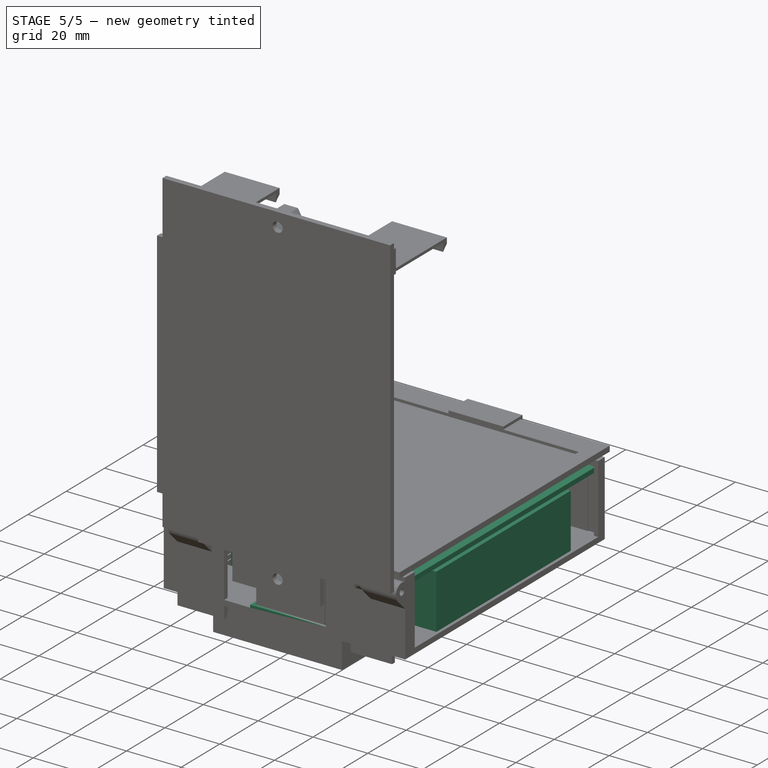
[diagram: stage 5 of 5 — iso view after this stage's code; geometry added in this stage tinted green]
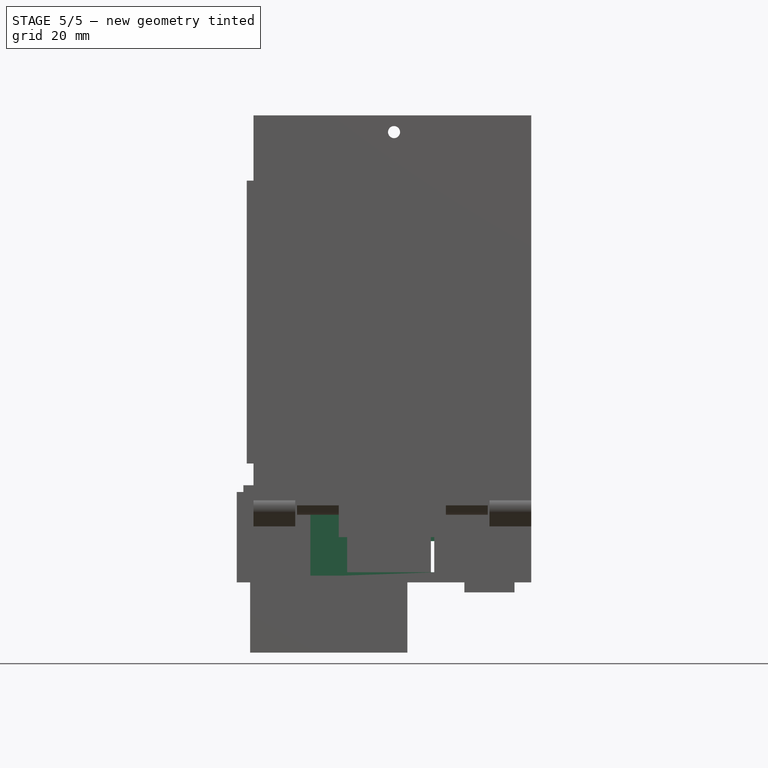
[diagram: stage 5 of 5 — front view after this stage's code; geometry added in this stage tinted green]
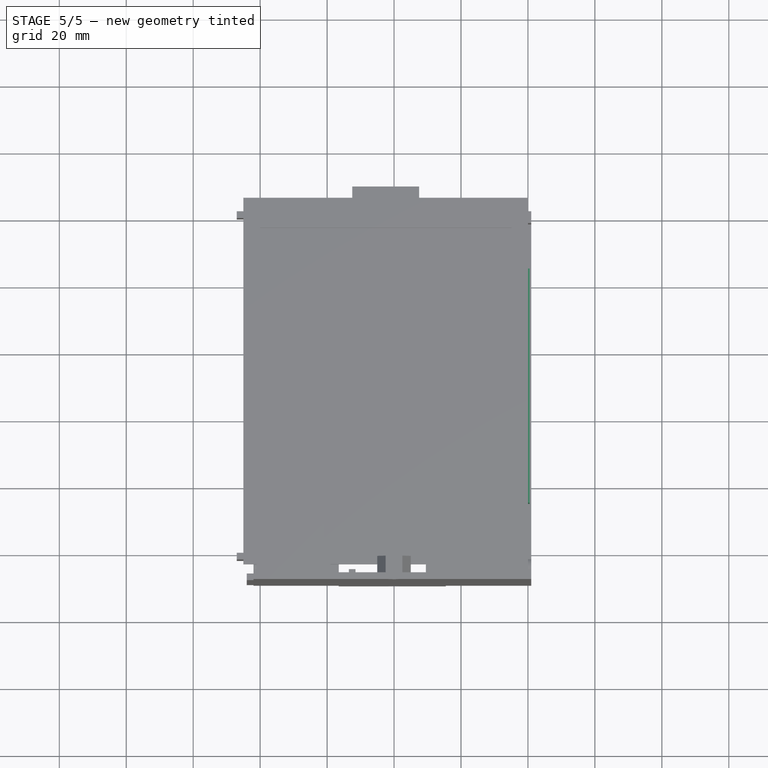
[diagram: stage 5 of 5 — top view after this stage's code; geometry added in this stage tinted green]
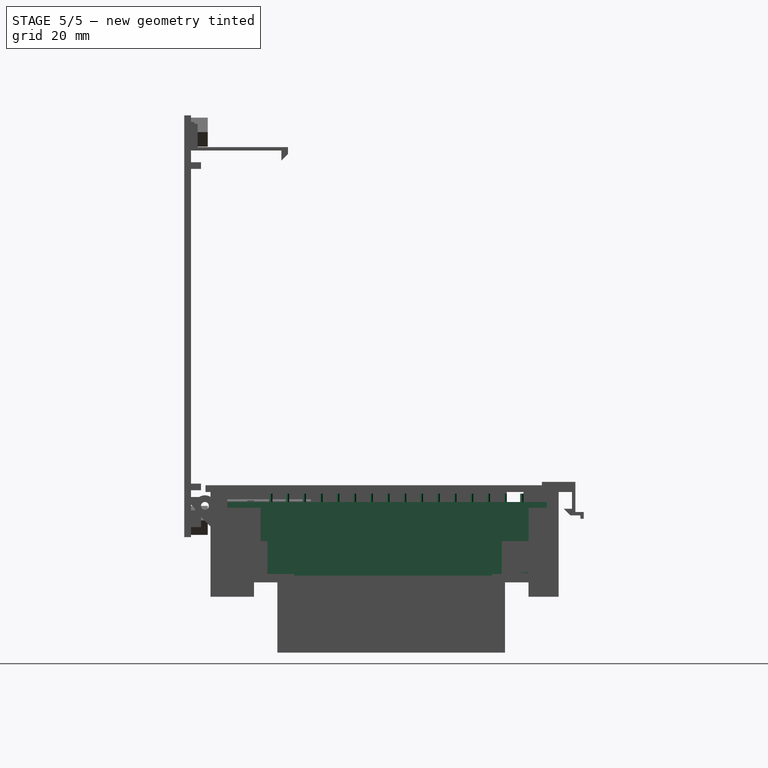
[diagram: stage 5 of 5 — right view after this stage's code; geometry added in this stage tinted green]
FEATURE [Sketcher::SketchObject] Sketch022
  FullyConstrained = true
  Placement = pos=(0,0,-1.7) rot=(1,0,0;3.14159rad)
  sketch-geometry (4):
    g0: LineSegment StartX=40 StartY=0 StartZ=0 EndX=58.5 EndY=0 EndZ=0
    g1: LineSegment StartX=58.5 StartY=0 StartZ=0 EndX=58.5 EndY=-100 EndZ=0
    g2: LineSegment StartX=58.5 StartY=-100 StartZ=0 EndX=40 EndY=-100 EndZ=0
    g3: LineSegment StartX=40 StartY=-100 StartZ=0 EndX=40 EndY=0 EndZ=0
  constraints (12):
    c: Coincident(g0,g1)
    c: Coincident(g1,g2)
    c: Coincident(g2,g3)
    c: Coincident(g3,g0)
    c: Horizontal(g0)
    c: Horizontal(g2)
    c: Vertical(g1)
    c: Vertical(g3)
    c: PointOnObject(g0,g-1)
    c: DistanceX(g0) = 40
    c: DistanceX(g0,g0) = 18.5
    c: DistanceY(g3,g3) = 100
FEATURE [Part::Extrusion] Extrude017
  Base = -> Sketch022
  Dir = (0,0,-1)
  DirMode = 2
  FaceMakerClass = Part::FaceMakerBullseye
  LengthFwd = 10
  LengthRev = 0
  Solid = true
  Symmetric = false
FEATURE [Sketcher::SketchObject] Sketch018
  FullyConstrained = true
  Placement = pos=(0,0,-1.7) rot=(1,0,0;3.14159rad)
  sketch-geometry (4):
    g0: LineSegment StartX=0 StartY=-23 StartZ=0 EndX=40 EndY=-23 EndZ=0
    g1: LineSegment StartX=40 StartY=-23 StartZ=0 EndX=40 EndY=-82 EndZ=0
    g2: LineSegment StartX=40 StartY=-82 StartZ=0 EndX=0 EndY=-82 EndZ=0
    g3: LineSegment StartX=0 StartY=-82 StartZ=0 EndX=0 EndY=-23 EndZ=0
  constraints (12):
    c: Coincident(g0,g1)
    c: Coincident(g1,g2)
    c: Coincident(g2,g3)
    c: Coincident(g3,g0)
    c: Horizontal(g0)
    c: Horizontal(g2)
    c: Vertical(g1)
    c: Vertical(g3)
    c: DistanceX(g0,g0) = 40
    c: DistanceY(g3,g3) = 59
    c: PointOnObject(g0,g-2)
    c: DistanceY(g0) = -23
FEATURE [Part::Extrusion] Extrude013
  Base = -> Sketch018
  Dir = (0,-1e-16,-1)
  DirMode = 2
  FaceMakerClass = Part::FaceMakerBullseye
  LengthFwd = 26.8
  LengthRev = 0
  Solid = true
  Symmetric = false
FEATURE [Sketcher::SketchObject] Sketch019
  FullyConstrained = true
  Placement = pos=(0,0,-1.7) rot=(1,0,0;3.14159rad)
  sketch-geometry (4):
    g0: LineSegment StartX=80.5 StartY=-85 StartZ=0 EndX=58.5 EndY=-85 EndZ=0
    g1: LineSegment StartX=58.5 StartY=-85 StartZ=0 EndX=58.5 EndY=-15 EndZ=0
    g2: LineSegment StartX=58.5 StartY=-15 StartZ=0 EndX=80.5 EndY=-15 EndZ=0
    g3: LineSegment StartX=80.5 StartY=-15 StartZ=0 EndX=80.5 EndY=-85 EndZ=0
  constraints (12):
    c: Coincident(g0,g1)
    c: Coincident(g1,g2)
    c: Coincident(g2,g3)
    c: Coincident(g3,g0)
    c: Horizontal(g0)
    c: Horizontal(g2)
    c: Vertical(g1)
    c: Vertical(g3)
    c: DistanceX(g2,g2) = 22
    c: DistanceY(g3,g3) = 70
    c: DistanceX(g2) = 80.5
    c: DistanceY(g2) = -15
FEATURE [Part::Extrusion] Extrude014
  Base = -> Sketch019
  Dir = (0,0,-1)
  DirMode = 2
  FaceMakerClass = Part::FaceMakerBullseye
  LengthFwd = 19.8
  LengthRev = 0
  Solid = true
  Symmetric = false
FEATURE [Sketcher::SketchObject] Sketch015
  FullyConstrained = true
  Placement = pos=(0,0,0) rot=(1,0,0;3.14159rad)
  sketch-geometry (8):
    g0: LineSegment StartX=0 StartY=0 StartZ=0 EndX=79 EndY=0 EndZ=0
    g1: LineSegment StartX=79 StartY=0 StartZ=0 EndX=79 EndY=-100 EndZ=0
    g2: LineSegment StartX=79 StartY=-100 StartZ=0 EndX=0 EndY=-100 EndZ=0
    g3: LineSegment StartX=0 StartY=-100 StartZ=0 EndX=0 EndY=0 EndZ=0
    g4: Circle CenterX=4 CenterY=-10 CenterZ=0 NormalX=0 NormalY=0 NormalZ=1 AngleXU=0 Radius=1.25
    g5: Circle CenterX=62 CenterY=-10 CenterZ=0 NormalX=0 NormalY=0 NormalZ=1 AngleXU=0 Radius=1.25
    g6: Circle CenterX=4 CenterY=-96 CenterZ=0 NormalX=0 NormalY=0 NormalZ=1 AngleXU=0 Radius=1.25
    g7: Circle CenterX=62 CenterY=-96 CenterZ=0 NormalX=0 NormalY=0 NormalZ=1 AngleXU=0 Radius=1.25
  constraints (23):
    c: Coincident(g0,g1)
    c: Coincident(g1,g2)
    c: Coincident(g2,g3)
    c: Coincident(g3,g0)
    c: Horizontal(g0)
    c: Horizontal(g2)
    c: Vertical(g1)
    c: Vertical(g3)
    c: Coincident(g0,g-1)
    c: DistanceX(g0,g0) = 79
    c: DistanceY(g3,g3) = 100
    c: DistanceX(g4) = 4
    c: DistanceY(g4) = -10
    c: Radius(g4) = 1.25
    c: Equal(g4,g5) = 1.25
    c: Equal(g4,g6) = 1.25
    c: Equal(g4,g7) = 1.25
    c: DistanceY(g6) = -96
    c: Vertical(g6,g4)
    c: Horizontal(g4,g5)
    c: Horizontal(g7,g6)
    c: DistanceX(g5) = 62
    c: Vertical(g7,g5)
FEATURE [Part::Extrusion] Extrude010  label="jetson"
  Base = -> Sketch015
  Dir = (0,0,-1)
  DirMode = 2
  FaceMakerClass = Part::FaceMakerBullseye
  LengthFwd = 1.7
  LengthRev = 0
  Solid = true
  Symmetric = false
FEATURE [Sketcher::SketchObject] Sketch021
  FullyConstrained = true
  Placement = pos=(0,0,0) rot=(1,0,0;3.14159rad)
  sketch-geometry (1):
    g0: Circle CenterX=10 CenterY=-16 CenterZ=0 NormalX=0 NormalY=0 NormalZ=1 AngleXU=0 Radius=0.5
  constraints (3):
    c: Radius(g0) = 0.5
    c: DistanceX(g0) = 10
    c: DistanceY(g0) = -16
FEATURE [Part::Extrusion] Extrude016
  Base = -> Sketch021
  Dir = (0,0,-1)
  DirMode = 2
  FaceMakerClass = Part::FaceMakerBullseye
  LengthFwd = 0
  LengthRev = 2.5
  Solid = true
  Symmetric = false
FEATURE [Part::FeaturePython] Array002  # Draft array (typed FeaturePython)
  Angle = 360
  ArrayType = 0
  Axis = (0,0,1)
  Base = -> Extrude016
  Center = (0,0,0)
  Count = 192
  ExpandArray = false
  Fuse = false
  IntervalAxis = (0,0,0)
  IntervalX = (5,0,0)
  IntervalY = (0,5,0)
  IntervalZ = (0,0,100)
  NumberCircles = 3
  NumberPolar = 5
  NumberX = 12
  NumberY = 16
  NumberZ = 1
  PlacementList = 192 placements: [(0,0,0),(0,5,0),(0,10,0),(0,15,0),(0,20,0),(0,25,0),(0,30,0),(0,35,0),(0,40,0),(0,45,0),(0,50,0),(0,55,0),(0,60,0),(0,65,0),(0,70,0),(0,75,0),(5,0,0),(5,5,0),(5,10,0),(5,15,0),(5,20,0),(5,25,0),(5,30,0),(5,35,0),(5,40,0),(5,45,0),(5,50,0),(5,55,0),(5,60,0),(5,65,0),(5,70,0),(5,75,0),(10,0,0),(10,5,0),(10,10,0),(10,15,0),(10,20,0),(10,25,0),(10,30,0),(10,35,0),(10,40,0),(10,45,0),(10,50,0),+149 more]
  RadialDistance = 50
  ScaleList = (192) [(1,1,1),(1,1,1),(1,1,1),(1,1,1),(1,1,1),(1,1,1),(1,1,1),(1,1,1),(1,1,1),(1,1,1),(1,1,1),(1,1,1),(1,1,1),(1,1,1),(1,1,1),(1,1,1),(1,1,1),(1,1,1),+174 more]
  Symmetry = 1
  TangentialDistance = 25
FEATURE [Part::Compound] Compound  label="jetson001"
  Links = -> [Extrude013,Extrude014,Extrude010,Array002,Extrude017]
FEATURE [Sketcher::SketchObject] Sketch028
  FullyConstrained = true
  Placement = pos=(0,0,-22) rot=(0,0,1;0rad)
  sketch-geometry (8):
    g0: LineSegment StartX=25.5 StartY=89.5 StartZ=0 EndX=25.5 EndY=101 EndZ=0
    g1: LineSegment StartX=25.5 StartY=101 StartZ=0 EndX=51.5 EndY=101 EndZ=0
    g2: LineSegment StartX=51.5 StartY=101 StartZ=0 EndX=51.5 EndY=89.5 EndZ=0
    g3: LineSegment StartX=51.5 StartY=89.5 StartZ=0 EndX=52.5 EndY=89.5 EndZ=0
    g4: LineSegment StartX=52.5 StartY=89.5 StartZ=0 EndX=52.5 EndY=102 EndZ=0
    g5: LineSegment StartX=52.5 StartY=102 StartZ=0 EndX=24.5 EndY=102 EndZ=0
    g6: LineSegment StartX=24.5 StartY=102 StartZ=0 EndX=24.5 EndY=89.5 EndZ=0
    g7: LineSegment StartX=24.5 StartY=89.5 StartZ=0 EndX=25.5 EndY=89.5 EndZ=0
  constraints (24):
    c: Vertical(g0)
    c: Coincident(g0,g1)
    c: Horizontal(g1)
    c: Coincident(g1,g2)
    c: Vertical(g2)
    c: Coincident(g2,g3)
    c: Horizontal(g3)
    c: Coincident(g3,g4)
    c: Vertical(g4)
    c: Coincident(g4,g5)
    c: Horizontal(g5)
    c: Coincident(g5,g6)
    c: Vertical(g6)
    c: Coincident(g6,g7)
    c: Coincident(g7,g0)
    c: Horizontal(g7)
    c: DistanceX(g7,g7) = 1
    c: DistanceX(g3,g3) = 1
    c: Horizontal(g0,g2)
    c: DistanceX(g1,g1) = 26
    c: DistanceY(g0,g5) = 1
    c: DistanceY(g0) = 101
    c: DistanceX(g0) = 25.5
    c: DistanceY(g6,g6) = 12.5
FEATURE [Part::Extrusion] Extrude022
  Base = -> Sketch028
  Dir = (0,0,1)
  DirMode = 2
  FaceMakerClass = Part::FaceMakerBullseye
  LengthFwd = 1
  LengthRev = 0
  Solid = true
  Symmetric = false
FEATURE [Part::Mirroring] Part__Mirroring001  label="align"
  Base = (0,0,0)
  Normal = (0,1,0)
  Placement = pos=(0,100,0) rot=(0,0,1;0rad)
  Source = -> Extrude022
FEATURE [Sketcher::SketchObject] Sketch065
  FullyConstrained = true
  Placement = pos=(0,257,0) rot=(1,0,0;1.5708rad)
  sketch-geometry (10):
    g0: LineSegment StartX=224 StartY=-22.32 StartZ=0 EndX=226 EndY=-22.32 EndZ=0
    g1: LineSegment StartX=226 StartY=-22.32 StartZ=0 EndX=226 EndY=-20.32 EndZ=0
    g2: LineSegment StartX=226 StartY=-20.32 StartZ=0 EndX=228 EndY=-20.32 EndZ=0
    g3: LineSegment StartX=228 StartY=-20.32 StartZ=0 EndX=228 EndY=6.32 EndZ=0
    g4: LineSegment StartX=228 StartY=6.32 StartZ=0 EndX=219 EndY=6.32 EndZ=0
    g5: LineSegment StartX=219 StartY=6.32 StartZ=0 EndX=219 EndY=-22.32 EndZ=0
    g6: LineSegment StartX=219 StartY=-22.32 StartZ=0 EndX=220.5 EndY=-22.32 EndZ=0
    g7: LineSegment StartX=220.5 StartY=-22.32 StartZ=0 EndX=220.5 EndY=-20.32 EndZ=0
    g8: LineSegment StartX=220.5 StartY=-20.32 StartZ=0 EndX=224 EndY=-20.32 EndZ=0
    g9: LineSegment StartX=224 StartY=-20.32 StartZ=0 EndX=224 EndY=-22.32 EndZ=0
  constraints (30):
    c: Horizontal(g0)
    c: Coincident(g0,g1)
    c: Vertical(g1)
    c: Coincident(g1,g2)
    c: Horizontal(g2)
    c: Coincident(g2,g3)
    c: Vertical(g3)
    c: Coincident(g3,g4)
    c: Horizontal(g4)
    c: Coincident(g4,g5)
    c: Vertical(g5)
    c: Coincident(g5,g6)
    c: Horizontal(g6)
    c: Coincident(g6,g7)
    c: Vertical(g7)
    c: Coincident(g7,g8)
    c: Horizontal(g8)
    c: Coincident(g8,g9)
    c: Coincident(g9,g0)
    c: Vertical(g9)
    c: Horizontal(g8,g1)
    c: DistanceY(g1,g1) = 2
    c: Horizontal(g6,g0)
    c: DistanceX(g6,g6) = 1.5
    c: DistanceX(g0,g0) = 2
    c: DistanceX(g4,g4) = 9
    c: DistanceX(g4) = 219
    c: DistanceX(g2,g2) = 2
    c: DistanceY(g5,g5) = 28.64
    c: DistanceY(g4) = 6.32
FEATURE [Part::Extrusion] Extrude055
  Base = -> Sketch065
  Dir = (0,-1,2e-16)
  DirMode = 2
  FaceMakerClass = Part::FaceMakerBullseye
  LengthFwd = 1
  LengthRev = 1
  Solid = true
  Symmetric = false
FEATURE [Sketcher::SketchObject] Sketch066
  FullyConstrained = true
  Placement = pos=(0,261,0) rot=(1,0,0;1.5708rad)
  sketch-geometry (4):
    g0: LineSegment StartX=220.5 StartY=6.32 StartZ=0 EndX=219 EndY=6.32 EndZ=0
    g1: LineSegment StartX=219 StartY=6.32 StartZ=0 EndX=219 EndY=-22.32 EndZ=0
    g2: LineSegment StartX=219 StartY=-22.32 StartZ=0 EndX=220.5 EndY=-22.32 EndZ=0
    g3: LineSegment StartX=220.5 StartY=-22.32 StartZ=0 EndX=220.5 EndY=6.32 EndZ=0
  constraints (12):
    c: Horizontal(g0)
    c: Coincident(g0,g1)
    c: Vertical(g1)
    c: Coincident(g1,g2)
    c: Horizontal(g2)
    c: Coincident(g2,g3)
    c: Vertical(g3)
    c: DistanceX(g2,g2) = 1.5
    c: DistanceX(g0) = 219
    c: Coincident(g0,g3)
    c: DistanceY(g1,g1) = 28.64
    c: DistanceY(g0) = 6.32
FEATURE [Part::Extrusion] Extrude056
  Base = -> Sketch066
  Dir = (0,-1,2e-16)
  DirMode = 2
  FaceMakerClass = Part::FaceMakerBullseye
  LengthFwd = 15
  LengthRev = 0
  Solid = true
  Symmetric = false
FEATURE [Sketcher::SketchObject] Sketch067
  FullyConstrained = true
  Placement = pos=(0,0,6.32) rot=(1,0,0;3.14159rad)
  sketch-geometry (8):
    g0: LineSegment StartX=321.5 StartY=-246 StartZ=0 EndX=323 EndY=-246 EndZ=0
    g1: LineSegment StartX=323 StartY=-246 StartZ=0 EndX=323 EndY=-263 EndZ=0
    g2: LineSegment StartX=323 StartY=-263 StartZ=0 EndX=310 EndY=-263 EndZ=0
    g3: LineSegment StartX=310 StartY=-263 StartZ=0 EndX=310 EndY=-256 EndZ=0
    g4: LineSegment StartX=310 StartY=-256 StartZ=0 EndX=312 EndY=-256 EndZ=0
    g5: LineSegment StartX=312 StartY=-256 StartZ=0 EndX=312 EndY=-261.5 EndZ=0
    g6: LineSegment StartX=312 StartY=-261.5 StartZ=0 EndX=321.5 EndY=-261.5 EndZ=0
    g7: LineSegment StartX=321.5 StartY=-261.5 StartZ=0 EndX=321.5 EndY=-246 EndZ=0
  constraints (24):
    c: Horizontal(g0)
    c: Coincident(g0,g1)
    c: Vertical(g1)
    c: Coincident(g1,g2)
    c: Horizontal(g2)
    c: Coincident(g2,g3)
    c: Vertical(g3)
    c: Coincident(g3,g4)
    c: Horizontal(g4)
    c: Coincident(g4,g5)
    c: Vertical(g5)
    c: Coincident(g5,g6)
    c: Horizontal(g6)
    c: Coincident(g6,g7)
    c: Coincident(g7,g0)
    c: Vertical(g7)
    c: DistanceX(g0) = 321.5
    c: DistanceX(g6,g6) = 9.5
    c: DistanceX(g4,g4) = 2
    c: DistanceX(g0,g0) = 1.5
    c: DistanceY(g6) = -261.5
    c: DistanceY(g7,g7) = 15.5
    c: DistanceY(g1,g6) = 1.5
    c: DistanceY(g3,g3) = 7
FEATURE [Part::Extrusion] Extrude057
  Base = -> Sketch067
  Dir = (0,0,-1)
  DirMode = 2
  FaceMakerClass = Part::FaceMakerBullseye
  LengthFwd = 28.64
  LengthRev = 0
  Solid = true
  Symmetric = false
FEATURE [Sketcher::SketchObject] Sketch068
  FullyConstrained = true
  Placement = pos=(311,0,0) rot=(0.57735,0.57735,0.57735;2.0944rad)
  sketch-geometry (4):
    g0: LineSegment StartX=258 StartY=-23.32 StartZ=0 EndX=261.5 EndY=-23.32 EndZ=0
    g1: LineSegment StartX=261.5 StartY=-23.32 StartZ=0 EndX=261.5 EndY=-20.32 EndZ=0
    g2: LineSegment StartX=261.5 StartY=-20.32 StartZ=0 EndX=258 EndY=-20.32 EndZ=0
    g3: LineSegment StartX=258 StartY=-20.32 StartZ=0 EndX=258 EndY=-23.32 EndZ=0
  constraints (12):
    c: Coincident(g0,g1)
    c: Coincident(g1,g2)
    c: Coincident(g2,g3)
    c: Coincident(g3,g0)
    c: Horizontal(g0)
    c: Horizontal(g2)
    c: Vertical(g1)
    c: Vertical(g3)
    c: DistanceY(g2) = -20.32
    c: DistanceY(g3,g3) = 3
    c: DistanceX(g1) = 261.5
    c: DistanceX(g2,g2) = 3.5
FEATURE [Part::Extrusion] Extrude058
  Base = -> Sketch068
  Dir = (1,0,0)
  DirMode = 2
  FaceMakerClass = Part::FaceMakerBullseye
  LengthFwd = 1
  LengthRev = 1
  Solid = true
  Symmetric = false
FEATURE [Part::Cut] Cut005
  Base = -> Extrude057
  Tool = -> Extrude058
FEATURE [PartDesign::FeatureBase] Clone001
  BaseFeature = -> Extrude022
FEATURE [PartDesign::Body] Body001  label="align001"
  BaseFeature = -> Extrude022
  Group = -> [Clone001]
  Origin = -> Origin001
  Tip = -> Clone001
FEATURE [Part::Compound] Compound001  label="prev supports"
  Links = -> [Extrude055,Extrude056,Cut005]
  Placement = pos=(261,321,-22) rot=(0.707107,-0.707107,0;3.14159rad)
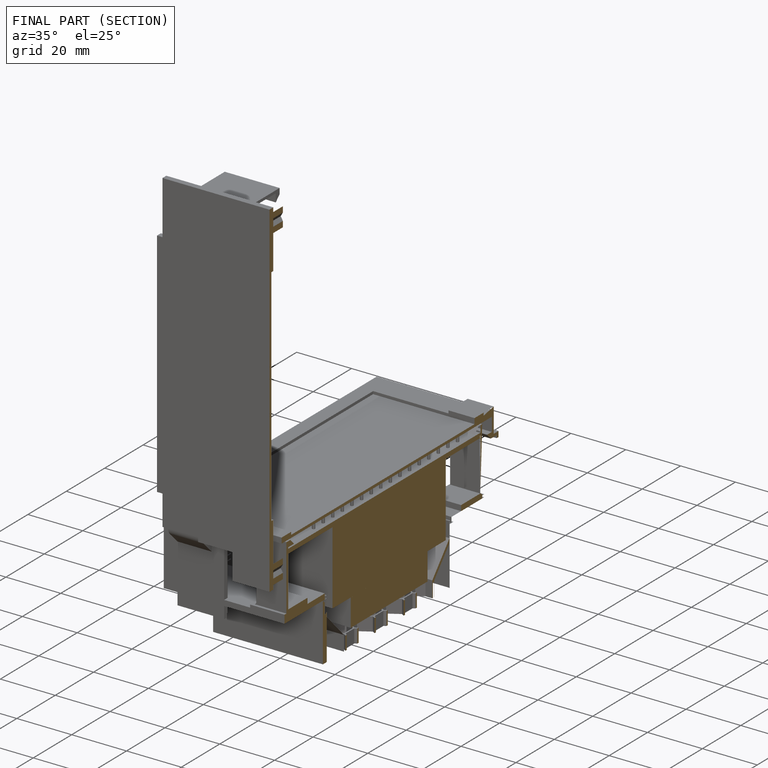
[diagram: finished part — half-section view (interior)]
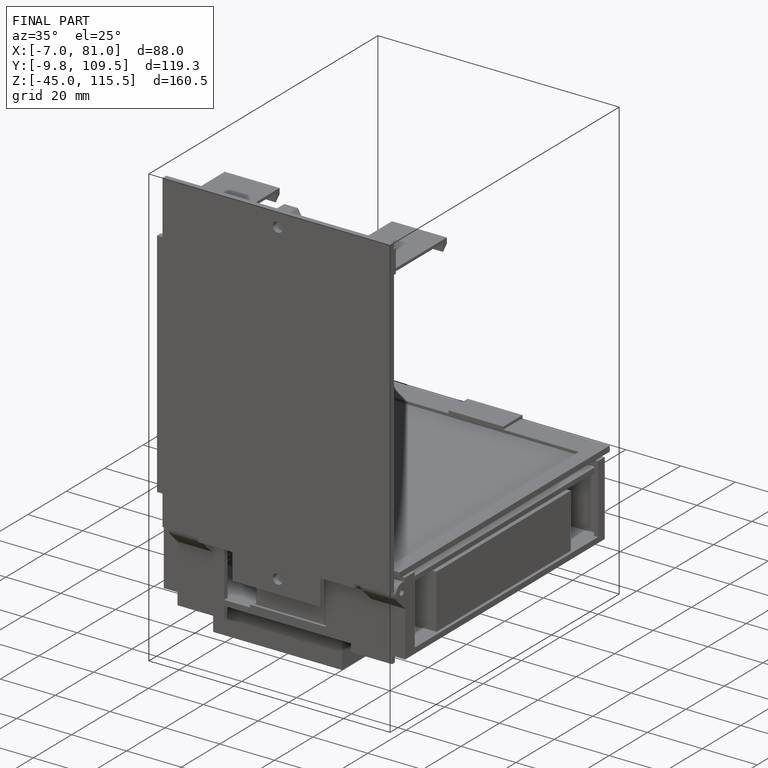
[diagram: finished part — iso view with bounding-box wireframe]
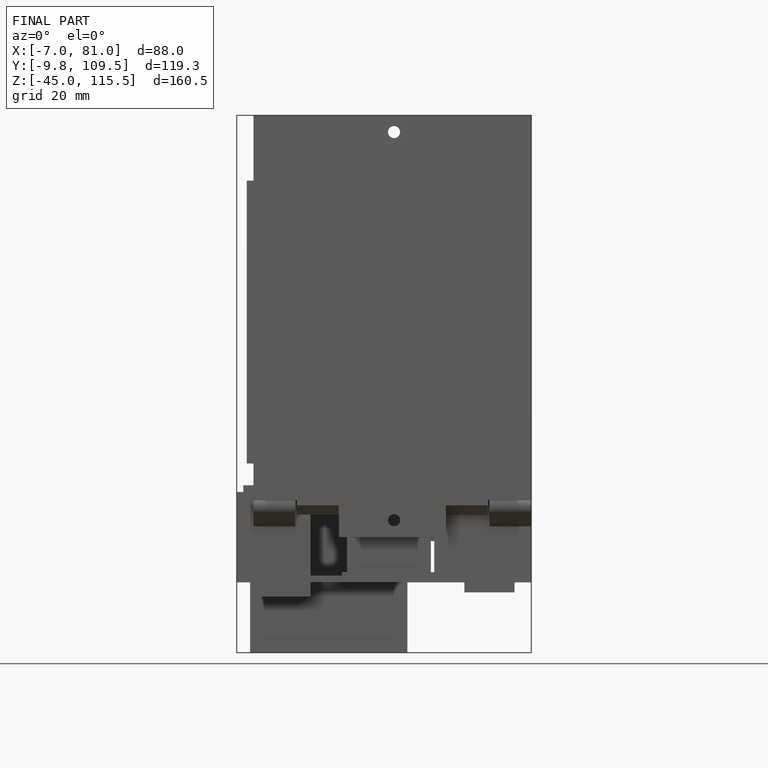
[diagram: finished part — front view with bounding-box wireframe]
